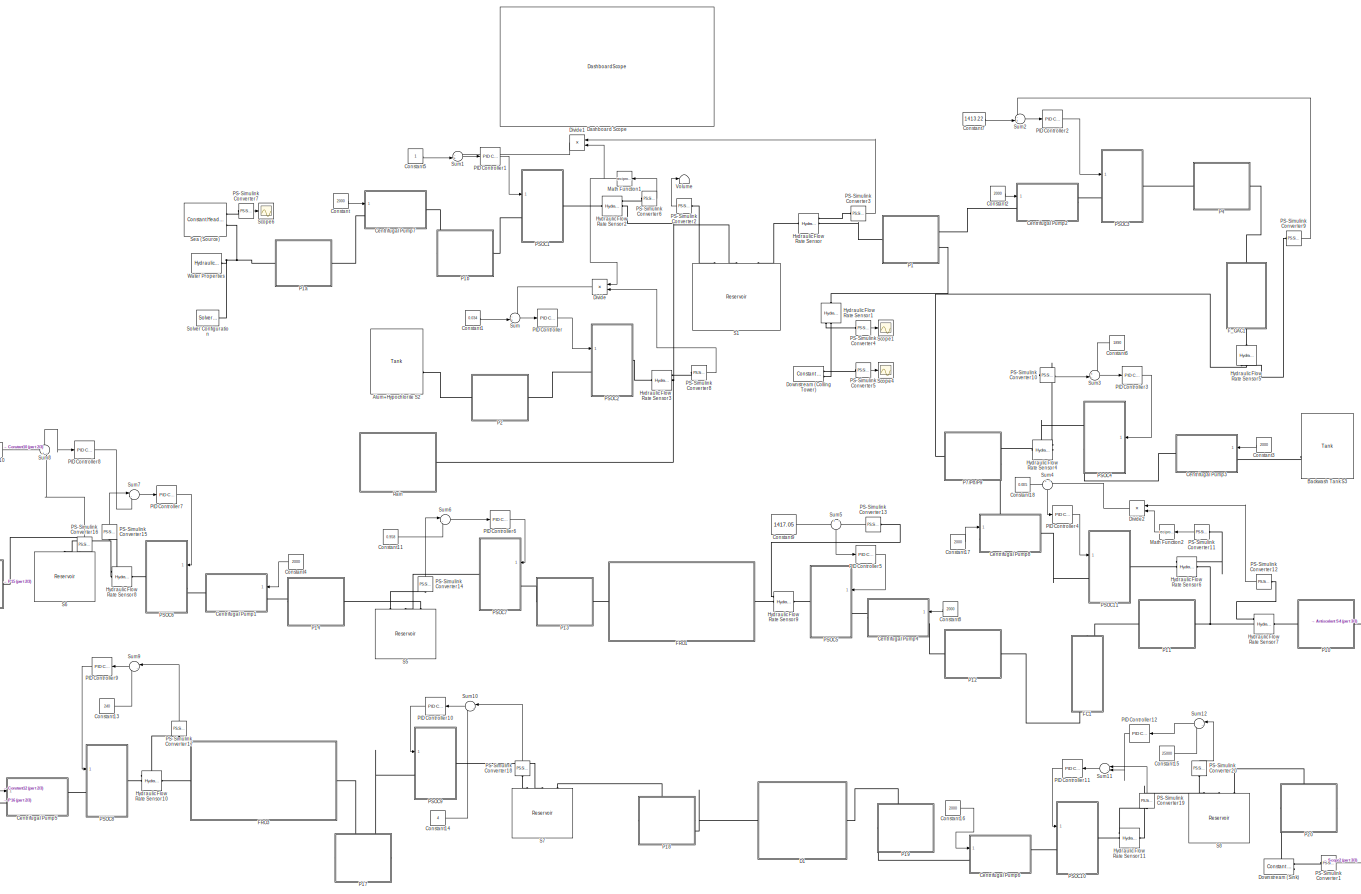
[diagram: root canvas - part 1/3, most of the canvas]
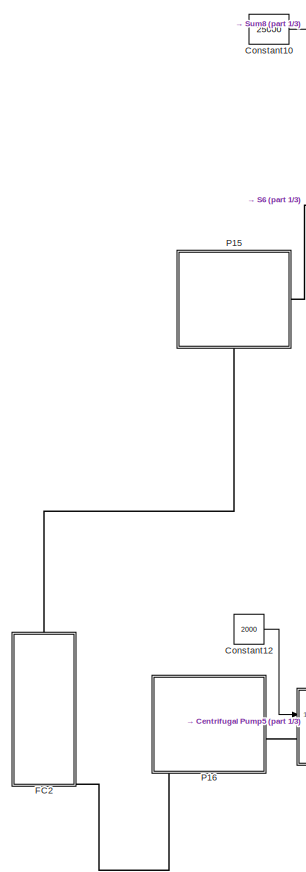
[diagram: root canvas - part 2/3, bottom left region]
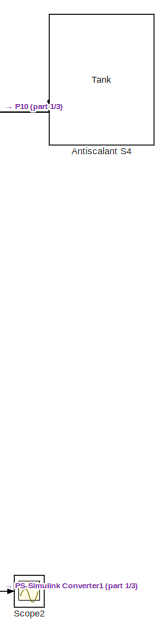
[diagram: root canvas - part 3/3, bottom right region]
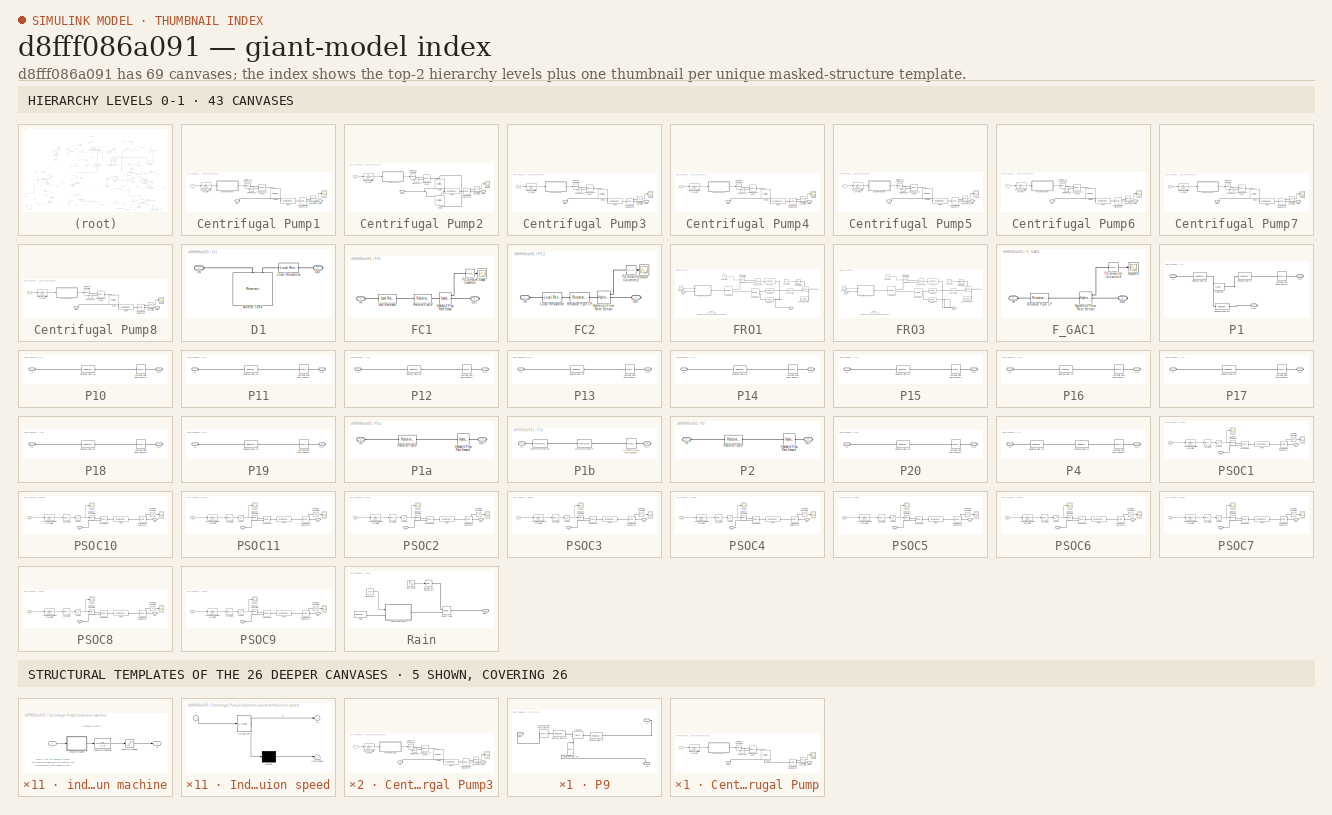
[diagram: thumbnail index - top-2 hierarchy levels (43 canvases) + 5 structural-template representatives of the remaining 26 canvases]
MODEL slx_d8fff086a091
KIND model
CONFIG AbsTol = auto
CONFIG EnableMultiTasking = off
CONFIG FixedStep = auto
CONFIG MaxStep = auto
CONFIG MinStep = auto
CONFIG RelTol = 1e-3
CONFIG SampleTimeConstraint = Unconstrained
CONFIG Solver = VariableStepAuto
CONFIG SolverName = VariableStepAuto
CONFIG StartTime = 0.0
CONFIG StopTime = 100
BLOCK [Reference] Alum+Hypochlorite S2  REF=sh_lib/Low-Pressure Blocks/Tank
  Ports = [0, 0, 0, 0, 0, 0, 2]
  SourceBlock = sh_lib/Low-Pressure Blocks/Tank
  SourceProductBaseCode = SH
  SourceType = Tank
BLOCK [Reference] Antiscalant S4  REF=sh_lib/Low-Pressure Blocks/Tank
  Ports = [0, 0, 0, 0, 0, 0, 2]
  SourceBlock = sh_lib/Low-Pressure Blocks/Tank
  SourceProductBaseCode = SH
  SourceType = Tank
BLOCK [Reference] Backwash Tank S3  REF=sh_lib/Low-Pressure Blocks/Tank
  Ports = [0, 0, 0, 0, 0, 0, 2]
  SourceBlock = sh_lib/Low-Pressure Blocks/Tank
  SourceProductBaseCode = SH
  SourceType = Tank
BLOCK [SubSystem] Centrifugal Pump1
  Ports = [1, 0, 0, 0, 0, 1, 1]
  RequestExecContextInheritance = off
BLOCK [TransferFcn] Centrifugal Pump1/Drive and Amplifier Dynamics
  Denominator = [0.1 1]
BLOCK [Reference] Centrifugal Pump1/Hydraulic Flow Rate Sensor  REF=fl_lib/Hydraulic/Hydraulic Sensors/Hydraulic Flow Rate
Sensor
  Ports = [0, 0, 0, 0, 0, 1, 3]
  SourceBlock = fl_lib/Hydraulic/Hydraulic Sensors/Hydraulic Flow Rate\nSensor
  SourceProductBaseCode = SS
  SourceType = Hydraulic Flow Rate\nSensor
BLOCK [Reference] Centrifugal Pump1/MRRef Pump 1  REF=fl_lib/Mechanical/Rotational Elements/Mechanical
Rotational Reference
  Ports = [0, 0, 0, 0, 0, 1]
  SourceBlock = fl_lib/Mechanical/Rotational Elements/Mechanical\nRotational Reference
  SourceProductBaseCode = SS
  SourceType = Mechanical\nRotational Reference
BLOCK [Reference] Centrifugal Pump1/PS-Simulink Converter2  REF=nesl_utility/PS-Simulink
Converter
  Ports = [0, 1, 0, 0, 0, 1]
  SourceBlock = nesl_utility/PS-Simulink\nConverter
  SourceProductBaseCode = SS
  SourceType = PS-Simulink\nConverter
BLOCK [Reference] Centrifugal Pump1/Pipe P  REF=sh_lib/Low-Pressure Blocks/Resistive Pipe LP
  Ports = [0, 0, 0, 0, 0, 1, 1]
  SourceBlock = sh_lib/Low-Pressure Blocks/Resistive Pipe LP
  SourceProductBaseCode = SH
  SourceType = Resistive Pipe LP
BLOCK [Reference] Centrifugal Pump1/Pump 1  REF=sh_lib/Pumps and Motors/Centrifugal Pump
  NameLocation = right
  Ports = [0, 0, 0, 0, 0, 1, 2]
  SourceBlock = sh_lib/Pumps and Motors/Centrifugal Pump
  SourceProductBaseCode = SH
  SourceType = Centrifugal Pump
BLOCK [Scope] Centrifugal Pump1/Scope
  Floating = off
  NumInputPorts = 1
  Ports = [1]
  ScopeSpecificationString = Simulink.scopes.TimeScopeBlockCfg('CurrentConfiguration', extmgr.ConfigurationSet(extmgr.Configuration('Core','General UI',true),extmgr.Configuration('Core','Source UI',true),extmgr.Configuration('Sources','WiredSimulink',true),extmgr.Configuration('Visuals','Time Domain',true,'SerializedDisplays',{struct('MinYLimReal','-0.00197','MaxYLimReal','0.0177','YLabelReal','','MinYLimMag','0.00000','MaxYL...<+1363ch>  <repeated x7 — deduplicated; at blocks: Scope>
BLOCK [Reference] Centrifugal Pump1/Simulink-PS Converter1  REF=nesl_utility/Simulink-PS
Converter
  Ports = [1, 0, 0, 0, 0, 0, 1]
  SourceBlock = nesl_utility/Simulink-PS\nConverter
  SourceProductBaseCode = SS
  SourceType = Simulink-PS\nConverter
BLOCK [Reference] Centrifugal Pump1/Velocity Source Pump 1  REF=fl_lib/Mechanical/Mechanical Sources/Ideal Angular
Velocity Source
  Ports = [0, 0, 0, 0, 0, 1, 2]
  SourceBlock = fl_lib/Mechanical/Mechanical Sources/Ideal Angular\nVelocity Source
  SourceProductBaseCode = SS
  SourceType = Ideal Angular\nVelocity Source
BLOCK [Inport] Centrifugal Pump1/f
BLOCK [SubSystem] Centrifugal Pump1/induction machine
  Ports = [1, 1]
  RequestExecContextInheritance = off
BLOCK [TransferFcn] Centrifugal Pump1/induction machine/Induction Machine
  Denominator = [1 1]
BLOCK [SubSystem] Centrifugal Pump1/induction machine/Induction speed
  ErrorFcn = Stateflow.Translate.translate
  PermitHierarchicalResolution = ExplicitOnly
  Ports = [1, 1]
  RequestExecContextInheritance = off
  SFBlockType = MATLAB Function
  TreatAsAtomicUnit = on
BLOCK [Demux] Centrifugal Pump1/induction machine/Induction speed/ Demux 
  Outputs = 1
  Ports = [1, 1]
BLOCK [S-Function] Centrifugal Pump1/induction machine/Induction speed/ SFunction 
  EnableBusSupport = on
  FunctionName = sf_sfun
  PortCounts = [1 2]
  Ports = [1, 2]
  SFcnIsStateOwnerBlock = off
  SFunctionDeploymentMode = off
  Tag = Stateflow S-Function 1
BLOCK [Terminator] Centrifugal Pump1/induction machine/Induction speed/ Terminator 
BLOCK [Inport] Centrifugal Pump1/induction machine/Induction speed/f
BLOCK [Outport] Centrifugal Pump1/induction machine/Induction speed/w
BLOCK [Inport] Centrifugal Pump1/induction machine/f
BLOCK [Saturate] Centrifugal Pump1/induction machine/max//min speeds
  LowerLimit = 0
  UpperLimit = 100
BLOCK [Outport] Centrifugal Pump1/induction machine/w
BLOCK [PMIOPort] Centrifugal Pump1/inletT
  Side = Left
BLOCK [PMIOPort] Centrifugal Pump1/outletT
  Port = 2
  Side = Right
BLOCK [SubSystem] Centrifugal Pump2
  Ports = [1, 0, 0, 0, 0, 1, 1]
  RequestExecContextInheritance = off
BLOCK [TransferFcn] Centrifugal Pump2/Drive and Amplifier Dynamics
  Denominator = [0.1 1]
BLOCK [Reference] Centrifugal Pump2/Hydraulic Flow Rate Sensor  REF=fl_lib/Hydraulic/Hydraulic Sensors/Hydraulic Flow Rate
Sensor
  Ports = [0, 0, 0, 0, 0, 1, 3]
  SourceBlock = fl_lib/Hydraulic/Hydraulic Sensors/Hydraulic Flow Rate\nSensor
  SourceProductBaseCode = SS
  SourceType = Hydraulic Flow Rate\nSensor
BLOCK [Reference] Centrifugal Pump2/MRRef Pump 1  REF=fl_lib/Mechanical/Rotational Elements/Mechanical
Rotational Reference
  Ports = [0, 0, 0, 0, 0, 1]
  SourceBlock = fl_lib/Mechanical/Rotational Elements/Mechanical\nRotational Reference
  SourceProductBaseCode = SS
  SourceType = Mechanical\nRotational Reference
BLOCK [Reference] Centrifugal Pump2/PS-Simulink Converter2  REF=nesl_utility/PS-Simulink
Converter
  Ports = [0, 1, 0, 0, 0, 1]
  SourceBlock = nesl_utility/PS-Simulink\nConverter
  SourceProductBaseCode = SS
  SourceType = PS-Simulink\nConverter
BLOCK [Reference] Centrifugal Pump2/Pipe P  REF=sh_lib/Low-Pressure Blocks/Resistive Pipe LP
  Ports = [0, 0, 0, 0, 0, 1, 1]
  SourceBlock = sh_lib/Low-Pressure Blocks/Resistive Pipe LP
  SourceProductBaseCode = SH
  SourceType = Resistive Pipe LP
BLOCK [Reference] Centrifugal Pump2/Pump 1  REF=sh_lib/Pumps and Motors/Centrifugal Pump
  NameLocation = right
  Ports = [0, 0, 0, 0, 0, 1, 2]
  SourceBlock = sh_lib/Pumps and Motors/Centrifugal Pump
  SourceProductBaseCode = SH
  SourceType = Centrifugal Pump
BLOCK [Reference] Centrifugal Pump2/Pump 2  REF=sh_lib/Pumps and Motors/Centrifugal Pump
  NameLocation = left
  Ports = [0, 0, 0, 0, 0, 1, 2]
  SourceBlock = sh_lib/Pumps and Motors/Centrifugal Pump
  SourceProductBaseCode = SH
  SourceType = Centrifugal Pump
BLOCK [Scope] Centrifugal Pump2/Scope
  Floating = off
  NumInputPorts = 1
  Ports = [1]
  ScopeSpecificationString = Simulink.scopes.TimeScopeBlockCfg('CurrentConfiguration', extmgr.ConfigurationSet(extmgr.Configuration('Core','General UI',true),extmgr.Configuration('Core','Source UI',true),extmgr.Configuration('Sources','WiredSimulink',true),extmgr.Configuration('Visuals','Time Domain',true,'SerializedDisplays',{struct('MinYLimReal','-0.0000000007','MaxYLimReal','0.000000006','YLabelReal','','MinYLimMag','0.000...<+1403ch>
BLOCK [Reference] Centrifugal Pump2/Simulink-PS Converter1  REF=nesl_utility/Simulink-PS
Converter
  Ports = [1, 0, 0, 0, 0, 0, 1]
  SourceBlock = nesl_utility/Simulink-PS\nConverter
  SourceProductBaseCode = SS
  SourceType = Simulink-PS\nConverter
BLOCK [Reference] Centrifugal Pump2/Velocity Source Pump 1  REF=fl_lib/Mechanical/Mechanical Sources/Ideal Angular
Velocity Source
  Ports = [0, 0, 0, 0, 0, 1, 2]
  SourceBlock = fl_lib/Mechanical/Mechanical Sources/Ideal Angular\nVelocity Source
  SourceProductBaseCode = SS
  SourceType = Ideal Angular\nVelocity Source
BLOCK [Inport] Centrifugal Pump2/f
BLOCK [SubSystem] Centrifugal Pump2/induction machine
  Ports = [1, 1]
  RequestExecContextInheritance = off
BLOCK [TransferFcn] Centrifugal Pump2/induction machine/Induction Machine
  Denominator = [1 1]
BLOCK [SubSystem] Centrifugal Pump2/induction machine/Induction speed
  ErrorFcn = Stateflow.Translate.translate
  PermitHierarchicalResolution = ExplicitOnly
  Ports = [1, 1]
  RequestExecContextInheritance = off
  SFBlockType = MATLAB Function
  TreatAsAtomicUnit = on
BLOCK [Demux] Centrifugal Pump2/induction machine/Induction speed/ Demux 
  Outputs = 1
  Ports = [1, 1]
BLOCK [S-Function] Centrifugal Pump2/induction machine/Induction speed/ SFunction 
  EnableBusSupport = on
  FunctionName = sf_sfun
  PortCounts = [1 2]
  Ports = [1, 2]
  SFcnIsStateOwnerBlock = off
  SFunctionDeploymentMode = off
  Tag = Stateflow S-Function 5
BLOCK [Terminator] Centrifugal Pump2/induction machine/Induction speed/ Terminator 
BLOCK [Inport] Centrifugal Pump2/induction machine/Induction speed/f
BLOCK [Outport] Centrifugal Pump2/induction machine/Induction speed/w
BLOCK [Inport] Centrifugal Pump2/induction machine/f
BLOCK [Saturate] Centrifugal Pump2/induction machine/max//min speeds
  LowerLimit = 0
  UpperLimit = 10000
BLOCK [Outport] Centrifugal Pump2/induction machine/w
BLOCK [PMIOPort] Centrifugal Pump2/inletT
  Side = Left
BLOCK [PMIOPort] Centrifugal Pump2/outletT
  Port = 2
  Side = Right
BLOCK [SubSystem] Centrifugal Pump3
  Ports = [1, 0, 0, 0, 0, 1, 1]
  RequestExecContextInheritance = off
BLOCK [TransferFcn] Centrifugal Pump3/Drive and Amplifier Dynamics
  Denominator = [0.1 1]
BLOCK [Reference] Centrifugal Pump3/Hydraulic Flow Rate Sensor  REF=fl_lib/Hydraulic/Hydraulic Sensors/Hydraulic Flow Rate
Sensor
  Ports = [0, 0, 0, 0, 0, 1, 3]
  SourceBlock = fl_lib/Hydraulic/Hydraulic Sensors/Hydraulic Flow Rate\nSensor
  SourceProductBaseCode = SS
  SourceType = Hydraulic Flow Rate\nSensor
BLOCK [Reference] Centrifugal Pump3/MRRef Pump 1  REF=fl_lib/Mechanical/Rotational Elements/Mechanical
Rotational Reference
  Ports = [0, 0, 0, 0, 0, 1]
  SourceBlock = fl_lib/Mechanical/Rotational Elements/Mechanical\nRotational Reference
  SourceProductBaseCode = SS
  SourceType = Mechanical\nRotational Reference
BLOCK [Reference] Centrifugal Pump3/PS-Simulink Converter2  REF=nesl_utility/PS-Simulink
Converter
  Ports = [0, 1, 0, 0, 0, 1]
  SourceBlock = nesl_utility/PS-Simulink\nConverter
  SourceProductBaseCode = SS
  SourceType = PS-Simulink\nConverter
BLOCK [Reference] Centrifugal Pump3/Pipe P  REF=sh_lib/Low-Pressure Blocks/Resistive Pipe LP
  Ports = [0, 0, 0, 0, 0, 1, 1]
  SourceBlock = sh_lib/Low-Pressure Blocks/Resistive Pipe LP
  SourceProductBaseCode = SH
  SourceType = Resistive Pipe LP
BLOCK [Reference] Centrifugal Pump3/Pump 1  REF=sh_lib/Pumps and Motors/Centrifugal Pump
  NameLocation = right
  Ports = [0, 0, 0, 0, 0, 1, 2]
  SourceBlock = sh_lib/Pumps and Motors/Centrifugal Pump
  SourceProductBaseCode = SH
  SourceType = Centrifugal Pump
BLOCK [Scope] Centrifugal Pump3/Scope
  Floating = off
  NumInputPorts = 1
  Ports = [1]
BLOCK [Reference] Centrifugal Pump3/Simulink-PS Converter1  REF=nesl_utility/Simulink-PS
Converter
  Ports = [1, 0, 0, 0, 0, 0, 1]
  SourceBlock = nesl_utility/Simulink-PS\nConverter
  SourceProductBaseCode = SS
  SourceType = Simulink-PS\nConverter
BLOCK [Reference] Centrifugal Pump3/Velocity Source Pump 1  REF=fl_lib/Mechanical/Mechanical Sources/Ideal Angular
Velocity Source
  Ports = [0, 0, 0, 0, 0, 1, 2]
  SourceBlock = fl_lib/Mechanical/Mechanical Sources/Ideal Angular\nVelocity Source
  SourceProductBaseCode = SS
  SourceType = Ideal Angular\nVelocity Source
BLOCK [Inport] Centrifugal Pump3/f
BLOCK [SubSystem] Centrifugal Pump3/induction machine
  Ports = [1, 1]
  RequestExecContextInheritance = off
BLOCK [TransferFcn] Centrifugal Pump3/induction machine/Induction Machine
  Denominator = [1 1]
BLOCK [SubSystem] Centrifugal Pump3/induction machine/Induction speed
  ErrorFcn = Stateflow.Translate.translate
  PermitHierarchicalResolution = ExplicitOnly
  Ports = [1, 1]
  RequestExecContextInheritance = off
  SFBlockType = MATLAB Function
  TreatAsAtomicUnit = on
BLOCK [Demux] Centrifugal Pump3/induction machine/Induction speed/ Demux 
  Outputs = 1
  Ports = [1, 1]
BLOCK [S-Function] Centrifugal Pump3/induction machine/Induction speed/ SFunction 
  EnableBusSupport = on
  FunctionName = sf_sfun
  PortCounts = [1 2]
  Ports = [1, 2]
  SFcnIsStateOwnerBlock = off
  SFunctionDeploymentMode = off
  Tag = Stateflow S-Function 6
BLOCK [Terminator] Centrifugal Pump3/induction machine/Induction speed/ Terminator 
BLOCK [Inport] Centrifugal Pump3/induction machine/Induction speed/f
BLOCK [Outport] Centrifugal Pump3/induction machine/Induction speed/w
BLOCK [Inport] Centrifugal Pump3/induction machine/f
BLOCK [Saturate] Centrifugal Pump3/induction machine/max//min speeds
  LowerLimit = 0
  UpperLimit = 10000
BLOCK [Outport] Centrifugal Pump3/induction machine/w
BLOCK [PMIOPort] Centrifugal Pump3/inletT
  Side = Left
BLOCK [PMIOPort] Centrifugal Pump3/outletT
  Port = 2
  Side = Right
BLOCK [SubSystem] Centrifugal Pump4
  Ports = [1, 0, 0, 0, 0, 1, 1]
  RequestExecContextInheritance = off
BLOCK [TransferFcn] Centrifugal Pump4/Drive and Amplifier Dynamics
  Denominator = [0.1 1]
BLOCK [Reference] Centrifugal Pump4/Hydraulic Flow Rate Sensor  REF=fl_lib/Hydraulic/Hydraulic Sensors/Hydraulic Flow Rate
Sensor
  Ports = [0, 0, 0, 0, 0, 1, 3]
  SourceBlock = fl_lib/Hydraulic/Hydraulic Sensors/Hydraulic Flow Rate\nSensor
  SourceProductBaseCode = SS
  SourceType = Hydraulic Flow Rate\nSensor
BLOCK [Reference] Centrifugal Pump4/MRRef Pump 1  REF=fl_lib/Mechanical/Rotational Elements/Mechanical
Rotational Reference
  Ports = [0, 0, 0, 0, 0, 1]
  SourceBlock = fl_lib/Mechanical/Rotational Elements/Mechanical\nRotational Reference
  SourceProductBaseCode = SS
  SourceType = Mechanical\nRotational Reference
BLOCK [Reference] Centrifugal Pump4/PS-Simulink Converter2  REF=nesl_utility/PS-Simulink
Converter
  Ports = [0, 1, 0, 0, 0, 1]
  SourceBlock = nesl_utility/PS-Simulink\nConverter
  SourceProductBaseCode = SS
  SourceType = PS-Simulink\nConverter
BLOCK [Reference] Centrifugal Pump4/Pipe P  REF=sh_lib/Low-Pressure Blocks/Resistive Pipe LP
  Ports = [0, 0, 0, 0, 0, 1, 1]
  SourceBlock = sh_lib/Low-Pressure Blocks/Resistive Pipe LP
  SourceProductBaseCode = SH
  SourceType = Resistive Pipe LP
BLOCK [Reference] Centrifugal Pump4/Pump 1  REF=sh_lib/Pumps and Motors/Centrifugal Pump
  NameLocation = right
  Ports = [0, 0, 0, 0, 0, 1, 2]
  SourceBlock = sh_lib/Pumps and Motors/Centrifugal Pump
  SourceProductBaseCode = SH
  SourceType = Centrifugal Pump
BLOCK [Scope] Centrifugal Pump4/Scope
  Floating = off
  NumInputPorts = 1
  Ports = [1]
BLOCK [Reference] Centrifugal Pump4/Simulink-PS Converter1  REF=nesl_utility/Simulink-PS
Converter
  Ports = [1, 0, 0, 0, 0, 0, 1]
  SourceBlock = nesl_utility/Simulink-PS\nConverter
  SourceProductBaseCode = SS
  SourceType = Simulink-PS\nConverter
BLOCK [Reference] Centrifugal Pump4/Velocity Source Pump 1  REF=fl_lib/Mechanical/Mechanical Sources/Ideal Angular
Velocity Source
  Ports = [0, 0, 0, 0, 0, 1, 2]
  SourceBlock = fl_lib/Mechanical/Mechanical Sources/Ideal Angular\nVelocity Source
  SourceProductBaseCode = SS
  SourceType = Ideal Angular\nVelocity Source
BLOCK [Inport] Centrifugal Pump4/f
BLOCK [SubSystem] Centrifugal Pump4/induction machine
  Ports = [1, 1]
  RequestExecContextInheritance = off
BLOCK [TransferFcn] Centrifugal Pump4/induction machine/Induction Machine
  Denominator = [1 1]
BLOCK [SubSystem] Centrifugal Pump4/induction machine/Induction speed
  ErrorFcn = Stateflow.Translate.translate
  PermitHierarchicalResolution = ExplicitOnly
  Ports = [1, 1]
  RequestExecContextInheritance = off
  SFBlockType = MATLAB Function
  TreatAsAtomicUnit = on
BLOCK [Demux] Centrifugal Pump4/induction machine/Induction speed/ Demux 
  Outputs = 1
  Ports = [1, 1]
BLOCK [S-Function] Centrifugal Pump4/induction machine/Induction speed/ SFunction 
  EnableBusSupport = on
  FunctionName = sf_sfun
  PortCounts = [1 2]
  Ports = [1, 2]
  SFcnIsStateOwnerBlock = off
  SFunctionDeploymentMode = off
  Tag = Stateflow S-Function 7
BLOCK [Terminator] Centrifugal Pump4/induction machine/Induction speed/ Terminator 
BLOCK [Inport] Centrifugal Pump4/induction machine/Induction speed/f
BLOCK [Outport] Centrifugal Pump4/induction machine/Induction speed/w
BLOCK [Inport] Centrifugal Pump4/induction machine/f
BLOCK [Saturate] Centrifugal Pump4/induction machine/max//min speeds
  LowerLimit = 0
  UpperLimit = 10000
BLOCK [Outport] Centrifugal Pump4/induction machine/w
BLOCK [PMIOPort] Centrifugal Pump4/inletT
  Side = Left
BLOCK [PMIOPort] Centrifugal Pump4/outletT
  Port = 2
  Side = Right
BLOCK [SubSystem] Centrifugal Pump5
  Ports = [1, 0, 0, 0, 0, 1, 1]
  RequestExecContextInheritance = off
BLOCK [TransferFcn] Centrifugal Pump5/Drive and Amplifier Dynamics
  Denominator = [0.1 1]
BLOCK [Reference] Centrifugal Pump5/Hydraulic Flow Rate Sensor  REF=fl_lib/Hydraulic/Hydraulic Sensors/Hydraulic Flow Rate
Sensor
  Ports = [0, 0, 0, 0, 0, 1, 3]
  SourceBlock = fl_lib/Hydraulic/Hydraulic Sensors/Hydraulic Flow Rate\nSensor
  SourceProductBaseCode = SS
  SourceType = Hydraulic Flow Rate\nSensor
BLOCK [Reference] Centrifugal Pump5/MRRef Pump 1  REF=fl_lib/Mechanical/Rotational Elements/Mechanical
Rotational Reference
  Ports = [0, 0, 0, 0, 0, 1]
  SourceBlock = fl_lib/Mechanical/Rotational Elements/Mechanical\nRotational Reference
  SourceProductBaseCode = SS
  SourceType = Mechanical\nRotational Reference
BLOCK [Reference] Centrifugal Pump5/PS-Simulink Converter2  REF=nesl_utility/PS-Simulink
Converter
  Ports = [0, 1, 0, 0, 0, 1]
  SourceBlock = nesl_utility/PS-Simulink\nConverter
  SourceProductBaseCode = SS
  SourceType = PS-Simulink\nConverter
BLOCK [Reference] Centrifugal Pump5/Pipe P  REF=sh_lib/Low-Pressure Blocks/Resistive Pipe LP
  Ports = [0, 0, 0, 0, 0, 1, 1]
  SourceBlock = sh_lib/Low-Pressure Blocks/Resistive Pipe LP
  SourceProductBaseCode = SH
  SourceType = Resistive Pipe LP
BLOCK [Reference] Centrifugal Pump5/Pump 1  REF=sh_lib/Pumps and Motors/Centrifugal Pump
  NameLocation = right
  Ports = [0, 0, 0, 0, 0, 1, 2]
  SourceBlock = sh_lib/Pumps and Motors/Centrifugal Pump
  SourceProductBaseCode = SH
  SourceType = Centrifugal Pump
BLOCK [Scope] Centrifugal Pump5/Scope
  Floating = off
  NumInputPorts = 1
  Ports = [1]
BLOCK [Reference] Centrifugal Pump5/Simulink-PS Converter1  REF=nesl_utility/Simulink-PS
Converter
  Ports = [1, 0, 0, 0, 0, 0, 1]
  SourceBlock = nesl_utility/Simulink-PS\nConverter
  SourceProductBaseCode = SS
  SourceType = Simulink-PS\nConverter
BLOCK [Reference] Centrifugal Pump5/Velocity Source Pump 1  REF=fl_lib/Mechanical/Mechanical Sources/Ideal Angular
Velocity Source
  Ports = [0, 0, 0, 0, 0, 1, 2]
  SourceBlock = fl_lib/Mechanical/Mechanical Sources/Ideal Angular\nVelocity Source
  SourceProductBaseCode = SS
  SourceType = Ideal Angular\nVelocity Source
BLOCK [Inport] Centrifugal Pump5/f
BLOCK [SubSystem] Centrifugal Pump5/induction machine
  Ports = [1, 1]
  RequestExecContextInheritance = off
BLOCK [TransferFcn] Centrifugal Pump5/induction machine/Induction Machine
  Denominator = [1 1]
BLOCK [SubSystem] Centrifugal Pump5/induction machine/Induction speed
  ErrorFcn = Stateflow.Translate.translate
  PermitHierarchicalResolution = ExplicitOnly
  Ports = [1, 1]
  RequestExecContextInheritance = off
  SFBlockType = MATLAB Function
  TreatAsAtomicUnit = on
BLOCK [Demux] Centrifugal Pump5/induction machine/Induction speed/ Demux 
  Outputs = 1
  Ports = [1, 1]
BLOCK [S-Function] Centrifugal Pump5/induction machine/Induction speed/ SFunction 
  EnableBusSupport = on
  FunctionName = sf_sfun
  PortCounts = [1 2]
  Ports = [1, 2]
  SFcnIsStateOwnerBlock = off
  SFunctionDeploymentMode = off
  Tag = Stateflow S-Function 8
BLOCK [Terminator] Centrifugal Pump5/induction machine/Induction speed/ Terminator 
BLOCK [Inport] Centrifugal Pump5/induction machine/Induction speed/f
BLOCK [Outport] Centrifugal Pump5/induction machine/Induction speed/w
BLOCK [Inport] Centrifugal Pump5/induction machine/f
BLOCK [Saturate] Centrifugal Pump5/induction machine/max//min speeds
  LowerLimit = 0
  UpperLimit = 100
BLOCK [Outport] Centrifugal Pump5/induction machine/w
BLOCK [PMIOPort] Centrifugal Pump5/inletT
  Side = Left
BLOCK [PMIOPort] Centrifugal Pump5/outletT
  Port = 2
  Side = Right
BLOCK [SubSystem] Centrifugal Pump6
  Ports = [1, 0, 0, 0, 0, 1, 1]
  RequestExecContextInheritance = off
BLOCK [TransferFcn] Centrifugal Pump6/Drive and Amplifier Dynamics
  Denominator = [0.1 1]
BLOCK [Reference] Centrifugal Pump6/Hydraulic Flow Rate Sensor  REF=fl_lib/Hydraulic/Hydraulic Sensors/Hydraulic Flow Rate
Sensor
  Ports = [0, 0, 0, 0, 0, 1, 3]
  SourceBlock = fl_lib/Hydraulic/Hydraulic Sensors/Hydraulic Flow Rate\nSensor
  SourceProductBaseCode = SS
  SourceType = Hydraulic Flow Rate\nSensor
BLOCK [Reference] Centrifugal Pump6/MRRef Pump 1  REF=fl_lib/Mechanical/Rotational Elements/Mechanical
Rotational Reference
  Ports = [0, 0, 0, 0, 0, 1]
  SourceBlock = fl_lib/Mechanical/Rotational Elements/Mechanical\nRotational Reference
  SourceProductBaseCode = SS
  SourceType = Mechanical\nRotational Reference
BLOCK [Reference] Centrifugal Pump6/PS-Simulink Converter2  REF=nesl_utility/PS-Simulink
Converter
  Ports = [0, 1, 0, 0, 0, 1]
  SourceBlock = nesl_utility/PS-Simulink\nConverter
  SourceProductBaseCode = SS
  SourceType = PS-Simulink\nConverter
BLOCK [Reference] Centrifugal Pump6/Pipe P  REF=sh_lib/Low-Pressure Blocks/Resistive Pipe LP
  Ports = [0, 0, 0, 0, 0, 1, 1]
  SourceBlock = sh_lib/Low-Pressure Blocks/Resistive Pipe LP
  SourceProductBaseCode = SH
  SourceType = Resistive Pipe LP
BLOCK [Reference] Centrifugal Pump6/Pump 1  REF=sh_lib/Pumps and Motors/Centrifugal Pump
  NameLocation = right
  Ports = [0, 0, 0, 0, 0, 1, 2]
  SourceBlock = sh_lib/Pumps and Motors/Centrifugal Pump
  SourceProductBaseCode = SH
  SourceType = Centrifugal Pump
BLOCK [Scope] Centrifugal Pump6/Scope
  Floating = off
  NumInputPorts = 1
  Ports = [1]
BLOCK [Reference] Centrifugal Pump6/Simulink-PS Converter1  REF=nesl_utility/Simulink-PS
Converter
  Ports = [1, 0, 0, 0, 0, 0, 1]
  SourceBlock = nesl_utility/Simulink-PS\nConverter
  SourceProductBaseCode = SS
  SourceType = Simulink-PS\nConverter
BLOCK [Reference] Centrifugal Pump6/Velocity Source Pump 1  REF=fl_lib/Mechanical/Mechanical Sources/Ideal Angular
Velocity Source
  Ports = [0, 0, 0, 0, 0, 1, 2]
  SourceBlock = fl_lib/Mechanical/Mechanical Sources/Ideal Angular\nVelocity Source
  SourceProductBaseCode = SS
  SourceType = Ideal Angular\nVelocity Source
BLOCK [Inport] Centrifugal Pump6/f
BLOCK [SubSystem] Centrifugal Pump6/induction machine
  Ports = [1, 1]
  RequestExecContextInheritance = off
BLOCK [TransferFcn] Centrifugal Pump6/induction machine/Induction Machine
  Denominator = [1 1]
BLOCK [SubSystem] Centrifugal Pump6/induction machine/Induction speed
  ErrorFcn = Stateflow.Translate.translate
  PermitHierarchicalResolution = ExplicitOnly
  Ports = [1, 1]
  RequestExecContextInheritance = off
  SFBlockType = MATLAB Function
  TreatAsAtomicUnit = on
BLOCK [Demux] Centrifugal Pump6/induction machine/Induction speed/ Demux 
  Outputs = 1
  Ports = [1, 1]
BLOCK [S-Function] Centrifugal Pump6/induction machine/Induction speed/ SFunction 
  EnableBusSupport = on
  FunctionName = sf_sfun
  PortCounts = [1 2]
  Ports = [1, 2]
  SFcnIsStateOwnerBlock = off
  SFunctionDeploymentMode = off
  Tag = Stateflow S-Function 9
BLOCK [Terminator] Centrifugal Pump6/induction machine/Induction speed/ Terminator 
BLOCK [Inport] Centrifugal Pump6/induction machine/Induction speed/f
BLOCK [Outport] Centrifugal Pump6/induction machine/Induction speed/w
BLOCK [Inport] Centrifugal Pump6/induction machine/f
BLOCK [Saturate] Centrifugal Pump6/induction machine/max//min speeds
  LowerLimit = 0
  UpperLimit = 100
BLOCK [Outport] Centrifugal Pump6/induction machine/w
BLOCK [PMIOPort] Centrifugal Pump6/inletT
  Side = Left
BLOCK [PMIOPort] Centrifugal Pump6/outletT
  Port = 2
  Side = Right
BLOCK [SubSystem] Centrifugal Pump7
  Ports = [1, 0, 0, 0, 0, 1, 1]
  RequestExecContextInheritance = off
BLOCK [TransferFcn] Centrifugal Pump7/Drive and Amplifier Dynamics
  Denominator = [0.1 1]
BLOCK [Reference] Centrifugal Pump7/Hydraulic Flow Rate Sensor  REF=fl_lib/Hydraulic/Hydraulic Sensors/Hydraulic Flow Rate
Sensor
  Ports = [0, 0, 0, 0, 0, 1, 3]
  SourceBlock = fl_lib/Hydraulic/Hydraulic Sensors/Hydraulic Flow Rate\nSensor
  SourceProductBaseCode = SS
  SourceType = Hydraulic Flow Rate\nSensor
BLOCK [Reference] Centrifugal Pump7/MRRef Pump 1  REF=fl_lib/Mechanical/Rotational Elements/Mechanical
Rotational Reference
  Ports = [0, 0, 0, 0, 0, 1]
  SourceBlock = fl_lib/Mechanical/Rotational Elements/Mechanical\nRotational Reference
  SourceProductBaseCode = SS
  SourceType = Mechanical\nRotational Reference
BLOCK [Reference] Centrifugal Pump7/PS-Simulink Converter2  REF=nesl_utility/PS-Simulink
Converter
  Ports = [0, 1, 0, 0, 0, 1]
  SourceBlock = nesl_utility/PS-Simulink\nConverter
  SourceProductBaseCode = SS
  SourceType = PS-Simulink\nConverter
BLOCK [Reference] Centrifugal Pump7/Pipe P  REF=sh_lib/Low-Pressure Blocks/Resistive Pipe LP
  Ports = [0, 0, 0, 0, 0, 1, 1]
  SourceBlock = sh_lib/Low-Pressure Blocks/Resistive Pipe LP
  SourceProductBaseCode = SH
  SourceType = Resistive Pipe LP
BLOCK [Reference] Centrifugal Pump7/Pump 1  REF=sh_lib/Pumps and Motors/Centrifugal Pump
  NameLocation = right
  Ports = [0, 0, 0, 0, 0, 1, 2]
  SourceBlock = sh_lib/Pumps and Motors/Centrifugal Pump
  SourceProductBaseCode = SH
  SourceType = Centrifugal Pump
BLOCK [Scope] Centrifugal Pump7/Scope
  Floating = off
  NumInputPorts = 1
  Ports = [1]
  ScopeSpecificationString = Simulink.scopes.TimeScopeBlockCfg('CurrentConfiguration', extmgr.ConfigurationSet(extmgr.Configuration('Core','General UI',true),extmgr.Configuration('Core','Source UI',true),extmgr.Configuration('Sources','WiredSimulink',true),extmgr.Configuration('Visuals','Time Domain',true,'SerializedDisplays',{struct('MinYLimReal','-0.02102','MaxYLimReal','0.1892','YLabelReal','','MinYLimMag','0.00000','MaxYL...<+1363ch>
BLOCK [Reference] Centrifugal Pump7/Simulink-PS Converter1  REF=nesl_utility/Simulink-PS
Converter
  Ports = [1, 0, 0, 0, 0, 0, 1]
  SourceBlock = nesl_utility/Simulink-PS\nConverter
  SourceProductBaseCode = SS
  SourceType = Simulink-PS\nConverter
BLOCK [Reference] Centrifugal Pump7/Velocity Source Pump 1  REF=fl_lib/Mechanical/Mechanical Sources/Ideal Angular
Velocity Source
  Ports = [0, 0, 0, 0, 0, 1, 2]
  SourceBlock = fl_lib/Mechanical/Mechanical Sources/Ideal Angular\nVelocity Source
  SourceProductBaseCode = SS
  SourceType = Ideal Angular\nVelocity Source
BLOCK [Inport] Centrifugal Pump7/f
BLOCK [SubSystem] Centrifugal Pump7/induction machine
  Ports = [1, 1]
  RequestExecContextInheritance = off
BLOCK [TransferFcn] Centrifugal Pump7/induction machine/Induction Machine
  Denominator = [1 1]
BLOCK [SubSystem] Centrifugal Pump7/induction machine/Induction speed
  ErrorFcn = Stateflow.Translate.translate
  PermitHierarchicalResolution = ExplicitOnly
  Ports = [1, 1]
  RequestExecContextInheritance = off
  SFBlockType = MATLAB Function
  TreatAsAtomicUnit = on
BLOCK [Demux] Centrifugal Pump7/induction machine/Induction speed/ Demux 
  Outputs = 1
  Ports = [1, 1]
BLOCK [S-Function] Centrifugal Pump7/induction machine/Induction speed/ SFunction 
  EnableBusSupport = on
  FunctionName = sf_sfun
  PortCounts = [1 2]
  Ports = [1, 2]
  SFcnIsStateOwnerBlock = off
  SFunctionDeploymentMode = off
  Tag = Stateflow S-Function 10
BLOCK [Terminator] Centrifugal Pump7/induction machine/Induction speed/ Terminator 
BLOCK [Inport] Centrifugal Pump7/induction machine/Induction speed/f
BLOCK [Outport] Centrifugal Pump7/induction machine/Induction speed/w
BLOCK [Inport] Centrifugal Pump7/induction machine/f
BLOCK [Saturate] Centrifugal Pump7/induction machine/max//min speeds
  LowerLimit = 0
  UpperLimit = 10000
BLOCK [Outport] Centrifugal Pump7/induction machine/w
BLOCK [PMIOPort] Centrifugal Pump7/inletT
  Side = Left
BLOCK [PMIOPort] Centrifugal Pump7/outletT
  Port = 2
  Side = Right
BLOCK [SubSystem] Centrifugal Pump8
  PortSchema = {"entries":[{"content":{"sides":[{"content":{"connectorIds":["LConn1","In1"]},"type":"ConnectorPlacement.EquallySpacedRectSide","uuid":"eab26e76-19e5-4131-be01-7f1e86a3578c"},{"content":{"connectorIds":["RConn1"],"side":"RIGHT"},"type":"ConnectorPlacement.EquallySpacedRectSide","uuid":"eb3e9ef5-afdc-4988-b145-41f6f9d64aea"},{"content":{"connectorIds":[],"side":"TOP"},"type":"ConnectorPlacement.Equ...<+253ch>
  Ports = [1, 0, 0, 0, 0, 1, 1]
  RequestExecContextInheritance = off
BLOCK [TransferFcn] Centrifugal Pump8/Drive and Amplifier Dynamics
  Denominator = [0.1 1]
BLOCK [Reference] Centrifugal Pump8/Hydraulic Flow Rate Sensor  REF=fl_lib/Hydraulic/Hydraulic Sensors/Hydraulic Flow Rate
Sensor
  Ports = [0, 0, 0, 0, 0, 1, 3]
  SourceBlock = fl_lib/Hydraulic/Hydraulic Sensors/Hydraulic Flow Rate\nSensor
  SourceProductBaseCode = SS
  SourceType = Hydraulic Flow Rate\nSensor
BLOCK [Reference] Centrifugal Pump8/MRRef Pump 1  REF=fl_lib/Mechanical/Rotational Elements/Mechanical
Rotational Reference
  Ports = [0, 0, 0, 0, 0, 1]
  SourceBlock = fl_lib/Mechanical/Rotational Elements/Mechanical\nRotational Reference
  SourceProductBaseCode = SS
  SourceType = Mechanical\nRotational Reference
BLOCK [Reference] Centrifugal Pump8/PS-Simulink Converter2  REF=nesl_utility/PS-Simulink
Converter
  Ports = [0, 1, 0, 0, 0, 1]
  SourceBlock = nesl_utility/PS-Simulink\nConverter
  SourceProductBaseCode = SS
  SourceType = PS-Simulink\nConverter
BLOCK [Reference] Centrifugal Pump8/Pipe P  REF=sh_lib/Low-Pressure Blocks/Resistive Pipe LP
  Ports = [0, 0, 0, 0, 0, 1, 1]
  SourceBlock = sh_lib/Low-Pressure Blocks/Resistive Pipe LP
  SourceProductBaseCode = SH
  SourceType = Resistive Pipe LP
BLOCK [Reference] Centrifugal Pump8/Pump 1  REF=sh_lib/Pumps and Motors/Centrifugal Pump
  NameLocation = right
  Ports = [0, 0, 0, 0, 0, 1, 2]
  SourceBlock = sh_lib/Pumps and Motors/Centrifugal Pump
  SourceProductBaseCode = SH
  SourceType = Centrifugal Pump
BLOCK [Scope] Centrifugal Pump8/Scope
  Floating = off
  NumInputPorts = 1
  Ports = [1]
BLOCK [Reference] Centrifugal Pump8/Simulink-PS Converter1  REF=nesl_utility/Simulink-PS
Converter
  Ports = [1, 0, 0, 0, 0, 0, 1]
  SourceBlock = nesl_utility/Simulink-PS\nConverter
  SourceProductBaseCode = SS
  SourceType = Simulink-PS\nConverter
BLOCK [Reference] Centrifugal Pump8/Velocity Source Pump 1  REF=fl_lib/Mechanical/Mechanical Sources/Ideal Angular
Velocity Source
  Ports = [0, 0, 0, 0, 0, 1, 2]
  SourceBlock = fl_lib/Mechanical/Mechanical Sources/Ideal Angular\nVelocity Source
  SourceProductBaseCode = SS
  SourceType = Ideal Angular\nVelocity Source
BLOCK [Inport] Centrifugal Pump8/f
BLOCK [SubSystem] Centrifugal Pump8/induction machine
  Ports = [1, 1]
  RequestExecContextInheritance = off
BLOCK [TransferFcn] Centrifugal Pump8/induction machine/Induction Machine
  Denominator = [1 1]
BLOCK [SubSystem] Centrifugal Pump8/induction machine/Induction speed
  ErrorFcn = Stateflow.Translate.translate
  PermitHierarchicalResolution = ExplicitOnly
  Ports = [1, 1]
  RequestExecContextInheritance = off
  SFBlockType = MATLAB Function
  TreatAsAtomicUnit = on
BLOCK [Demux] Centrifugal Pump8/induction machine/Induction speed/ Demux 
  Outputs = 1
  Ports = [1, 1]
BLOCK [S-Function] Centrifugal Pump8/induction machine/Induction speed/ SFunction 
  EnableBusSupport = on
  FunctionName = sf_sfun
  PortCounts = [1 2]
  Ports = [1, 2]
  SFcnIsStateOwnerBlock = off
  SFunctionDeploymentMode = off
  Tag = Stateflow S-Function 11
BLOCK [Terminator] Centrifugal Pump8/induction machine/Induction speed/ Terminator 
BLOCK [Inport] Centrifugal Pump8/induction machine/Induction speed/f
BLOCK [Outport] Centrifugal Pump8/induction machine/Induction speed/w
BLOCK [Inport] Centrifugal Pump8/induction machine/f
BLOCK [Saturate] Centrifugal Pump8/induction machine/max//min speeds
  LowerLimit = 0
  UpperLimit = 10000
BLOCK [Outport] Centrifugal Pump8/induction machine/w
BLOCK [PMIOPort] Centrifugal Pump8/inletT
  Side = Left
BLOCK [PMIOPort] Centrifugal Pump8/outletT
  Port = 2
  Side = Right
BLOCK [Constant] Constant
  Value = 2000
BLOCK [Constant] Constant1
  Value = 0.034
BLOCK [Constant] Constant10
  NameLocation = top
  Value = 25000
BLOCK [Constant] Constant11
  NameLocation = top
  Value = 0.958
BLOCK [Constant] Constant12
  Value = 2000
BLOCK [Constant] Constant13
  Value = 240
BLOCK [Constant] Constant14
  Value = 4
BLOCK [Constant] Constant15
  Value = 25000
BLOCK [Constant] Constant16
  Value = 2000
BLOCK [Constant] Constant17
  NameLocation = top
  Value = 2000
BLOCK [Constant] Constant18
  NameLocation = top
  Value = 0.005
BLOCK [Constant] Constant2
  Value = 2000
BLOCK [Constant] Constant3
  Value = 2000
BLOCK [Constant] Constant4
  Value = 2000
BLOCK [Constant] Constant5
BLOCK [Constant] Constant6
  Value = 1890
BLOCK [Constant] Constant7
  Value = 1413.22
BLOCK [Constant] Constant8
  Value = 2000
BLOCK [Constant] Constant9
  NameLocation = top
  Value = 1417.05
BLOCK [SubSystem] D1
  NameLocation = top
  Ports = [0, 0, 0, 0, 0, 1, 1]
  RequestExecContextInheritance = off
BLOCK [PMIOPort] D1/IN
  Side = Left
BLOCK [Reference] D1/Local Resistance  REF=sh_lib/Local Hydraulic
Resistances/Local Resistance
  Ports = [0, 0, 0, 0, 0, 1, 1]
  SourceBlock = sh_lib/Local Hydraulic\nResistances/Local Resistance
  SourceProductBaseCode = SH
  SourceType = Local Resistance
BLOCK [Reference] D1/Mineral Tank  REF=sh_lib/Hydraulic Utilities/Reservoir
  Ports = [0, 0, 0, 0, 0, 3]
  SourceBlock = sh_lib/Hydraulic Utilities/Reservoir
  SourceProductBaseCode = SH
  SourceType = Reservoir
BLOCK [PMIOPort] D1/OUT
  Port = 2
  Side = Right
BLOCK [DashboardScope] Dashboard Scope
BLOCK [Product] Divide
  Inputs = **
  Ports = [2, 1]
BLOCK [Product] Divide1
  Inputs = **
  Ports = [2, 1]
BLOCK [Product] Divide2
  Inputs = **
  NameLocation = top
  Ports = [2, 1]
BLOCK [Reference] Downstream (Colling Tower)  REF=sh_lib/Low-Pressure Blocks/Constant Head Tank
  Ports = [0, 0, 0, 0, 0, 0, 2]
  SourceBlock = sh_lib/Low-Pressure Blocks/Constant Head Tank
  SourceProductBaseCode = SH
  SourceType = Constant Head Tank
BLOCK [Reference] Downstream (Sink)  REF=sh_lib/Low-Pressure Blocks/Constant Head Tank
  Ports = [0, 0, 0, 0, 0, 0, 2]
  SourceBlock = sh_lib/Low-Pressure Blocks/Constant Head Tank
  SourceProductBaseCode = SH
  SourceType = Constant Head Tank
BLOCK [SubSystem] FC1
  NameLocation = left
  Ports = [0, 0, 0, 0, 0, 1, 1]
  RequestExecContextInheritance = off
BLOCK [Reference] FC1/Hydraulic Flow Rate Sensor  REF=fl_lib/Hydraulic/Hydraulic Sensors/Hydraulic Flow Rate
Sensor
  Ports = [0, 0, 0, 0, 0, 1, 3]
  SourceBlock = fl_lib/Hydraulic/Hydraulic Sensors/Hydraulic Flow Rate\nSensor
  SourceProductBaseCode = SS
  SourceType = Hydraulic Flow Rate\nSensor
BLOCK [PMIOPort] FC1/IN
  Side = Left
BLOCK [Reference] FC1/Local Resistance  REF=sh_lib/Local Hydraulic
Resistances/Local Resistance
  Ports = [0, 0, 0, 0, 0, 1, 1]
  SourceBlock = sh_lib/Local Hydraulic\nResistances/Local Resistance
  SourceProductBaseCode = SH
  SourceType = Local Resistance
BLOCK [PMIOPort] FC1/OUT
  Port = 2
  Side = Right
BLOCK [Reference] FC1/PS-Simulink Converter2  REF=nesl_utility/PS-Simulink
Converter
  Ports = [0, 1, 0, 0, 0, 1]
  SourceBlock = nesl_utility/PS-Simulink\nConverter
  SourceProductBaseCode = SS
  SourceType = PS-Simulink\nConverter
BLOCK [Reference] FC1/Resistive Pipe LP  REF=sh_lib/Low-Pressure Blocks/Resistive Pipe LP
  Ports = [0, 0, 0, 0, 0, 1, 1]
  SourceBlock = sh_lib/Low-Pressure Blocks/Resistive Pipe LP
  SourceProductBaseCode = SH
  SourceType = Resistive Pipe LP
BLOCK [Scope] FC1/Scope
  Floating = off
  NumInputPorts = 1
  Ports = [1]
  ScopeSpecificationString = Simulink.scopes.TimeScopeBlockCfg('CurrentConfiguration', extmgr.ConfigurationSet(extmgr.Configuration('Core','General UI',true),extmgr.Configuration('Core','Source UI',true),extmgr.Configuration('Sources','WiredSimulink',true,'DataLoggingVariableName','ScopeData2'),extmgr.Configuration('Visuals','Time Domain',true,'SerializedDisplays',{struct('MinYLimReal','-0.00001','MaxYLimReal','0.00012','YLab...<+1433ch>
BLOCK [SubSystem] FC2
  NameLocation = left
  Ports = [0, 0, 0, 0, 0, 1, 1]
  RequestExecContextInheritance = off
BLOCK [Reference] FC2/Hydraulic Flow Rate Sensor  REF=fl_lib/Hydraulic/Hydraulic Sensors/Hydraulic Flow Rate
Sensor
  Ports = [0, 0, 0, 0, 0, 1, 3]
  SourceBlock = fl_lib/Hydraulic/Hydraulic Sensors/Hydraulic Flow Rate\nSensor
  SourceProductBaseCode = SS
  SourceType = Hydraulic Flow Rate\nSensor
BLOCK [PMIOPort] FC2/IN
  Side = Left
BLOCK [Reference] FC2/Local Resistance  REF=sh_lib/Local Hydraulic
Resistances/Local Resistance
  Ports = [0, 0, 0, 0, 0, 1, 1]
  SourceBlock = sh_lib/Local Hydraulic\nResistances/Local Resistance
  SourceProductBaseCode = SH
  SourceType = Local Resistance
BLOCK [PMIOPort] FC2/OUT
  Port = 2
  Side = Right
BLOCK [Reference] FC2/PS-Simulink Converter2  REF=nesl_utility/PS-Simulink
Converter
  Ports = [0, 1, 0, 0, 0, 1]
  SourceBlock = nesl_utility/PS-Simulink\nConverter
  SourceProductBaseCode = SS
  SourceType = PS-Simulink\nConverter
BLOCK [Reference] FC2/Resistive Pipe LP  REF=sh_lib/Low-Pressure Blocks/Resistive Pipe LP
  Ports = [0, 0, 0, 0, 0, 1, 1]
  SourceBlock = sh_lib/Low-Pressure Blocks/Resistive Pipe LP
  SourceProductBaseCode = SH
  SourceType = Resistive Pipe LP
BLOCK [Scope] FC2/Scope
  Floating = off
  NumInputPorts = 1
  Ports = [1]
  ScopeSpecificationString = Simulink.scopes.TimeScopeBlockCfg('CurrentConfiguration', extmgr.ConfigurationSet(extmgr.Configuration('Core','General UI',true),extmgr.Configuration('Core','Source UI',true),extmgr.Configuration('Sources','WiredSimulink',true,'DataLoggingVariableName','ScopeData2'),extmgr.Configuration('Visuals','Time Domain',true,'SerializedDisplays',{struct('MinYLimReal','-0.000003','MaxYLimReal','0.00003','YLa...<+1437ch>
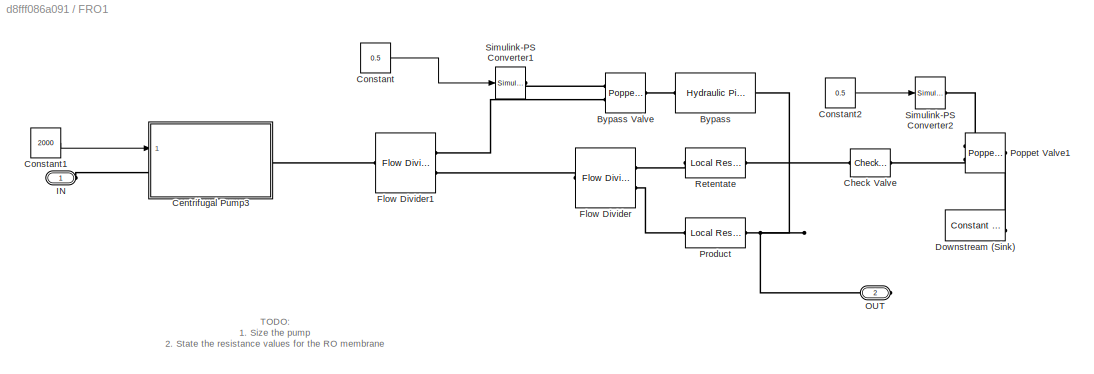
BLOCK [SubSystem] FRO1
  NameLocation = top
  Ports = [0, 0, 0, 0, 0, 1, 1]
  RequestExecContextInheritance = off
BLOCK [Reference] FRO1/Bypass  REF=sh_lib/Pipelines/Hydraulic Pipeline
  Ports = [0, 0, 0, 0, 0, 1, 1]
  SourceBlock = sh_lib/Pipelines/Hydraulic Pipeline
  SourceProductBaseCode = SH
  SourceType = Hydraulic Pipeline
BLOCK [Reference] FRO1/Bypass Valve  REF=sh_lib/Valves/Flow Control Valves/Poppet Valve
  Ports = [0, 0, 0, 0, 0, 2, 1]
  SourceBlock = sh_lib/Valves/Flow Control Valves/Poppet Valve
  SourceProductBaseCode = SH
  SourceType = Poppet Valve
BLOCK [SubSystem] FRO1/Centrifugal Pump3
  Ports = [1, 0, 0, 0, 0, 1, 1]
  RequestExecContextInheritance = off
BLOCK [TransferFcn] FRO1/Centrifugal Pump3/Drive and Amplifier Dynamics
  Denominator = [0.1 1]
BLOCK [Reference] FRO1/Centrifugal Pump3/Hydraulic Flow Rate Sensor  REF=fl_lib/Hydraulic/Hydraulic Sensors/Hydraulic Flow Rate
Sensor
  Ports = [0, 0, 0, 0, 0, 1, 3]
  SourceBlock = fl_lib/Hydraulic/Hydraulic Sensors/Hydraulic Flow Rate\nSensor
  SourceProductBaseCode = SS
  SourceType = Hydraulic Flow Rate\nSensor
BLOCK [Reference] FRO1/Centrifugal Pump3/MRRef Pump 1  REF=fl_lib/Mechanical/Rotational Elements/Mechanical
Rotational Reference
  Ports = [0, 0, 0, 0, 0, 1]
  SourceBlock = fl_lib/Mechanical/Rotational Elements/Mechanical\nRotational Reference
  SourceProductBaseCode = SS
  SourceType = Mechanical\nRotational Reference
BLOCK [Reference] FRO1/Centrifugal Pump3/PS-Simulink Converter2  REF=nesl_utility/PS-Simulink
Converter
  Ports = [0, 1, 0, 0, 0, 1]
  SourceBlock = nesl_utility/PS-Simulink\nConverter
  SourceProductBaseCode = SS
  SourceType = PS-Simulink\nConverter
BLOCK [Reference] FRO1/Centrifugal Pump3/Pipe P  REF=sh_lib/Low-Pressure Blocks/Resistive Pipe LP
  Ports = [0, 0, 0, 0, 0, 1, 1]
  SourceBlock = sh_lib/Low-Pressure Blocks/Resistive Pipe LP
  SourceProductBaseCode = SH
  SourceType = Resistive Pipe LP
BLOCK [Reference] FRO1/Centrifugal Pump3/Pump 1  REF=sh_lib/Pumps and Motors/Centrifugal Pump
  NameLocation = right
  Ports = [0, 0, 0, 0, 0, 1, 2]
  SourceBlock = sh_lib/Pumps and Motors/Centrifugal Pump
  SourceProductBaseCode = SH
  SourceType = Centrifugal Pump
BLOCK [Scope] FRO1/Centrifugal Pump3/Scope
  Floating = off
  NumInputPorts = 1
  Ports = [1]
  ScopeSpecificationString = Simulink.scopes.TimeScopeBlockCfg('CurrentConfiguration', extmgr.ConfigurationSet(extmgr.Configuration('Core','General UI',true),extmgr.Configuration('Core','Source UI',true),extmgr.Configuration('Sources','WiredSimulink',true),extmgr.Configuration('Visuals','Time Domain',true,'SerializedDisplays',{struct('MinYLimReal','-0.00001','MaxYLimReal','0.00012','YLabelReal','','MinYLimMag','0.00000','MaxY...<+1367ch>
BLOCK [Reference] FRO1/Centrifugal Pump3/Simulink-PS Converter1  REF=nesl_utility/Simulink-PS
Converter
  Ports = [1, 0, 0, 0, 0, 0, 1]
  SourceBlock = nesl_utility/Simulink-PS\nConverter
  SourceProductBaseCode = SS
  SourceType = Simulink-PS\nConverter
BLOCK [Reference] FRO1/Centrifugal Pump3/Velocity Source Pump 1  REF=fl_lib/Mechanical/Mechanical Sources/Ideal Angular
Velocity Source
  Ports = [0, 0, 0, 0, 0, 1, 2]
  SourceBlock = fl_lib/Mechanical/Mechanical Sources/Ideal Angular\nVelocity Source
  SourceProductBaseCode = SS
  SourceType = Ideal Angular\nVelocity Source
BLOCK [Inport] FRO1/Centrifugal Pump3/f
BLOCK [SubSystem] FRO1/Centrifugal Pump3/induction machine
  Ports = [1, 1]
  RequestExecContextInheritance = off
BLOCK [TransferFcn] FRO1/Centrifugal Pump3/induction machine/Induction Machine
  Denominator = [1 1]
BLOCK [SubSystem] FRO1/Centrifugal Pump3/induction machine/Induction speed
  ErrorFcn = Stateflow.Translate.translate
  PermitHierarchicalResolution = ExplicitOnly
  Ports = [1, 1]
  RequestExecContextInheritance = off
  SFBlockType = MATLAB Function
  TreatAsAtomicUnit = on
BLOCK [Demux] FRO1/Centrifugal Pump3/induction machine/Induction speed/ Demux 
  Outputs = 1
  Ports = [1, 1]
BLOCK [S-Function] FRO1/Centrifugal Pump3/induction machine/Induction speed/ SFunction 
  EnableBusSupport = on
  FunctionName = sf_sfun
  PortCounts = [1 2]
  Ports = [1, 2]
  SFcnIsStateOwnerBlock = off
  SFunctionDeploymentMode = off
  Tag = Stateflow S-Function 3
BLOCK [Terminator] FRO1/Centrifugal Pump3/induction machine/Induction speed/ Terminator 
BLOCK [Inport] FRO1/Centrifugal Pump3/induction machine/Induction speed/f
BLOCK [Outport] FRO1/Centrifugal Pump3/induction machine/Induction speed/w
BLOCK [Inport] FRO1/Centrifugal Pump3/induction machine/f
BLOCK [Saturate] FRO1/Centrifugal Pump3/induction machine/max//min speeds
  LowerLimit = 0
  UpperLimit = 100
BLOCK [Outport] FRO1/Centrifugal Pump3/induction machine/w
BLOCK [PMIOPort] FRO1/Centrifugal Pump3/inletT
  Side = Left
BLOCK [PMIOPort] FRO1/Centrifugal Pump3/outletT
  Port = 2
  Side = Right
BLOCK [Reference] FRO1/Check Valve  REF=sh_lib/Valves/Directional Valves/Check Valve
  Ports = [0, 0, 0, 0, 0, 1, 1]
  SourceBlock = sh_lib/Valves/Directional Valves/Check Valve
  SourceProductBaseCode = SH
  SourceType = Check Valve
BLOCK [Constant] FRO1/Constant
  Value = 0.5
BLOCK [Constant] FRO1/Constant1
  Value = 2000
BLOCK [Constant] FRO1/Constant2
  Value = 0.5
BLOCK [Reference] FRO1/Downstream (Sink)  REF=sh_lib/Low-Pressure Blocks/Constant Head Tank
  Ports = [0, 0, 0, 0, 0, 0, 2]
  SourceBlock = sh_lib/Low-Pressure Blocks/Constant Head Tank
  SourceProductBaseCode = SH
  SourceType = Constant Head Tank
BLOCK [Reference] FRO1/Flow Divider  REF=sh_lib/Valves/Flow Control Valves/Flow Divider
  Ports = [0, 0, 0, 0, 0, 1, 2]
  SourceBlock = sh_lib/Valves/Flow Control Valves/Flow Divider
  SourceProductBaseCode = SH
  SourceType = Flow Divider
BLOCK [Reference] FRO1/Flow Divider1  REF=sh_lib/Valves/Flow Control Valves/Flow Divider
  Ports = [0, 0, 0, 0, 0, 1, 2]
  SourceBlock = sh_lib/Valves/Flow Control Valves/Flow Divider
  SourceProductBaseCode = SH
  SourceType = Flow Divider
BLOCK [PMIOPort] FRO1/IN
  Side = Left
BLOCK [PMIOPort] FRO1/OUT
  Port = 2
  Side = Right
BLOCK [Reference] FRO1/Poppet Valve1  REF=sh_lib/Valves/Flow Control Valves/Poppet Valve
  Ports = [0, 0, 0, 0, 0, 2, 1]
  SourceBlock = sh_lib/Valves/Flow Control Valves/Poppet Valve
  SourceProductBaseCode = SH
  SourceType = Poppet Valve
BLOCK [Reference] FRO1/Product  REF=sh_lib/Local Hydraulic
Resistances/Local Resistance
  Ports = [0, 0, 0, 0, 0, 1, 1]
  SourceBlock = sh_lib/Local Hydraulic\nResistances/Local Resistance
  SourceProductBaseCode = SH
  SourceType = Local Resistance
BLOCK [Reference] FRO1/Retentate  REF=sh_lib/Local Hydraulic
Resistances/Local Resistance
  Ports = [0, 0, 0, 0, 0, 1, 1]
  SourceBlock = sh_lib/Local Hydraulic\nResistances/Local Resistance
  SourceProductBaseCode = SH
  SourceType = Local Resistance
BLOCK [Reference] FRO1/Simulink-PS Converter1  REF=nesl_utility/Simulink-PS
Converter
  Ports = [1, 0, 0, 0, 0, 0, 1]
  SourceBlock = nesl_utility/Simulink-PS\nConverter
  SourceProductBaseCode = SS
  SourceType = Simulink-PS\nConverter
BLOCK [Reference] FRO1/Simulink-PS Converter2  REF=nesl_utility/Simulink-PS
Converter
  Ports = [1, 0, 0, 0, 0, 0, 1]
  SourceBlock = nesl_utility/Simulink-PS\nConverter
  SourceProductBaseCode = SS
  SourceType = Simulink-PS\nConverter
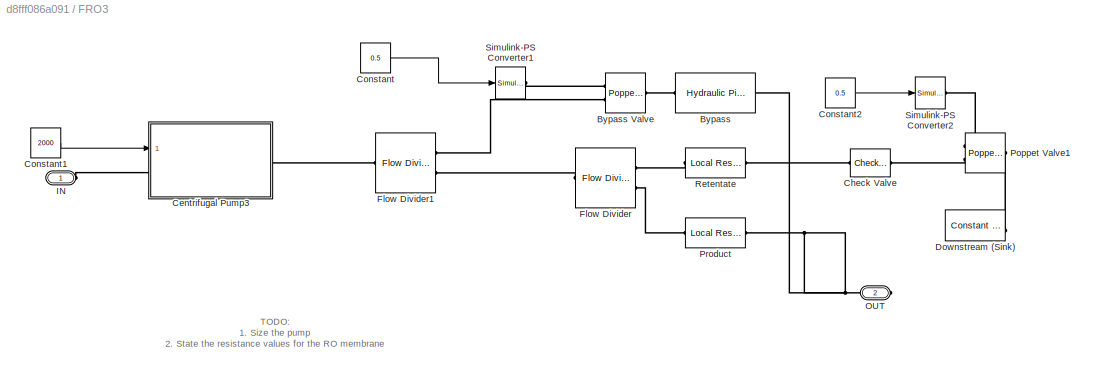
BLOCK [SubSystem] FRO3
  NameLocation = top
  Ports = [0, 0, 0, 0, 0, 1, 1]
  RequestExecContextInheritance = off
BLOCK [Reference] FRO3/Bypass  REF=sh_lib/Pipelines/Hydraulic Pipeline
  Ports = [0, 0, 0, 0, 0, 1, 1]
  SourceBlock = sh_lib/Pipelines/Hydraulic Pipeline
  SourceProductBaseCode = SH
  SourceType = Hydraulic Pipeline
BLOCK [Reference] FRO3/Bypass Valve  REF=sh_lib/Valves/Flow Control Valves/Poppet Valve
  Ports = [0, 0, 0, 0, 0, 2, 1]
  SourceBlock = sh_lib/Valves/Flow Control Valves/Poppet Valve
  SourceProductBaseCode = SH
  SourceType = Poppet Valve
BLOCK [SubSystem] FRO3/Centrifugal Pump3
  Ports = [1, 0, 0, 0, 0, 1, 1]
  RequestExecContextInheritance = off
BLOCK [TransferFcn] FRO3/Centrifugal Pump3/Drive and Amplifier Dynamics
  Denominator = [0.1 1]
BLOCK [Reference] FRO3/Centrifugal Pump3/Hydraulic Flow Rate Sensor  REF=fl_lib/Hydraulic/Hydraulic Sensors/Hydraulic Flow Rate
Sensor
  Ports = [0, 0, 0, 0, 0, 1, 3]
  SourceBlock = fl_lib/Hydraulic/Hydraulic Sensors/Hydraulic Flow Rate\nSensor
  SourceProductBaseCode = SS
  SourceType = Hydraulic Flow Rate\nSensor
BLOCK [Reference] FRO3/Centrifugal Pump3/MRRef Pump 1  REF=fl_lib/Mechanical/Rotational Elements/Mechanical
Rotational Reference
  Ports = [0, 0, 0, 0, 0, 1]
  SourceBlock = fl_lib/Mechanical/Rotational Elements/Mechanical\nRotational Reference
  SourceProductBaseCode = SS
  SourceType = Mechanical\nRotational Reference
BLOCK [Reference] FRO3/Centrifugal Pump3/PS-Simulink Converter2  REF=nesl_utility/PS-Simulink
Converter
  Ports = [0, 1, 0, 0, 0, 1]
  SourceBlock = nesl_utility/PS-Simulink\nConverter
  SourceProductBaseCode = SS
  SourceType = PS-Simulink\nConverter
BLOCK [Reference] FRO3/Centrifugal Pump3/Pipe P  REF=sh_lib/Low-Pressure Blocks/Resistive Pipe LP
  Ports = [0, 0, 0, 0, 0, 1, 1]
  SourceBlock = sh_lib/Low-Pressure Blocks/Resistive Pipe LP
  SourceProductBaseCode = SH
  SourceType = Resistive Pipe LP
BLOCK [Reference] FRO3/Centrifugal Pump3/Pump 1  REF=sh_lib/Pumps and Motors/Centrifugal Pump
  NameLocation = right
  Ports = [0, 0, 0, 0, 0, 1, 2]
  SourceBlock = sh_lib/Pumps and Motors/Centrifugal Pump
  SourceProductBaseCode = SH
  SourceType = Centrifugal Pump
BLOCK [Scope] FRO3/Centrifugal Pump3/Scope
  Floating = off
  NumInputPorts = 1
  Ports = [1]
BLOCK [Reference] FRO3/Centrifugal Pump3/Simulink-PS Converter1  REF=nesl_utility/Simulink-PS
Converter
  Ports = [1, 0, 0, 0, 0, 0, 1]
  SourceBlock = nesl_utility/Simulink-PS\nConverter
  SourceProductBaseCode = SS
  SourceType = Simulink-PS\nConverter
BLOCK [Reference] FRO3/Centrifugal Pump3/Velocity Source Pump 1  REF=fl_lib/Mechanical/Mechanical Sources/Ideal Angular
Velocity Source
  Ports = [0, 0, 0, 0, 0, 1, 2]
  SourceBlock = fl_lib/Mechanical/Mechanical Sources/Ideal Angular\nVelocity Source
  SourceProductBaseCode = SS
  SourceType = Ideal Angular\nVelocity Source
BLOCK [Inport] FRO3/Centrifugal Pump3/f
BLOCK [SubSystem] FRO3/Centrifugal Pump3/induction machine
  Ports = [1, 1]
  RequestExecContextInheritance = off
BLOCK [TransferFcn] FRO3/Centrifugal Pump3/induction machine/Induction Machine
  Denominator = [1 1]
BLOCK [SubSystem] FRO3/Centrifugal Pump3/induction machine/Induction speed
  ErrorFcn = Stateflow.Translate.translate
  PermitHierarchicalResolution = ExplicitOnly
  Ports = [1, 1]
  RequestExecContextInheritance = off
  SFBlockType = MATLAB Function
  TreatAsAtomicUnit = on
BLOCK [Demux] FRO3/Centrifugal Pump3/induction machine/Induction speed/ Demux 
  Outputs = 1
  Ports = [1, 1]
BLOCK [S-Function] FRO3/Centrifugal Pump3/induction machine/Induction speed/ SFunction 
  EnableBusSupport = on
  FunctionName = sf_sfun
  PortCounts = [1 2]
  Ports = [1, 2]
  SFcnIsStateOwnerBlock = off
  SFunctionDeploymentMode = off
  Tag = Stateflow S-Function 4
BLOCK [Terminator] FRO3/Centrifugal Pump3/induction machine/Induction speed/ Terminator 
BLOCK [Inport] FRO3/Centrifugal Pump3/induction machine/Induction speed/f
BLOCK [Outport] FRO3/Centrifugal Pump3/induction machine/Induction speed/w
BLOCK [Inport] FRO3/Centrifugal Pump3/induction machine/f
BLOCK [Saturate] FRO3/Centrifugal Pump3/induction machine/max//min speeds
  LowerLimit = 0
  UpperLimit = 100
BLOCK [Outport] FRO3/Centrifugal Pump3/induction machine/w
BLOCK [PMIOPort] FRO3/Centrifugal Pump3/inletT
  Side = Left
BLOCK [PMIOPort] FRO3/Centrifugal Pump3/outletT
  Port = 2
  Side = Right
BLOCK [Reference] FRO3/Check Valve  REF=sh_lib/Valves/Directional Valves/Check Valve
  Ports = [0, 0, 0, 0, 0, 1, 1]
  SourceBlock = sh_lib/Valves/Directional Valves/Check Valve
  SourceProductBaseCode = SH
  SourceType = Check Valve
BLOCK [Constant] FRO3/Constant
  Value = 0.5
BLOCK [Constant] FRO3/Constant1
  Value = 2000
BLOCK [Constant] FRO3/Constant2
  Value = 0.5
BLOCK [Reference] FRO3/Downstream (Sink)  REF=sh_lib/Low-Pressure Blocks/Constant Head Tank
  Ports = [0, 0, 0, 0, 0, 0, 2]
  SourceBlock = sh_lib/Low-Pressure Blocks/Constant Head Tank
  SourceProductBaseCode = SH
  SourceType = Constant Head Tank
BLOCK [Reference] FRO3/Flow Divider  REF=sh_lib/Valves/Flow Control Valves/Flow Divider
  Ports = [0, 0, 0, 0, 0, 1, 2]
  SourceBlock = sh_lib/Valves/Flow Control Valves/Flow Divider
  SourceProductBaseCode = SH
  SourceType = Flow Divider
BLOCK [Reference] FRO3/Flow Divider1  REF=sh_lib/Valves/Flow Control Valves/Flow Divider
  Ports = [0, 0, 0, 0, 0, 1, 2]
  SourceBlock = sh_lib/Valves/Flow Control Valves/Flow Divider
  SourceProductBaseCode = SH
  SourceType = Flow Divider
BLOCK [PMIOPort] FRO3/IN
  Side = Left
BLOCK [PMIOPort] FRO3/OUT
  Port = 2
  Side = Right
BLOCK [Reference] FRO3/Poppet Valve1  REF=sh_lib/Valves/Flow Control Valves/Poppet Valve
  Ports = [0, 0, 0, 0, 0, 2, 1]
  SourceBlock = sh_lib/Valves/Flow Control Valves/Poppet Valve
  SourceProductBaseCode = SH
  SourceType = Poppet Valve
BLOCK [Reference] FRO3/Product  REF=sh_lib/Local Hydraulic
Resistances/Local Resistance
  Ports = [0, 0, 0, 0, 0, 1, 1]
  SourceBlock = sh_lib/Local Hydraulic\nResistances/Local Resistance
  SourceProductBaseCode = SH
  SourceType = Local Resistance
BLOCK [Reference] FRO3/Retentate  REF=sh_lib/Local Hydraulic
Resistances/Local Resistance
  Ports = [0, 0, 0, 0, 0, 1, 1]
  SourceBlock = sh_lib/Local Hydraulic\nResistances/Local Resistance
  SourceProductBaseCode = SH
  SourceType = Local Resistance
BLOCK [Reference] FRO3/Simulink-PS Converter1  REF=nesl_utility/Simulink-PS
Converter
  Ports = [1, 0, 0, 0, 0, 0, 1]
  SourceBlock = nesl_utility/Simulink-PS\nConverter
  SourceProductBaseCode = SS
  SourceType = Simulink-PS\nConverter
BLOCK [Reference] FRO3/Simulink-PS Converter2  REF=nesl_utility/Simulink-PS
Converter
  Ports = [1, 0, 0, 0, 0, 0, 1]
  SourceBlock = nesl_utility/Simulink-PS\nConverter
  SourceProductBaseCode = SS
  SourceType = Simulink-PS\nConverter
BLOCK [SubSystem] F_GAC1
  NameLocation = left
  Ports = [0, 0, 0, 0, 0, 1, 1]
  RequestExecContextInheritance = off
BLOCK [Reference] F_GAC1/Hydraulic Flow Rate Sensor  REF=fl_lib/Hydraulic/Hydraulic Sensors/Hydraulic Flow Rate
Sensor
  Ports = [0, 0, 0, 0, 0, 1, 3]
  SourceBlock = fl_lib/Hydraulic/Hydraulic Sensors/Hydraulic Flow Rate\nSensor
  SourceProductBaseCode = SS
  SourceType = Hydraulic Flow Rate\nSensor
BLOCK [PMIOPort] F_GAC1/IN
  Side = Left
BLOCK [PMIOPort] F_GAC1/OUT
  Port = 2
  Side = Right
BLOCK [Reference] F_GAC1/PS-Simulink Converter3  REF=nesl_utility/PS-Simulink
Converter
  Ports = [0, 1, 0, 0, 0, 1]
  SourceBlock = nesl_utility/PS-Simulink\nConverter
  SourceProductBaseCode = SS
  SourceType = PS-Simulink\nConverter
BLOCK [Reference] F_GAC1/Resistive Pipe LP  REF=sh_lib/Low-Pressure Blocks/Resistive Pipe LP
  Ports = [0, 0, 0, 0, 0, 1, 1]
  SourceBlock = sh_lib/Low-Pressure Blocks/Resistive Pipe LP
  SourceProductBaseCode = SH
  SourceType = Resistive Pipe LP
BLOCK [Scope] F_GAC1/Scope3
  Floating = off
  NumInputPorts = 1
  Ports = [1]
  ScopeSpecificationString = Simulink.scopes.TimeScopeBlockCfg('CurrentConfiguration', extmgr.ConfigurationSet(extmgr.Configuration('Core','General UI',true),extmgr.Configuration('Core','Source UI',true),extmgr.Configuration('Sources','WiredSimulink',true,'DataLoggingVariableName','ScopeData1'),extmgr.Configuration('Visuals','Time Domain',true,'SerializedDisplays',{struct('MinYLimReal','-0.0000000007','MaxYLimReal','0.0000000...<+1469ch>
BLOCK [Reference] Hydraulic Flow Rate Sensor  REF=fl_lib/Hydraulic/Hydraulic Sensors/Hydraulic Flow Rate
Sensor
  Ports = [0, 0, 0, 0, 0, 1, 3]
  SourceBlock = fl_lib/Hydraulic/Hydraulic Sensors/Hydraulic Flow Rate\nSensor
  SourceProductBaseCode = SS
  SourceType = Hydraulic Flow Rate\nSensor
BLOCK [Reference] Hydraulic Flow Rate Sensor1  REF=fl_lib/Hydraulic/Hydraulic Sensors/Hydraulic Flow Rate
Sensor
  NameLocation = left
  Ports = [0, 0, 0, 0, 0, 1, 3]
  SourceBlock = fl_lib/Hydraulic/Hydraulic Sensors/Hydraulic Flow Rate\nSensor
  SourceProductBaseCode = SS
  SourceType = Hydraulic Flow Rate\nSensor
BLOCK [Reference] Hydraulic Flow Rate Sensor10  REF=fl_lib/Hydraulic/Hydraulic Sensors/Hydraulic Flow Rate
Sensor
  NameLocation = top
  Ports = [0, 0, 0, 0, 0, 1, 3]
  SourceBlock = fl_lib/Hydraulic/Hydraulic Sensors/Hydraulic Flow Rate\nSensor
  SourceProductBaseCode = SS
  SourceType = Hydraulic Flow Rate\nSensor
BLOCK [Reference] Hydraulic Flow Rate Sensor11  REF=fl_lib/Hydraulic/Hydraulic Sensors/Hydraulic Flow Rate
Sensor
  NameLocation = top
  Ports = [0, 0, 0, 0, 0, 1, 3]
  SourceBlock = fl_lib/Hydraulic/Hydraulic Sensors/Hydraulic Flow Rate\nSensor
  SourceProductBaseCode = SS
  SourceType = Hydraulic Flow Rate\nSensor
BLOCK [Reference] Hydraulic Flow Rate Sensor2  REF=fl_lib/Hydraulic/Hydraulic Sensors/Hydraulic Flow Rate
Sensor
  Ports = [0, 0, 0, 0, 0, 1, 3]
  SourceBlock = fl_lib/Hydraulic/Hydraulic Sensors/Hydraulic Flow Rate\nSensor
  SourceProductBaseCode = SS
  SourceType = Hydraulic Flow Rate\nSensor
BLOCK [Reference] Hydraulic Flow Rate Sensor3  REF=fl_lib/Hydraulic/Hydraulic Sensors/Hydraulic Flow Rate
Sensor
  Ports = [0, 0, 0, 0, 0, 1, 3]
  SourceBlock = fl_lib/Hydraulic/Hydraulic Sensors/Hydraulic Flow Rate\nSensor
  SourceProductBaseCode = SS
  SourceType = Hydraulic Flow Rate\nSensor
BLOCK [Reference] Hydraulic Flow Rate Sensor4  REF=fl_lib/Hydraulic/Hydraulic Sensors/Hydraulic Flow Rate
Sensor
  NameLocation = top
  Ports = [0, 0, 0, 0, 0, 1, 3]
  SourceBlock = fl_lib/Hydraulic/Hydraulic Sensors/Hydraulic Flow Rate\nSensor
  SourceProductBaseCode = SS
  SourceType = Hydraulic Flow Rate\nSensor
BLOCK [Reference] Hydraulic Flow Rate Sensor5  REF=fl_lib/Hydraulic/Hydraulic Sensors/Hydraulic Flow Rate
Sensor
  NameLocation = left
  Ports = [0, 0, 0, 0, 0, 1, 3]
  SourceBlock = fl_lib/Hydraulic/Hydraulic Sensors/Hydraulic Flow Rate\nSensor
  SourceProductBaseCode = SS
  SourceType = Hydraulic Flow Rate\nSensor
BLOCK [Reference] Hydraulic Flow Rate Sensor6  REF=fl_lib/Hydraulic/Hydraulic Sensors/Hydraulic Flow Rate
Sensor
  NameLocation = top
  Ports = [0, 0, 0, 0, 0, 1, 3]
  SourceBlock = fl_lib/Hydraulic/Hydraulic Sensors/Hydraulic Flow Rate\nSensor
  SourceProductBaseCode = SS
  SourceType = Hydraulic Flow Rate\nSensor
BLOCK [Reference] Hydraulic Flow Rate Sensor7  REF=fl_lib/Hydraulic/Hydraulic Sensors/Hydraulic Flow Rate
Sensor
  Ports = [0, 0, 0, 0, 0, 1, 3]
  SourceBlock = fl_lib/Hydraulic/Hydraulic Sensors/Hydraulic Flow Rate\nSensor
  SourceProductBaseCode = SS
  SourceType = Hydraulic Flow Rate\nSensor
BLOCK [Reference] Hydraulic Flow Rate Sensor8  REF=fl_lib/Hydraulic/Hydraulic Sensors/Hydraulic Flow Rate
Sensor
  Ports = [0, 0, 0, 0, 0, 1, 3]
  SourceBlock = fl_lib/Hydraulic/Hydraulic Sensors/Hydraulic Flow Rate\nSensor
  SourceProductBaseCode = SS
  SourceType = Hydraulic Flow Rate\nSensor
BLOCK [Reference] Hydraulic Flow Rate Sensor9  REF=fl_lib/Hydraulic/Hydraulic Sensors/Hydraulic Flow Rate
Sensor
  Ports = [0, 0, 0, 0, 0, 1, 3]
  SourceBlock = fl_lib/Hydraulic/Hydraulic Sensors/Hydraulic Flow Rate\nSensor
  SourceProductBaseCode = SS
  SourceType = Hydraulic Flow Rate\nSensor
BLOCK [Math] Math Function1
  Operator = reciprocal
  Ports = [1, 1]
BLOCK [Math] Math Function2
  Operator = reciprocal
  Ports = [1, 1]
BLOCK [SubSystem] P1
  Ports = [0, 0, 0, 0, 0, 1, 2]
  RequestExecContextInheritance = off
BLOCK [Reference] P1/Hydraulic Flow Rate Sensor1  REF=fl_lib/Hydraulic/Hydraulic Sensors/Hydraulic Flow Rate
Sensor
  Ports = [0, 0, 0, 0, 0, 1, 3]
  SourceBlock = fl_lib/Hydraulic/Hydraulic Sensors/Hydraulic Flow Rate\nSensor
  SourceProductBaseCode = SS
  SourceType = Hydraulic Flow Rate\nSensor
BLOCK [PMIOPort] P1/IN
  Side = Left
BLOCK [PMIOPort] P1/OUT
  Port = 2
  Side = Right
BLOCK [PMIOPort] P1/OUT1
  Port = 3
  Side = Right
BLOCK [Reference] P1/Resistive Pipe LP  REF=sh_lib/Low-Pressure Blocks/Resistive Pipe LP
  Ports = [0, 0, 0, 0, 0, 1, 1]
  SourceBlock = sh_lib/Low-Pressure Blocks/Resistive Pipe LP
  SourceProductBaseCode = SH
  SourceType = Resistive Pipe LP
BLOCK [Reference] P1/Resistive Pipe LP1  REF=sh_lib/Low-Pressure Blocks/Resistive Pipe LP
  Ports = [0, 0, 0, 0, 0, 1, 1]
  SourceBlock = sh_lib/Low-Pressure Blocks/Resistive Pipe LP
  SourceProductBaseCode = SH
  SourceType = Resistive Pipe LP
BLOCK [Reference] P1/Resistive Pipe LP2  REF=sh_lib/Low-Pressure Blocks/Resistive Pipe LP
  Ports = [0, 0, 0, 0, 0, 1, 1]
  SourceBlock = sh_lib/Low-Pressure Blocks/Resistive Pipe LP
  SourceProductBaseCode = SH
  SourceType = Resistive Pipe LP
BLOCK [Reference] P1/T-junction  REF=sh_lib/Local Hydraulic
Resistances/T-junction
  Ports = [0, 0, 0, 0, 0, 2, 1]
  SourceBlock = sh_lib/Local Hydraulic\nResistances/T-junction
  SourceProductBaseCode = SH
  SourceType = T-junction
BLOCK [SubSystem] P10
  Ports = [0, 0, 0, 0, 0, 1, 1]
  RequestExecContextInheritance = off
BLOCK [Reference] P10/Hydraulic Flow Rate Sensor1  REF=fl_lib/Hydraulic/Hydraulic Sensors/Hydraulic Flow Rate
Sensor
  Ports = [0, 0, 0, 0, 0, 1, 3]
  SourceBlock = fl_lib/Hydraulic/Hydraulic Sensors/Hydraulic Flow Rate\nSensor
  SourceProductBaseCode = SS
  SourceType = Hydraulic Flow Rate\nSensor
BLOCK [PMIOPort] P10/IN
  Side = Left
BLOCK [PMIOPort] P10/OUT
  Port = 2
  Side = Right
BLOCK [Reference] P10/Resistive Pipe LP1  REF=sh_lib/Low-Pressure Blocks/Resistive Pipe LP
  Ports = [0, 0, 0, 0, 0, 1, 1]
  SourceBlock = sh_lib/Low-Pressure Blocks/Resistive Pipe LP
  SourceProductBaseCode = SH
  SourceType = Resistive Pipe LP
BLOCK [SubSystem] P11
  Ports = [0, 0, 0, 0, 0, 1, 1]
  RequestExecContextInheritance = off
BLOCK [Reference] P11/Hydraulic Flow Rate Sensor1  REF=fl_lib/Hydraulic/Hydraulic Sensors/Hydraulic Flow Rate
Sensor
  Ports = [0, 0, 0, 0, 0, 1, 3]
  SourceBlock = fl_lib/Hydraulic/Hydraulic Sensors/Hydraulic Flow Rate\nSensor
  SourceProductBaseCode = SS
  SourceType = Hydraulic Flow Rate\nSensor
BLOCK [PMIOPort] P11/IN
  Side = Left
BLOCK [PMIOPort] P11/OUT
  Port = 2
  Side = Right
BLOCK [Reference] P11/Resistive Pipe LP1  REF=sh_lib/Low-Pressure Blocks/Resistive Pipe LP
  Ports = [0, 0, 0, 0, 0, 1, 1]
  SourceBlock = sh_lib/Low-Pressure Blocks/Resistive Pipe LP
  SourceProductBaseCode = SH
  SourceType = Resistive Pipe LP
BLOCK [SubSystem] P12
  Ports = [0, 0, 0, 0, 0, 1, 1]
  RequestExecContextInheritance = off
BLOCK [Reference] P12/Hydraulic Flow Rate Sensor1  REF=fl_lib/Hydraulic/Hydraulic Sensors/Hydraulic Flow Rate
Sensor
  Ports = [0, 0, 0, 0, 0, 1, 3]
  SourceBlock = fl_lib/Hydraulic/Hydraulic Sensors/Hydraulic Flow Rate\nSensor
  SourceProductBaseCode = SS
  SourceType = Hydraulic Flow Rate\nSensor
BLOCK [PMIOPort] P12/IN
  Side = Left
BLOCK [PMIOPort] P12/OUT
  Port = 2
  Side = Right
BLOCK [Reference] P12/Resistive Pipe LP1  REF=sh_lib/Low-Pressure Blocks/Resistive Pipe LP
  Ports = [0, 0, 0, 0, 0, 1, 1]
  SourceBlock = sh_lib/Low-Pressure Blocks/Resistive Pipe LP
  SourceProductBaseCode = SH
  SourceType = Resistive Pipe LP
BLOCK [SubSystem] P13
  Ports = [0, 0, 0, 0, 0, 1, 1]
  RequestExecContextInheritance = off
BLOCK [Reference] P13/Hydraulic Flow Rate Sensor1  REF=fl_lib/Hydraulic/Hydraulic Sensors/Hydraulic Flow Rate
Sensor
  Ports = [0, 0, 0, 0, 0, 1, 3]
  SourceBlock = fl_lib/Hydraulic/Hydraulic Sensors/Hydraulic Flow Rate\nSensor
  SourceProductBaseCode = SS
  SourceType = Hydraulic Flow Rate\nSensor
BLOCK [PMIOPort] P13/IN
  Side = Left
BLOCK [PMIOPort] P13/OUT
  Port = 2
  Side = Right
BLOCK [Reference] P13/Resistive Pipe LP1  REF=sh_lib/Low-Pressure Blocks/Resistive Pipe LP
  Ports = [0, 0, 0, 0, 0, 1, 1]
  SourceBlock = sh_lib/Low-Pressure Blocks/Resistive Pipe LP
  SourceProductBaseCode = SH
  SourceType = Resistive Pipe LP
BLOCK [SubSystem] P14
  Ports = [0, 0, 0, 0, 0, 1, 1]
  RequestExecContextInheritance = off
BLOCK [Reference] P14/Hydraulic Flow Rate Sensor1  REF=fl_lib/Hydraulic/Hydraulic Sensors/Hydraulic Flow Rate
Sensor
  Ports = [0, 0, 0, 0, 0, 1, 3]
  SourceBlock = fl_lib/Hydraulic/Hydraulic Sensors/Hydraulic Flow Rate\nSensor
  SourceProductBaseCode = SS
  SourceType = Hydraulic Flow Rate\nSensor
BLOCK [PMIOPort] P14/IN
  Side = Left
BLOCK [PMIOPort] P14/OUT
  Port = 2
  Side = Right
BLOCK [Reference] P14/Resistive Pipe LP1  REF=sh_lib/Low-Pressure Blocks/Resistive Pipe LP
  Ports = [0, 0, 0, 0, 0, 1, 1]
  SourceBlock = sh_lib/Low-Pressure Blocks/Resistive Pipe LP
  SourceProductBaseCode = SH
  SourceType = Resistive Pipe LP
BLOCK [SubSystem] P15
  PortSchema = {"entries":[{"content":{"sides":[{"content":{"connectorIds":[]},"type":"ConnectorPlacement.EquallySpacedRectSide","uuid":"46c43a71-b7fa-42e4-8d4f-3c01e3706290"},{"content":{"connectorIds":[],"side":"RIGHT"},"type":"ConnectorPlacement.EquallySpacedRectSide","uuid":"b401084b-7303-4528-8d6f-c80864bdaeba"},{"content":{"connectorIds":["LConn1"],"side":"TOP"},"type":"ConnectorPlacement.EquallySpacedRect...<+391ch>  <repeated x6 — deduplicated; at blocks: P15, P16, P17, P18, P19, P20>
  Ports = [0, 0, 0, 0, 0, 1, 1]
  RequestExecContextInheritance = off
BLOCK [Reference] P15/Hydraulic Flow Rate Sensor1  REF=fl_lib/Hydraulic/Hydraulic Sensors/Hydraulic Flow Rate
Sensor
  Ports = [0, 0, 0, 0, 0, 1, 3]
  SourceBlock = fl_lib/Hydraulic/Hydraulic Sensors/Hydraulic Flow Rate\nSensor
  SourceProductBaseCode = SS
  SourceType = Hydraulic Flow Rate\nSensor
BLOCK [PMIOPort] P15/IN
  Side = Left
BLOCK [PMIOPort] P15/OUT
  Port = 2
  Side = Right
BLOCK [Reference] P15/Resistive Pipe LP1  REF=sh_lib/Low-Pressure Blocks/Resistive Pipe LP
  Ports = [0, 0, 0, 0, 0, 1, 1]
  SourceBlock = sh_lib/Low-Pressure Blocks/Resistive Pipe LP
  SourceProductBaseCode = SH
  SourceType = Resistive Pipe LP
BLOCK [SubSystem] P16
  Ports = [0, 0, 0, 0, 0, 1, 1]
  RequestExecContextInheritance = off
BLOCK [Reference] P16/Hydraulic Flow Rate Sensor1  REF=fl_lib/Hydraulic/Hydraulic Sensors/Hydraulic Flow Rate
Sensor
  Ports = [0, 0, 0, 0, 0, 1, 3]
  SourceBlock = fl_lib/Hydraulic/Hydraulic Sensors/Hydraulic Flow Rate\nSensor
  SourceProductBaseCode = SS
  SourceType = Hydraulic Flow Rate\nSensor
BLOCK [PMIOPort] P16/IN
  Side = Left
BLOCK [PMIOPort] P16/OUT
  Port = 2
  Side = Right
BLOCK [Reference] P16/Resistive Pipe LP1  REF=sh_lib/Low-Pressure Blocks/Resistive Pipe LP
  Ports = [0, 0, 0, 0, 0, 1, 1]
  SourceBlock = sh_lib/Low-Pressure Blocks/Resistive Pipe LP
  SourceProductBaseCode = SH
  SourceType = Resistive Pipe LP
BLOCK [SubSystem] P17
  Ports = [0, 0, 0, 0, 0, 1, 1]
  RequestExecContextInheritance = off
BLOCK [Reference] P17/Hydraulic Flow Rate Sensor1  REF=fl_lib/Hydraulic/Hydraulic Sensors/Hydraulic Flow Rate
Sensor
  Ports = [0, 0, 0, 0, 0, 1, 3]
  SourceBlock = fl_lib/Hydraulic/Hydraulic Sensors/Hydraulic Flow Rate\nSensor
  SourceProductBaseCode = SS
  SourceType = Hydraulic Flow Rate\nSensor
BLOCK [PMIOPort] P17/IN
  Side = Left
BLOCK [PMIOPort] P17/OUT
  Port = 2
  Side = Right
BLOCK [Reference] P17/Resistive Pipe LP1  REF=sh_lib/Low-Pressure Blocks/Resistive Pipe LP
  Ports = [0, 0, 0, 0, 0, 1, 1]
  SourceBlock = sh_lib/Low-Pressure Blocks/Resistive Pipe LP
  SourceProductBaseCode = SH
  SourceType = Resistive Pipe LP
BLOCK [SubSystem] P18
  Ports = [0, 0, 0, 0, 0, 1, 1]
  RequestExecContextInheritance = off
BLOCK [Reference] P18/Hydraulic Flow Rate Sensor1  REF=fl_lib/Hydraulic/Hydraulic Sensors/Hydraulic Flow Rate
Sensor
  Ports = [0, 0, 0, 0, 0, 1, 3]
  SourceBlock = fl_lib/Hydraulic/Hydraulic Sensors/Hydraulic Flow Rate\nSensor
  SourceProductBaseCode = SS
  SourceType = Hydraulic Flow Rate\nSensor
BLOCK [PMIOPort] P18/IN
  Side = Left
BLOCK [PMIOPort] P18/OUT
  Port = 2
  Side = Right
BLOCK [Reference] P18/Resistive Pipe LP1  REF=sh_lib/Low-Pressure Blocks/Resistive Pipe LP
  Ports = [0, 0, 0, 0, 0, 1, 1]
  SourceBlock = sh_lib/Low-Pressure Blocks/Resistive Pipe LP
  SourceProductBaseCode = SH
  SourceType = Resistive Pipe LP
BLOCK [SubSystem] P19
  Ports = [0, 0, 0, 0, 0, 1, 1]
  RequestExecContextInheritance = off
BLOCK [Reference] P19/Hydraulic Flow Rate Sensor1  REF=fl_lib/Hydraulic/Hydraulic Sensors/Hydraulic Flow Rate
Sensor
  Ports = [0, 0, 0, 0, 0, 1, 3]
  SourceBlock = fl_lib/Hydraulic/Hydraulic Sensors/Hydraulic Flow Rate\nSensor
  SourceProductBaseCode = SS
  SourceType = Hydraulic Flow Rate\nSensor
BLOCK [PMIOPort] P19/IN
  Side = Left
BLOCK [PMIOPort] P19/OUT
  Port = 2
  Side = Right
BLOCK [Reference] P19/Resistive Pipe LP1  REF=sh_lib/Low-Pressure Blocks/Resistive Pipe LP
  Ports = [0, 0, 0, 0, 0, 1, 1]
  SourceBlock = sh_lib/Low-Pressure Blocks/Resistive Pipe LP
  SourceProductBaseCode = SH
  SourceType = Resistive Pipe LP
BLOCK [SubSystem] P1a
  Ports = [0, 0, 0, 0, 0, 1, 1]
  RequestExecContextInheritance = off
BLOCK [Reference] P1a/Hydraulic Flow Rate Sensor1  REF=fl_lib/Hydraulic/Hydraulic Sensors/Hydraulic Flow Rate
Sensor
  Ports = [0, 0, 0, 0, 0, 1, 3]
  SourceBlock = fl_lib/Hydraulic/Hydraulic Sensors/Hydraulic Flow Rate\nSensor
  SourceProductBaseCode = SS
  SourceType = Hydraulic Flow Rate\nSensor
BLOCK [PMIOPort] P1a/IN
  Side = Left
BLOCK [PMIOPort] P1a/OUT
  Port = 2
  Side = Right
BLOCK [Reference] P1a/Resistive Pipe LP  REF=sh_lib/Low-Pressure Blocks/Resistive Pipe LP
  Ports = [0, 0, 0, 0, 0, 1, 1]
  SourceBlock = sh_lib/Low-Pressure Blocks/Resistive Pipe LP
  SourceProductBaseCode = SH
  SourceType = Resistive Pipe LP
BLOCK [SubSystem] P1b
  Ports = [0, 0, 0, 0, 0, 1, 1]
  RequestExecContextInheritance = off
BLOCK [Reference] P1b/Hydraulic Flow Rate Sensor1  REF=fl_lib/Hydraulic/Hydraulic Sensors/Hydraulic Flow Rate
Sensor
  Ports = [0, 0, 0, 0, 0, 1, 3]
  SourceBlock = fl_lib/Hydraulic/Hydraulic Sensors/Hydraulic Flow Rate\nSensor
  SourceProductBaseCode = SS
  SourceType = Hydraulic Flow Rate\nSensor
BLOCK [PMIOPort] P1b/IN
  Side = Left
BLOCK [PMIOPort] P1b/OUT
  Port = 2
  Side = Right
BLOCK [Reference] P1b/Resistive Pipe LP  REF=sh_lib/Low-Pressure Blocks/Resistive Pipe LP
  Ports = [0, 0, 0, 0, 0, 1, 1]
  SourceBlock = sh_lib/Low-Pressure Blocks/Resistive Pipe LP
  SourceProductBaseCode = SH
  SourceType = Resistive Pipe LP
BLOCK [Reference] P1b/Resistive Pipe LP1  REF=sh_lib/Low-Pressure Blocks/Resistive Pipe LP
  Ports = [0, 0, 0, 0, 0, 1, 1]
  SourceBlock = sh_lib/Low-Pressure Blocks/Resistive Pipe LP
  SourceProductBaseCode = SH
  SourceType = Resistive Pipe LP
BLOCK [SubSystem] P2
  Ports = [0, 0, 0, 0, 0, 1, 1]
  RequestExecContextInheritance = off
BLOCK [Reference] P2/Hydraulic Flow Rate Sensor1  REF=fl_lib/Hydraulic/Hydraulic Sensors/Hydraulic Flow Rate
Sensor
  Ports = [0, 0, 0, 0, 0, 1, 3]
  SourceBlock = fl_lib/Hydraulic/Hydraulic Sensors/Hydraulic Flow Rate\nSensor
  SourceProductBaseCode = SS
  SourceType = Hydraulic Flow Rate\nSensor
BLOCK [PMIOPort] P2/IN
  Side = Left
BLOCK [PMIOPort] P2/OUT
  Port = 2
  Side = Right
BLOCK [Reference] P2/Resistive Pipe LP  REF=sh_lib/Low-Pressure Blocks/Resistive Pipe LP
  Ports = [0, 0, 0, 0, 0, 1, 1]
  SourceBlock = sh_lib/Low-Pressure Blocks/Resistive Pipe LP
  SourceProductBaseCode = SH
  SourceType = Resistive Pipe LP
BLOCK [SubSystem] P20
  Ports = [0, 0, 0, 0, 0, 1, 1]
  RequestExecContextInheritance = off
BLOCK [Reference] P20/Hydraulic Flow Rate Sensor1  REF=fl_lib/Hydraulic/Hydraulic Sensors/Hydraulic Flow Rate
Sensor
  Ports = [0, 0, 0, 0, 0, 1, 3]
  SourceBlock = fl_lib/Hydraulic/Hydraulic Sensors/Hydraulic Flow Rate\nSensor
  SourceProductBaseCode = SS
  SourceType = Hydraulic Flow Rate\nSensor
BLOCK [PMIOPort] P20/IN
  Side = Left
BLOCK [PMIOPort] P20/OUT
  Port = 2
  Side = Right
BLOCK [Reference] P20/Resistive Pipe LP1  REF=sh_lib/Low-Pressure Blocks/Resistive Pipe LP
  Ports = [0, 0, 0, 0, 0, 1, 1]
  SourceBlock = sh_lib/Low-Pressure Blocks/Resistive Pipe LP
  SourceProductBaseCode = SH
  SourceType = Resistive Pipe LP
BLOCK [SubSystem] P4
  Ports = [0, 0, 0, 0, 0, 1, 1]
  RequestExecContextInheritance = off
BLOCK [Reference] P4/Hydraulic Flow Rate Sensor1  REF=fl_lib/Hydraulic/Hydraulic Sensors/Hydraulic Flow Rate
Sensor
  Ports = [0, 0, 0, 0, 0, 1, 3]
  SourceBlock = fl_lib/Hydraulic/Hydraulic Sensors/Hydraulic Flow Rate\nSensor
  SourceProductBaseCode = SS
  SourceType = Hydraulic Flow Rate\nSensor
BLOCK [PMIOPort] P4/IN
  Side = Left
BLOCK [PMIOPort] P4/OUT
  Port = 2
  Side = Right
BLOCK [Reference] P4/Resistive Pipe LP  REF=sh_lib/Low-Pressure Blocks/Resistive Pipe LP
  Ports = [0, 0, 0, 0, 0, 1, 1]
  SourceBlock = sh_lib/Low-Pressure Blocks/Resistive Pipe LP
  SourceProductBaseCode = SH
  SourceType = Resistive Pipe LP
BLOCK [Reference] P4/Resistive Pipe LP1  REF=sh_lib/Low-Pressure Blocks/Resistive Pipe LP
  Ports = [0, 0, 0, 0, 0, 1, 1]
  SourceBlock = sh_lib/Low-Pressure Blocks/Resistive Pipe LP
  SourceProductBaseCode = SH
  SourceType = Resistive Pipe LP
BLOCK [SubSystem] P7//P8//P9
  PortSchema = {"entries":[{"content":{"sides":[{"content":{"connectorIds":["LConn1"]},"type":"ConnectorPlacement.EquallySpacedRectSide","uuid":"c4d3b345-1774-4faf-92d9-0d4f63b9ee50"},{"content":{"connectorIds":["RConn1"],"side":"RIGHT"},"type":"ConnectorPlacement.EquallySpacedRectSide","uuid":"19590d96-e8de-4e96-ac4d-d2cb11dc0057"},{"content":{"connectorIds":[],"side":"TOP"},"type":"ConnectorPlacement.EquallySp...<+399ch>
  Ports = [0, 0, 0, 0, 0, 1, 2]
  RequestExecContextInheritance = off
BLOCK [Reference] P7//P8//P9/Hydraulic Flow Rate Sensor1  REF=fl_lib/Hydraulic/Hydraulic Sensors/Hydraulic Flow Rate
Sensor
  Ports = [0, 0, 0, 0, 0, 1, 3]
  SourceBlock = fl_lib/Hydraulic/Hydraulic Sensors/Hydraulic Flow Rate\nSensor
  SourceProductBaseCode = SS
  SourceType = Hydraulic Flow Rate\nSensor
BLOCK [PMIOPort] P7//P8//P9/IN
  Side = Left
BLOCK [PMIOPort] P7//P8//P9/IN1
  Port = 3
  Side = Right
BLOCK [PMIOPort] P7//P8//P9/OUT
  Port = 2
  Side = Right
BLOCK [Reference] P7//P8//P9/Resistive Pipe LP  REF=sh_lib/Low-Pressure Blocks/Resistive Pipe LP
  Ports = [0, 0, 0, 0, 0, 1, 1]
  SourceBlock = sh_lib/Low-Pressure Blocks/Resistive Pipe LP
  SourceProductBaseCode = SH
  SourceType = Resistive Pipe LP
BLOCK [Reference] P7//P8//P9/Resistive Pipe LP1  REF=sh_lib/Low-Pressure Blocks/Resistive Pipe LP
  Ports = [0, 0, 0, 0, 0, 1, 1]
  SourceBlock = sh_lib/Low-Pressure Blocks/Resistive Pipe LP
  SourceProductBaseCode = SH
  SourceType = Resistive Pipe LP
BLOCK [Reference] P7//P8//P9/Resistive Pipe LP2  REF=sh_lib/Low-Pressure Blocks/Resistive Pipe LP
  NameLocation = left
  Ports = [0, 0, 0, 0, 0, 1, 1]
  SourceBlock = sh_lib/Low-Pressure Blocks/Resistive Pipe LP
  SourceProductBaseCode = SH
  SourceType = Resistive Pipe LP
BLOCK [Reference] P7//P8//P9/T-junction  REF=sh_lib/Local Hydraulic
Resistances/T-junction
  Ports = [0, 0, 0, 0, 0, 2, 1]
  SourceBlock = sh_lib/Local Hydraulic\nResistances/T-junction
  SourceProductBaseCode = SH
  SourceType = T-junction
BLOCK [Reference] PID Controller  REF=simulink/Continuous/PID Controller
  Ports = [1, 1]
  SourceBlock = simulink/Continuous/PID Controller
  SourceProductBaseCode = SL
  SourceType = PID 1dof
BLOCK [Reference] PID Controller1  REF=simulink/Continuous/PID Controller
  Ports = [1, 1]
  SourceBlock = simulink/Continuous/PID Controller
  SourceProductBaseCode = SL
  SourceType = PID 1dof
BLOCK [Reference] PID Controller10  REF=simulink/Continuous/PID Controller
  NameLocation = top
  Ports = [1, 1]
  SourceBlock = simulink/Continuous/PID Controller
  SourceProductBaseCode = SL
  SourceType = PID 1dof
BLOCK [Reference] PID Controller11  REF=simulink/Continuous/PID Controller
  NameLocation = top
  Ports = [1, 1]
  SourceBlock = simulink/Continuous/PID Controller
  SourceProductBaseCode = SL
  SourceType = PID 1dof
BLOCK [Reference] PID Controller12  REF=simulink/Continuous/PID Controller
  NameLocation = top
  Ports = [1, 1]
  SourceBlock = simulink/Continuous/PID Controller
  SourceProductBaseCode = SL
  SourceType = PID 1dof
BLOCK [Reference] PID Controller2  REF=simulink/Continuous/PID Controller
  Ports = [1, 1]
  SourceBlock = simulink/Continuous/PID Controller
  SourceProductBaseCode = SL
  SourceType = PID 1dof
BLOCK [Reference] PID Controller3  REF=simulink/Continuous/PID Controller
  Ports = [1, 1]
  SourceBlock = simulink/Continuous/PID Controller
  SourceProductBaseCode = SL
  SourceType = PID 1dof
BLOCK [Reference] PID Controller4  REF=simulink/Continuous/PID Controller
  Ports = [1, 1]
  SourceBlock = simulink/Continuous/PID Controller
  SourceProductBaseCode = SL
  SourceType = PID 1dof
BLOCK [Reference] PID Controller5  REF=simulink/Continuous/PID Controller
  Ports = [1, 1]
  SourceBlock = simulink/Continuous/PID Controller
  SourceProductBaseCode = SL
  SourceType = PID 1dof
BLOCK [Reference] PID Controller6  REF=simulink/Continuous/PID Controller
  Ports = [1, 1]
  SourceBlock = simulink/Continuous/PID Controller
  SourceProductBaseCode = SL
  SourceType = PID 1dof
BLOCK [Reference] PID Controller7  REF=simulink/Continuous/PID Controller
  Ports = [1, 1]
  SourceBlock = simulink/Continuous/PID Controller
  SourceProductBaseCode = SL
  SourceType = PID 1dof
BLOCK [Reference] PID Controller8  REF=simulink/Continuous/PID Controller
  Ports = [1, 1]
  SourceBlock = simulink/Continuous/PID Controller
  SourceProductBaseCode = SL
  SourceType = PID 1dof
BLOCK [Reference] PID Controller9  REF=simulink/Continuous/PID Controller
  NameLocation = top
  Ports = [1, 1]
  SourceBlock = simulink/Continuous/PID Controller
  SourceProductBaseCode = SL
  SourceType = PID 1dof
BLOCK [Reference] PS-Simulink Converter1  REF=nesl_utility/PS-Simulink
Converter
  Ports = [0, 1, 0, 0, 0, 1]
  SourceBlock = nesl_utility/PS-Simulink\nConverter
  SourceProductBaseCode = SS
  SourceType = PS-Simulink\nConverter
BLOCK [Reference] PS-Simulink Converter10  REF=nesl_utility/PS-Simulink
Converter
  Ports = [0, 1, 0, 0, 0, 1]
  SourceBlock = nesl_utility/PS-Simulink\nConverter
  SourceProductBaseCode = SS
  SourceType = PS-Simulink\nConverter
BLOCK [Reference] PS-Simulink Converter11  REF=nesl_utility/PS-Simulink
Converter
  NameLocation = top
  Ports = [0, 1, 0, 0, 0, 1]
  SourceBlock = nesl_utility/PS-Simulink\nConverter
  SourceProductBaseCode = SS
  SourceType = PS-Simulink\nConverter
BLOCK [Reference] PS-Simulink Converter12  REF=nesl_utility/PS-Simulink
Converter
  NameLocation = top
  Ports = [0, 1, 0, 0, 0, 1]
  SourceBlock = nesl_utility/PS-Simulink\nConverter
  SourceProductBaseCode = SS
  SourceType = PS-Simulink\nConverter
BLOCK [Reference] PS-Simulink Converter13  REF=nesl_utility/PS-Simulink
Converter
  NameLocation = top
  Ports = [0, 1, 0, 0, 0, 1]
  SourceBlock = nesl_utility/PS-Simulink\nConverter
  SourceProductBaseCode = SS
  SourceType = PS-Simulink\nConverter
BLOCK [Reference] PS-Simulink Converter14  REF=nesl_utility/PS-Simulink
Converter
  NameLocation = right
  Ports = [0, 1, 0, 0, 0, 1]
  SourceBlock = nesl_utility/PS-Simulink\nConverter
  SourceProductBaseCode = SS
  SourceType = PS-Simulink\nConverter
BLOCK [Reference] PS-Simulink Converter15  REF=nesl_utility/PS-Simulink
Converter
  NameLocation = right
  Ports = [0, 1, 0, 0, 0, 1]
  SourceBlock = nesl_utility/PS-Simulink\nConverter
  SourceProductBaseCode = SS
  SourceType = PS-Simulink\nConverter
BLOCK [Reference] PS-Simulink Converter16  REF=nesl_utility/PS-Simulink
Converter
  NameLocation = right
  Ports = [0, 1, 0, 0, 0, 1]
  SourceBlock = nesl_utility/PS-Simulink\nConverter
  SourceProductBaseCode = SS
  SourceType = PS-Simulink\nConverter
BLOCK [Reference] PS-Simulink Converter17  REF=nesl_utility/PS-Simulink
Converter
  NameLocation = right
  Ports = [0, 1, 0, 0, 0, 1]
  SourceBlock = nesl_utility/PS-Simulink\nConverter
  SourceProductBaseCode = SS
  SourceType = PS-Simulink\nConverter
BLOCK [Reference] PS-Simulink Converter18  REF=nesl_utility/PS-Simulink
Converter
  NameLocation = right
  Ports = [0, 1, 0, 0, 0, 1]
  SourceBlock = nesl_utility/PS-Simulink\nConverter
  SourceProductBaseCode = SS
  SourceType = PS-Simulink\nConverter
BLOCK [Reference] PS-Simulink Converter19  REF=nesl_utility/PS-Simulink
Converter
  NameLocation = right
  Ports = [0, 1, 0, 0, 0, 1]
  SourceBlock = nesl_utility/PS-Simulink\nConverter
  SourceProductBaseCode = SS
  SourceType = PS-Simulink\nConverter
BLOCK [Reference] PS-Simulink Converter2  REF=nesl_utility/PS-Simulink
Converter
  Ports = [0, 1, 0, 0, 0, 1]
  SourceBlock = nesl_utility/PS-Simulink\nConverter
  SourceProductBaseCode = SS
  SourceType = PS-Simulink\nConverter
BLOCK [Reference] PS-Simulink Converter20  REF=nesl_utility/PS-Simulink
Converter
  NameLocation = right
  Ports = [0, 1, 0, 0, 0, 1]
  SourceBlock = nesl_utility/PS-Simulink\nConverter
  SourceProductBaseCode = SS
  SourceType = PS-Simulink\nConverter
BLOCK [Reference] PS-Simulink Converter3  REF=nesl_utility/PS-Simulink
Converter
  Ports = [0, 1, 0, 0, 0, 1]
  SourceBlock = nesl_utility/PS-Simulink\nConverter
  SourceProductBaseCode = SS
  SourceType = PS-Simulink\nConverter
BLOCK [Reference] PS-Simulink Converter4  REF=nesl_utility/PS-Simulink
Converter
  Ports = [0, 1, 0, 0, 0, 1]
  SourceBlock = nesl_utility/PS-Simulink\nConverter
  SourceProductBaseCode = SS
  SourceType = PS-Simulink\nConverter
BLOCK [Reference] PS-Simulink Converter5  REF=nesl_utility/PS-Simulink
Converter
  Ports = [0, 1, 0, 0, 0, 1]
  SourceBlock = nesl_utility/PS-Simulink\nConverter
  SourceProductBaseCode = SS
  SourceType = PS-Simulink\nConverter
BLOCK [Reference] PS-Simulink Converter6  REF=nesl_utility/PS-Simulink
Converter
  NameLocation = top
  Ports = [0, 1, 0, 0, 0, 1]
  SourceBlock = nesl_utility/PS-Simulink\nConverter
  SourceProductBaseCode = SS
  SourceType = PS-Simulink\nConverter
BLOCK [Reference] PS-Simulink Converter7  REF=nesl_utility/PS-Simulink
Converter
  Ports = [0, 1, 0, 0, 0, 1]
  SourceBlock = nesl_utility/PS-Simulink\nConverter
  SourceProductBaseCode = SS
  SourceType = PS-Simulink\nConverter
BLOCK [Reference] PS-Simulink Converter8  REF=nesl_utility/PS-Simulink
Converter
  NameLocation = top
  Ports = [0, 1, 0, 0, 0, 1]
  SourceBlock = nesl_utility/PS-Simulink\nConverter
  SourceProductBaseCode = SS
  SourceType = PS-Simulink\nConverter
BLOCK [Reference] PS-Simulink Converter9  REF=nesl_utility/PS-Simulink
Converter
  Ports = [0, 1, 0, 0, 0, 1]
  SourceBlock = nesl_utility/PS-Simulink\nConverter
  SourceProductBaseCode = SS
  SourceType = PS-Simulink\nConverter
BLOCK [SubSystem] PSOC1
  Ports = [1, 0, 0, 0, 0, 1, 1]
  RequestExecContextInheritance = off
  ShowPortLabels = FromPortBlockName
BLOCK [Inport] PSOC1/E
BLOCK [Reference] PSOC1/Hydraulic Flow Rate Sensor  REF=fl_lib/Hydraulic/Hydraulic Sensors/Hydraulic Flow Rate
Sensor
  Ports = [0, 0, 0, 0, 0, 1, 3]
  SourceBlock = fl_lib/Hydraulic/Hydraulic Sensors/Hydraulic Flow Rate\nSensor
  SourceProductBaseCode = SS
  SourceType = Hydraulic Flow Rate\nSensor
BLOCK [PMIOPort] PSOC1/In
  NameLocation = left
  Port = 2
  Side = Left
BLOCK [PMIOPort] PSOC1/Out
  Side = Right
BLOCK [Reference] PSOC1/PS-Simulink Converter2  REF=nesl_utility/PS-Simulink
Converter
  Ports = [0, 1, 0, 0, 0, 1]
  SourceBlock = nesl_utility/PS-Simulink\nConverter
  SourceProductBaseCode = SS
  SourceType = PS-Simulink\nConverter
BLOCK [Reference] PSOC1/Pipe P  REF=sh_lib/Low-Pressure Blocks/Resistive Pipe LP
  Ports = [0, 0, 0, 0, 0, 1, 1]
  SourceBlock = sh_lib/Low-Pressure Blocks/Resistive Pipe LP
  SourceProductBaseCode = SH
  SourceType = Resistive Pipe LP
BLOCK [TransferFcn] PSOC1/Pneumatic Pump, Drive and Amplifier
  Denominator = [0.1 1]
BLOCK [Reference] PSOC1/Poppet Valve  REF=sh_lib/Valves/Flow Control Valves/Poppet Valve
  Ports = [0, 0, 0, 0, 0, 2, 1]
  SourceBlock = sh_lib/Valves/Flow Control Valves/Poppet Valve
  SourceProductBaseCode = SH
  SourceType = Poppet Valve
BLOCK [Saturate] PSOC1/Saturation
  LowerLimit = 0
  UpperLimit = 100
BLOCK [Scope] PSOC1/Scope
  Floating = off
  NumInputPorts = 1
  Ports = [1]
  ScopeSpecificationString = Simulink.scopes.TimeScopeBlockCfg('CurrentConfiguration', extmgr.ConfigurationSet(extmgr.Configuration('Core','General UI',true),extmgr.Configuration('Core','Source UI',true),extmgr.Configuration('Sources','WiredSimulink',true,'DataLoggingVariableName','ScopeData3'),extmgr.Configuration('Visuals','Time Domain',true,'SerializedDisplays',{struct('MinYLimReal','-0.12406','MaxYLimReal','1.11655','YLab...<+1421ch>  <repeated x11 — deduplicated; at blocks: Scope>
BLOCK [Scope] PSOC1/Scope1
  Floating = off
  NumInputPorts = 1
  Ports = [1]
  ScopeSpecificationString = Simulink.scopes.TimeScopeBlockCfg('CurrentConfiguration', extmgr.ConfigurationSet(extmgr.Configuration('Core','General UI',true),extmgr.Configuration('Core','Source UI',true),extmgr.Configuration('Sources','WiredSimulink',true,'DataLoggingVariableName','ScopeData4'),extmgr.Configuration('Visuals','Time Domain',true,'SerializedDisplays',{struct('MinYLimReal','-0.00197','MaxYLimReal','0.0177','YLabe...<+1402ch>  <repeated x11 — deduplicated; at blocks: Scope1>
BLOCK [Reference] PSOC1/Simulink-PS Converter1  REF=nesl_utility/Simulink-PS
Converter
  Ports = [1, 0, 0, 0, 0, 0, 1]
  SourceBlock = nesl_utility/Simulink-PS\nConverter
  SourceProductBaseCode = SS
  SourceType = Simulink-PS\nConverter
BLOCK [TransportDelay] PSOC1/Valve Stiction
  DelayTime = 0.5
  Ports = [1, 1]
BLOCK [SubSystem] PSOC10
  NameLocation = top
  Ports = [1, 0, 0, 0, 0, 1, 1]
  RequestExecContextInheritance = off
  ShowPortLabels = FromPortBlockName
BLOCK [Inport] PSOC10/E
BLOCK [Reference] PSOC10/Hydraulic Flow Rate Sensor  REF=fl_lib/Hydraulic/Hydraulic Sensors/Hydraulic Flow Rate
Sensor
  Ports = [0, 0, 0, 0, 0, 1, 3]
  SourceBlock = fl_lib/Hydraulic/Hydraulic Sensors/Hydraulic Flow Rate\nSensor
  SourceProductBaseCode = SS
  SourceType = Hydraulic Flow Rate\nSensor
BLOCK [PMIOPort] PSOC10/In
  NameLocation = left
  Port = 2
  Side = Left
BLOCK [PMIOPort] PSOC10/Out
  Side = Right
BLOCK [Reference] PSOC10/PS-Simulink Converter2  REF=nesl_utility/PS-Simulink
Converter
  Ports = [0, 1, 0, 0, 0, 1]
  SourceBlock = nesl_utility/PS-Simulink\nConverter
  SourceProductBaseCode = SS
  SourceType = PS-Simulink\nConverter
BLOCK [Reference] PSOC10/Pipe P  REF=sh_lib/Low-Pressure Blocks/Resistive Pipe LP
  Ports = [0, 0, 0, 0, 0, 1, 1]
  SourceBlock = sh_lib/Low-Pressure Blocks/Resistive Pipe LP
  SourceProductBaseCode = SH
  SourceType = Resistive Pipe LP
BLOCK [TransferFcn] PSOC10/Pneumatic Pump, Drive and Amplifier
  Denominator = [0.1 1]
BLOCK [Reference] PSOC10/Poppet Valve  REF=sh_lib/Valves/Flow Control Valves/Poppet Valve
  Ports = [0, 0, 0, 0, 0, 2, 1]
  SourceBlock = sh_lib/Valves/Flow Control Valves/Poppet Valve
  SourceProductBaseCode = SH
  SourceType = Poppet Valve
BLOCK [Saturate] PSOC10/Saturation
  LowerLimit = 0
  UpperLimit = 100
BLOCK [Scope] PSOC10/Scope
  Floating = off
  NumInputPorts = 1
  Ports = [1]
BLOCK [Scope] PSOC10/Scope1
  Floating = off
  NumInputPorts = 1
  Ports = [1]
BLOCK [Reference] PSOC10/Simulink-PS Converter1  REF=nesl_utility/Simulink-PS
Converter
  Ports = [1, 0, 0, 0, 0, 0, 1]
  SourceBlock = nesl_utility/Simulink-PS\nConverter
  SourceProductBaseCode = SS
  SourceType = Simulink-PS\nConverter
BLOCK [TransportDelay] PSOC10/Valve Stiction
  DelayTime = 0.5
  Ports = [1, 1]
BLOCK [SubSystem] PSOC11
  Ports = [1, 0, 0, 0, 0, 1, 1]
  RequestExecContextInheritance = off
  ShowPortLabels = FromPortBlockName
BLOCK [Inport] PSOC11/E
BLOCK [Reference] PSOC11/Hydraulic Flow Rate Sensor  REF=fl_lib/Hydraulic/Hydraulic Sensors/Hydraulic Flow Rate
Sensor
  Ports = [0, 0, 0, 0, 0, 1, 3]
  SourceBlock = fl_lib/Hydraulic/Hydraulic Sensors/Hydraulic Flow Rate\nSensor
  SourceProductBaseCode = SS
  SourceType = Hydraulic Flow Rate\nSensor
BLOCK [PMIOPort] PSOC11/In
  NameLocation = left
  Port = 2
  Side = Left
BLOCK [PMIOPort] PSOC11/Out
  Side = Right
BLOCK [Reference] PSOC11/PS-Simulink Converter2  REF=nesl_utility/PS-Simulink
Converter
  Ports = [0, 1, 0, 0, 0, 1]
  SourceBlock = nesl_utility/PS-Simulink\nConverter
  SourceProductBaseCode = SS
  SourceType = PS-Simulink\nConverter
BLOCK [Reference] PSOC11/Pipe P  REF=sh_lib/Low-Pressure Blocks/Resistive Pipe LP
  Ports = [0, 0, 0, 0, 0, 1, 1]
  SourceBlock = sh_lib/Low-Pressure Blocks/Resistive Pipe LP
  SourceProductBaseCode = SH
  SourceType = Resistive Pipe LP
BLOCK [TransferFcn] PSOC11/Pneumatic Pump, Drive and Amplifier
  Denominator = [0.1 1]
BLOCK [Reference] PSOC11/Poppet Valve  REF=sh_lib/Valves/Flow Control Valves/Poppet Valve
  Ports = [0, 0, 0, 0, 0, 2, 1]
  SourceBlock = sh_lib/Valves/Flow Control Valves/Poppet Valve
  SourceProductBaseCode = SH
  SourceType = Poppet Valve
BLOCK [Saturate] PSOC11/Saturation
  LowerLimit = 0
  UpperLimit = 100
BLOCK [Scope] PSOC11/Scope
  Floating = off
  NumInputPorts = 1
  Ports = [1]
BLOCK [Scope] PSOC11/Scope1
  Floating = off
  NumInputPorts = 1
  Ports = [1]
BLOCK [Reference] PSOC11/Simulink-PS Converter1  REF=nesl_utility/Simulink-PS
Converter
  Ports = [1, 0, 0, 0, 0, 0, 1]
  SourceBlock = nesl_utility/Simulink-PS\nConverter
  SourceProductBaseCode = SS
  SourceType = Simulink-PS\nConverter
BLOCK [TransportDelay] PSOC11/Valve Stiction
  DelayTime = 0.5
  Ports = [1, 1]
BLOCK [SubSystem] PSOC2
  Ports = [1, 0, 0, 0, 0, 1, 1]
  RequestExecContextInheritance = off
  ShowPortLabels = FromPortBlockName
BLOCK [Inport] PSOC2/E
BLOCK [Reference] PSOC2/Hydraulic Flow Rate Sensor  REF=fl_lib/Hydraulic/Hydraulic Sensors/Hydraulic Flow Rate
Sensor
  Ports = [0, 0, 0, 0, 0, 1, 3]
  SourceBlock = fl_lib/Hydraulic/Hydraulic Sensors/Hydraulic Flow Rate\nSensor
  SourceProductBaseCode = SS
  SourceType = Hydraulic Flow Rate\nSensor
BLOCK [PMIOPort] PSOC2/In
  NameLocation = left
  Port = 2
  Side = Left
BLOCK [PMIOPort] PSOC2/Out
  Side = Right
BLOCK [Reference] PSOC2/PS-Simulink Converter2  REF=nesl_utility/PS-Simulink
Converter
  Ports = [0, 1, 0, 0, 0, 1]
  SourceBlock = nesl_utility/PS-Simulink\nConverter
  SourceProductBaseCode = SS
  SourceType = PS-Simulink\nConverter
BLOCK [Reference] PSOC2/Pipe P  REF=sh_lib/Low-Pressure Blocks/Resistive Pipe LP
  Ports = [0, 0, 0, 0, 0, 1, 1]
  SourceBlock = sh_lib/Low-Pressure Blocks/Resistive Pipe LP
  SourceProductBaseCode = SH
  SourceType = Resistive Pipe LP
BLOCK [TransferFcn] PSOC2/Pneumatic Pump, Drive and Amplifier
  Denominator = [0.1 1]
BLOCK [Reference] PSOC2/Poppet Valve  REF=sh_lib/Valves/Flow Control Valves/Poppet Valve
  Ports = [0, 0, 0, 0, 0, 2, 1]
  SourceBlock = sh_lib/Valves/Flow Control Valves/Poppet Valve
  SourceProductBaseCode = SH
  SourceType = Poppet Valve
BLOCK [Saturate] PSOC2/Saturation
  LowerLimit = 0
  UpperLimit = 100
BLOCK [Scope] PSOC2/Scope
  Floating = off
  NumInputPorts = 1
  Ports = [1]
BLOCK [Scope] PSOC2/Scope1
  Floating = off
  NumInputPorts = 1
  Ports = [1]
BLOCK [Reference] PSOC2/Simulink-PS Converter1  REF=nesl_utility/Simulink-PS
Converter
  Ports = [1, 0, 0, 0, 0, 0, 1]
  SourceBlock = nesl_utility/Simulink-PS\nConverter
  SourceProductBaseCode = SS
  SourceType = Simulink-PS\nConverter
BLOCK [TransportDelay] PSOC2/Valve Stiction
  DelayTime = 0.5
  Ports = [1, 1]
BLOCK [SubSystem] PSOC3
  Ports = [1, 0, 0, 0, 0, 1, 1]
  RequestExecContextInheritance = off
  ShowPortLabels = FromPortBlockName
BLOCK [Inport] PSOC3/E
BLOCK [Reference] PSOC3/Hydraulic Flow Rate Sensor  REF=fl_lib/Hydraulic/Hydraulic Sensors/Hydraulic Flow Rate
Sensor
  Ports = [0, 0, 0, 0, 0, 1, 3]
  SourceBlock = fl_lib/Hydraulic/Hydraulic Sensors/Hydraulic Flow Rate\nSensor
  SourceProductBaseCode = SS
  SourceType = Hydraulic Flow Rate\nSensor
BLOCK [PMIOPort] PSOC3/In
  NameLocation = left
  Port = 2
  Side = Left
BLOCK [PMIOPort] PSOC3/Out
  Side = Right
BLOCK [Reference] PSOC3/PS-Simulink Converter2  REF=nesl_utility/PS-Simulink
Converter
  Ports = [0, 1, 0, 0, 0, 1]
  SourceBlock = nesl_utility/PS-Simulink\nConverter
  SourceProductBaseCode = SS
  SourceType = PS-Simulink\nConverter
BLOCK [Reference] PSOC3/Pipe P  REF=sh_lib/Low-Pressure Blocks/Resistive Pipe LP
  Ports = [0, 0, 0, 0, 0, 1, 1]
  SourceBlock = sh_lib/Low-Pressure Blocks/Resistive Pipe LP
  SourceProductBaseCode = SH
  SourceType = Resistive Pipe LP
BLOCK [TransferFcn] PSOC3/Pneumatic Pump, Drive and Amplifier
  Denominator = [0.1 1]
BLOCK [Reference] PSOC3/Poppet Valve  REF=sh_lib/Valves/Flow Control Valves/Poppet Valve
  Ports = [0, 0, 0, 0, 0, 2, 1]
  SourceBlock = sh_lib/Valves/Flow Control Valves/Poppet Valve
  SourceProductBaseCode = SH
  SourceType = Poppet Valve
BLOCK [Saturate] PSOC3/Saturation
  LowerLimit = 0
  UpperLimit = 100
BLOCK [Scope] PSOC3/Scope
  Floating = off
  NumInputPorts = 1
  Ports = [1]
BLOCK [Scope] PSOC3/Scope1
  Floating = off
  NumInputPorts = 1
  Ports = [1]
BLOCK [Reference] PSOC3/Simulink-PS Converter1  REF=nesl_utility/Simulink-PS
Converter
  Ports = [1, 0, 0, 0, 0, 0, 1]
  SourceBlock = nesl_utility/Simulink-PS\nConverter
  SourceProductBaseCode = SS
  SourceType = Simulink-PS\nConverter
BLOCK [TransportDelay] PSOC3/Valve Stiction
  DelayTime = 0.5
  Ports = [1, 1]
BLOCK [SubSystem] PSOC4
  Ports = [1, 0, 0, 0, 0, 0, 2]
  RequestExecContextInheritance = off
  ShowPortLabels = FromPortBlockName
BLOCK [Inport] PSOC4/E
BLOCK [Reference] PSOC4/Hydraulic Flow Rate Sensor  REF=fl_lib/Hydraulic/Hydraulic Sensors/Hydraulic Flow Rate
Sensor
  Ports = [0, 0, 0, 0, 0, 1, 3]
  SourceBlock = fl_lib/Hydraulic/Hydraulic Sensors/Hydraulic Flow Rate\nSensor
  SourceProductBaseCode = SS
  SourceType = Hydraulic Flow Rate\nSensor
BLOCK [PMIOPort] PSOC4/In
  NameLocation = left
  Port = 2
  Side = Right
BLOCK [PMIOPort] PSOC4/Out
  Side = Right
BLOCK [Reference] PSOC4/PS-Simulink Converter2  REF=nesl_utility/PS-Simulink
Converter
  Ports = [0, 1, 0, 0, 0, 1]
  SourceBlock = nesl_utility/PS-Simulink\nConverter
  SourceProductBaseCode = SS
  SourceType = PS-Simulink\nConverter
BLOCK [Reference] PSOC4/Pipe P  REF=sh_lib/Low-Pressure Blocks/Resistive Pipe LP
  Ports = [0, 0, 0, 0, 0, 1, 1]
  SourceBlock = sh_lib/Low-Pressure Blocks/Resistive Pipe LP
  SourceProductBaseCode = SH
  SourceType = Resistive Pipe LP
BLOCK [TransferFcn] PSOC4/Pneumatic Pump, Drive and Amplifier
  Denominator = [0.1 1]
BLOCK [Reference] PSOC4/Poppet Valve  REF=sh_lib/Valves/Flow Control Valves/Poppet Valve
  Ports = [0, 0, 0, 0, 0, 2, 1]
  SourceBlock = sh_lib/Valves/Flow Control Valves/Poppet Valve
  SourceProductBaseCode = SH
  SourceType = Poppet Valve
BLOCK [Saturate] PSOC4/Saturation
  LowerLimit = 0
  UpperLimit = 100
BLOCK [Scope] PSOC4/Scope
  Floating = off
  NumInputPorts = 1
  Ports = [1]
BLOCK [Scope] PSOC4/Scope1
  Floating = off
  NumInputPorts = 1
  Ports = [1]
BLOCK [Reference] PSOC4/Simulink-PS Converter1  REF=nesl_utility/Simulink-PS
Converter
  Ports = [1, 0, 0, 0, 0, 0, 1]
  SourceBlock = nesl_utility/Simulink-PS\nConverter
  SourceProductBaseCode = SS
  SourceType = Simulink-PS\nConverter
BLOCK [TransportDelay] PSOC4/Valve Stiction
  DelayTime = 0.5
  Ports = [1, 1]
BLOCK [SubSystem] PSOC5
  Ports = [1, 0, 0, 0, 0, 1, 1]
  RequestExecContextInheritance = off
  ShowPortLabels = FromPortBlockName
BLOCK [Inport] PSOC5/E
BLOCK [Reference] PSOC5/Hydraulic Flow Rate Sensor  REF=fl_lib/Hydraulic/Hydraulic Sensors/Hydraulic Flow Rate
Sensor
  Ports = [0, 0, 0, 0, 0, 1, 3]
  SourceBlock = fl_lib/Hydraulic/Hydraulic Sensors/Hydraulic Flow Rate\nSensor
  SourceProductBaseCode = SS
  SourceType = Hydraulic Flow Rate\nSensor
BLOCK [PMIOPort] PSOC5/In
  NameLocation = left
  Port = 2
  Side = Left
BLOCK [PMIOPort] PSOC5/Out
  Side = Right
BLOCK [Reference] PSOC5/PS-Simulink Converter2  REF=nesl_utility/PS-Simulink
Converter
  Ports = [0, 1, 0, 0, 0, 1]
  SourceBlock = nesl_utility/PS-Simulink\nConverter
  SourceProductBaseCode = SS
  SourceType = PS-Simulink\nConverter
BLOCK [Reference] PSOC5/Pipe P  REF=sh_lib/Low-Pressure Blocks/Resistive Pipe LP
  Ports = [0, 0, 0, 0, 0, 1, 1]
  SourceBlock = sh_lib/Low-Pressure Blocks/Resistive Pipe LP
  SourceProductBaseCode = SH
  SourceType = Resistive Pipe LP
BLOCK [TransferFcn] PSOC5/Pneumatic Pump, Drive and Amplifier
  Denominator = [0.1 1]
BLOCK [Reference] PSOC5/Poppet Valve  REF=sh_lib/Valves/Flow Control Valves/Poppet Valve
  Ports = [0, 0, 0, 0, 0, 2, 1]
  SourceBlock = sh_lib/Valves/Flow Control Valves/Poppet Valve
  SourceProductBaseCode = SH
  SourceType = Poppet Valve
BLOCK [Saturate] PSOC5/Saturation
  LowerLimit = 0
  UpperLimit = 100
BLOCK [Scope] PSOC5/Scope
  Floating = off
  NumInputPorts = 1
  Ports = [1]
BLOCK [Scope] PSOC5/Scope1
  Floating = off
  NumInputPorts = 1
  Ports = [1]
BLOCK [Reference] PSOC5/Simulink-PS Converter1  REF=nesl_utility/Simulink-PS
Converter
  Ports = [1, 0, 0, 0, 0, 0, 1]
  SourceBlock = nesl_utility/Simulink-PS\nConverter
  SourceProductBaseCode = SS
  SourceType = Simulink-PS\nConverter
BLOCK [TransportDelay] PSOC5/Valve Stiction
  DelayTime = 0.5
  Ports = [1, 1]
BLOCK [SubSystem] PSOC6
  Ports = [1, 0, 0, 0, 0, 1, 1]
  RequestExecContextInheritance = off
  ShowPortLabels = FromPortBlockName
BLOCK [Inport] PSOC6/E
BLOCK [Reference] PSOC6/Hydraulic Flow Rate Sensor  REF=fl_lib/Hydraulic/Hydraulic Sensors/Hydraulic Flow Rate
Sensor
  Ports = [0, 0, 0, 0, 0, 1, 3]
  SourceBlock = fl_lib/Hydraulic/Hydraulic Sensors/Hydraulic Flow Rate\nSensor
  SourceProductBaseCode = SS
  SourceType = Hydraulic Flow Rate\nSensor
BLOCK [PMIOPort] PSOC6/In
  NameLocation = left
  Port = 2
  Side = Left
BLOCK [PMIOPort] PSOC6/Out
  Side = Right
BLOCK [Reference] PSOC6/PS-Simulink Converter2  REF=nesl_utility/PS-Simulink
Converter
  Ports = [0, 1, 0, 0, 0, 1]
  SourceBlock = nesl_utility/PS-Simulink\nConverter
  SourceProductBaseCode = SS
  SourceType = PS-Simulink\nConverter
BLOCK [Reference] PSOC6/Pipe P  REF=sh_lib/Low-Pressure Blocks/Resistive Pipe LP
  Ports = [0, 0, 0, 0, 0, 1, 1]
  SourceBlock = sh_lib/Low-Pressure Blocks/Resistive Pipe LP
  SourceProductBaseCode = SH
  SourceType = Resistive Pipe LP
BLOCK [TransferFcn] PSOC6/Pneumatic Pump, Drive and Amplifier
  Denominator = [0.1 1]
BLOCK [Reference] PSOC6/Poppet Valve  REF=sh_lib/Valves/Flow Control Valves/Poppet Valve
  Ports = [0, 0, 0, 0, 0, 2, 1]
  SourceBlock = sh_lib/Valves/Flow Control Valves/Poppet Valve
  SourceProductBaseCode = SH
  SourceType = Poppet Valve
BLOCK [Saturate] PSOC6/Saturation
  LowerLimit = 0
  UpperLimit = 100
BLOCK [Scope] PSOC6/Scope
  Floating = off
  NumInputPorts = 1
  Ports = [1]
BLOCK [Scope] PSOC6/Scope1
  Floating = off
  NumInputPorts = 1
  Ports = [1]
BLOCK [Reference] PSOC6/Simulink-PS Converter1  REF=nesl_utility/Simulink-PS
Converter
  Ports = [1, 0, 0, 0, 0, 0, 1]
  SourceBlock = nesl_utility/Simulink-PS\nConverter
  SourceProductBaseCode = SS
  SourceType = Simulink-PS\nConverter
BLOCK [TransportDelay] PSOC6/Valve Stiction
  DelayTime = 0.5
  Ports = [1, 1]
BLOCK [SubSystem] PSOC7
  Ports = [1, 0, 0, 0, 0, 1, 1]
  RequestExecContextInheritance = off
  ShowPortLabels = FromPortBlockName
BLOCK [Inport] PSOC7/E
BLOCK [Reference] PSOC7/Hydraulic Flow Rate Sensor  REF=fl_lib/Hydraulic/Hydraulic Sensors/Hydraulic Flow Rate
Sensor
  Ports = [0, 0, 0, 0, 0, 1, 3]
  SourceBlock = fl_lib/Hydraulic/Hydraulic Sensors/Hydraulic Flow Rate\nSensor
  SourceProductBaseCode = SS
  SourceType = Hydraulic Flow Rate\nSensor
BLOCK [PMIOPort] PSOC7/In
  NameLocation = left
  Port = 2
  Side = Left
BLOCK [PMIOPort] PSOC7/Out
  Side = Right
BLOCK [Reference] PSOC7/PS-Simulink Converter2  REF=nesl_utility/PS-Simulink
Converter
  Ports = [0, 1, 0, 0, 0, 1]
  SourceBlock = nesl_utility/PS-Simulink\nConverter
  SourceProductBaseCode = SS
  SourceType = PS-Simulink\nConverter
BLOCK [Reference] PSOC7/Pipe P  REF=sh_lib/Low-Pressure Blocks/Resistive Pipe LP
  Ports = [0, 0, 0, 0, 0, 1, 1]
  SourceBlock = sh_lib/Low-Pressure Blocks/Resistive Pipe LP
  SourceProductBaseCode = SH
  SourceType = Resistive Pipe LP
BLOCK [TransferFcn] PSOC7/Pneumatic Pump, Drive and Amplifier
  Denominator = [0.1 1]
BLOCK [Reference] PSOC7/Poppet Valve  REF=sh_lib/Valves/Flow Control Valves/Poppet Valve
  Ports = [0, 0, 0, 0, 0, 2, 1]
  SourceBlock = sh_lib/Valves/Flow Control Valves/Poppet Valve
  SourceProductBaseCode = SH
  SourceType = Poppet Valve
BLOCK [Saturate] PSOC7/Saturation
  LowerLimit = 0
  UpperLimit = 100
BLOCK [Scope] PSOC7/Scope
  Floating = off
  NumInputPorts = 1
  Ports = [1]
BLOCK [Scope] PSOC7/Scope1
  Floating = off
  NumInputPorts = 1
  Ports = [1]
BLOCK [Reference] PSOC7/Simulink-PS Converter1  REF=nesl_utility/Simulink-PS
Converter
  Ports = [1, 0, 0, 0, 0, 0, 1]
  SourceBlock = nesl_utility/Simulink-PS\nConverter
  SourceProductBaseCode = SS
  SourceType = Simulink-PS\nConverter
BLOCK [TransportDelay] PSOC7/Valve Stiction
  DelayTime = 0.5
  Ports = [1, 1]
BLOCK [SubSystem] PSOC8
  NameLocation = top
  Ports = [1, 0, 0, 0, 0, 1, 1]
  RequestExecContextInheritance = off
  ShowPortLabels = FromPortBlockName
BLOCK [Inport] PSOC8/E
BLOCK [Reference] PSOC8/Hydraulic Flow Rate Sensor  REF=fl_lib/Hydraulic/Hydraulic Sensors/Hydraulic Flow Rate
Sensor
  Ports = [0, 0, 0, 0, 0, 1, 3]
  SourceBlock = fl_lib/Hydraulic/Hydraulic Sensors/Hydraulic Flow Rate\nSensor
  SourceProductBaseCode = SS
  SourceType = Hydraulic Flow Rate\nSensor
BLOCK [PMIOPort] PSOC8/In
  NameLocation = left
  Port = 2
  Side = Left
BLOCK [PMIOPort] PSOC8/Out
  Side = Right
BLOCK [Reference] PSOC8/PS-Simulink Converter2  REF=nesl_utility/PS-Simulink
Converter
  Ports = [0, 1, 0, 0, 0, 1]
  SourceBlock = nesl_utility/PS-Simulink\nConverter
  SourceProductBaseCode = SS
  SourceType = PS-Simulink\nConverter
BLOCK [Reference] PSOC8/Pipe P  REF=sh_lib/Low-Pressure Blocks/Resistive Pipe LP
  Ports = [0, 0, 0, 0, 0, 1, 1]
  SourceBlock = sh_lib/Low-Pressure Blocks/Resistive Pipe LP
  SourceProductBaseCode = SH
  SourceType = Resistive Pipe LP
BLOCK [TransferFcn] PSOC8/Pneumatic Pump, Drive and Amplifier
  Denominator = [0.1 1]
BLOCK [Reference] PSOC8/Poppet Valve  REF=sh_lib/Valves/Flow Control Valves/Poppet Valve
  Ports = [0, 0, 0, 0, 0, 2, 1]
  SourceBlock = sh_lib/Valves/Flow Control Valves/Poppet Valve
  SourceProductBaseCode = SH
  SourceType = Poppet Valve
BLOCK [Saturate] PSOC8/Saturation
  LowerLimit = 0
  UpperLimit = 100
BLOCK [Scope] PSOC8/Scope
  Floating = off
  NumInputPorts = 1
  Ports = [1]
BLOCK [Scope] PSOC8/Scope1
  Floating = off
  NumInputPorts = 1
  Ports = [1]
BLOCK [Reference] PSOC8/Simulink-PS Converter1  REF=nesl_utility/Simulink-PS
Converter
  Ports = [1, 0, 0, 0, 0, 0, 1]
  SourceBlock = nesl_utility/Simulink-PS\nConverter
  SourceProductBaseCode = SS
  SourceType = Simulink-PS\nConverter
BLOCK [TransportDelay] PSOC8/Valve Stiction
  DelayTime = 0.5
  Ports = [1, 1]
BLOCK [SubSystem] PSOC9
  NameLocation = top
  Ports = [1, 0, 0, 0, 0, 1, 1]
  RequestExecContextInheritance = off
  ShowPortLabels = FromPortBlockName
BLOCK [Inport] PSOC9/E
BLOCK [Reference] PSOC9/Hydraulic Flow Rate Sensor  REF=fl_lib/Hydraulic/Hydraulic Sensors/Hydraulic Flow Rate
Sensor
  Ports = [0, 0, 0, 0, 0, 1, 3]
  SourceBlock = fl_lib/Hydraulic/Hydraulic Sensors/Hydraulic Flow Rate\nSensor
  SourceProductBaseCode = SS
  SourceType = Hydraulic Flow Rate\nSensor
BLOCK [PMIOPort] PSOC9/In
  NameLocation = left
  Port = 2
  Side = Left
BLOCK [PMIOPort] PSOC9/Out
  Side = Right
BLOCK [Reference] PSOC9/PS-Simulink Converter2  REF=nesl_utility/PS-Simulink
Converter
  Ports = [0, 1, 0, 0, 0, 1]
  SourceBlock = nesl_utility/PS-Simulink\nConverter
  SourceProductBaseCode = SS
  SourceType = PS-Simulink\nConverter
BLOCK [Reference] PSOC9/Pipe P  REF=sh_lib/Low-Pressure Blocks/Resistive Pipe LP
  Ports = [0, 0, 0, 0, 0, 1, 1]
  SourceBlock = sh_lib/Low-Pressure Blocks/Resistive Pipe LP
  SourceProductBaseCode = SH
  SourceType = Resistive Pipe LP
BLOCK [TransferFcn] PSOC9/Pneumatic Pump, Drive and Amplifier
  Denominator = [0.1 1]
BLOCK [Reference] PSOC9/Poppet Valve  REF=sh_lib/Valves/Flow Control Valves/Poppet Valve
  Ports = [0, 0, 0, 0, 0, 2, 1]
  SourceBlock = sh_lib/Valves/Flow Control Valves/Poppet Valve
  SourceProductBaseCode = SH
  SourceType = Poppet Valve
BLOCK [Saturate] PSOC9/Saturation
  LowerLimit = 0
  UpperLimit = 100
BLOCK [Scope] PSOC9/Scope
  Floating = off
  NumInputPorts = 1
  Ports = [1]
BLOCK [Scope] PSOC9/Scope1
  Floating = off
  NumInputPorts = 1
  Ports = [1]
BLOCK [Reference] PSOC9/Simulink-PS Converter1  REF=nesl_utility/Simulink-PS
Converter
  Ports = [1, 0, 0, 0, 0, 0, 1]
  SourceBlock = nesl_utility/Simulink-PS\nConverter
  SourceProductBaseCode = SS
  SourceType = Simulink-PS\nConverter
BLOCK [TransportDelay] PSOC9/Valve Stiction
  DelayTime = 0.5
  Ports = [1, 1]
BLOCK [SubSystem] Rain
  Ports = [0, 0, 0, 0, 0, 0, 1]
  RequestExecContextInheritance = off
BLOCK [SubSystem] Rain/Centrifugal Pump
  Ports = [1, 0, 0, 0, 0, 1, 1]
  RequestExecContextInheritance = off
BLOCK [TransferFcn] Rain/Centrifugal Pump/Drive and Amplifier Dynamics
  Denominator = [0.1 1]
BLOCK [Reference] Rain/Centrifugal Pump/Hydraulic Flow Rate Sensor  REF=fl_lib/Hydraulic/Hydraulic Sensors/Hydraulic Flow Rate
Sensor
  Ports = [0, 0, 0, 0, 0, 1, 3]
  SourceBlock = fl_lib/Hydraulic/Hydraulic Sensors/Hydraulic Flow Rate\nSensor
  SourceProductBaseCode = SS
  SourceType = Hydraulic Flow Rate\nSensor
BLOCK [Reference] Rain/Centrifugal Pump/MRRef Pump 1  REF=fl_lib/Mechanical/Rotational Elements/Mechanical
Rotational Reference
  Ports = [0, 0, 0, 0, 0, 1]
  SourceBlock = fl_lib/Mechanical/Rotational Elements/Mechanical\nRotational Reference
  SourceProductBaseCode = SS
  SourceType = Mechanical\nRotational Reference
BLOCK [Reference] Rain/Centrifugal Pump/PS-Simulink Converter2  REF=nesl_utility/PS-Simulink
Converter
  Ports = [0, 1, 0, 0, 0, 1]
  SourceBlock = nesl_utility/PS-Simulink\nConverter
  SourceProductBaseCode = SS
  SourceType = PS-Simulink\nConverter
BLOCK [Reference] Rain/Centrifugal Pump/Pump 1  REF=sh_lib/Pumps and Motors/Centrifugal Pump
  NameLocation = right
  Ports = [0, 0, 0, 0, 0, 1, 2]
  SourceBlock = sh_lib/Pumps and Motors/Centrifugal Pump
  SourceProductBaseCode = SH
  SourceType = Centrifugal Pump
BLOCK [Scope] Rain/Centrifugal Pump/Scope
  Floating = off
  NumInputPorts = 1
  Ports = [1]
  ScopeSpecificationString = Simulink.scopes.TimeScopeBlockCfg('CurrentConfiguration', extmgr.ConfigurationSet(extmgr.Configuration('Core','General UI',true),extmgr.Configuration('Core','Source UI',true),extmgr.Configuration('Sources','WiredSimulink',true),extmgr.Configuration('Visuals','Time Domain',true,'SerializedDisplays',{struct('MinYLimReal','-0.01505','MaxYLimReal','0.13549','YLabelReal','','MinYLimMag','0.00000','MaxY...<+1394ch>
BLOCK [Reference] Rain/Centrifugal Pump/Simulink-PS Converter1  REF=nesl_utility/Simulink-PS
Converter
  Ports = [1, 0, 0, 0, 0, 0, 1]
  SourceBlock = nesl_utility/Simulink-PS\nConverter
  SourceProductBaseCode = SS
  SourceType = Simulink-PS\nConverter
BLOCK [Reference] Rain/Centrifugal Pump/Velocity Source Pump 1  REF=fl_lib/Mechanical/Mechanical Sources/Ideal Angular
Velocity Source
  Ports = [0, 0, 0, 0, 0, 1, 2]
  SourceBlock = fl_lib/Mechanical/Mechanical Sources/Ideal Angular\nVelocity Source
  SourceProductBaseCode = SS
  SourceType = Ideal Angular\nVelocity Source
BLOCK [Inport] Rain/Centrifugal Pump/f
BLOCK [SubSystem] Rain/Centrifugal Pump/induction machine
  Ports = [1, 1]
  RequestExecContextInheritance = off
BLOCK [TransferFcn] Rain/Centrifugal Pump/induction machine/Induction Machine
  Denominator = [1 1]
BLOCK [SubSystem] Rain/Centrifugal Pump/induction machine/Induction speed
  ErrorFcn = Stateflow.Translate.translate
  PermitHierarchicalResolution = ExplicitOnly
  Ports = [1, 1]
  RequestExecContextInheritance = off
  SFBlockType = MATLAB Function
  TreatAsAtomicUnit = on
BLOCK [Demux] Rain/Centrifugal Pump/induction machine/Induction speed/ Demux 
  Outputs = 1
  Ports = [1, 1]
BLOCK [S-Function] Rain/Centrifugal Pump/induction machine/Induction speed/ SFunction 
  EnableBusSupport = on
  FunctionName = sf_sfun
  PortCounts = [1 2]
  Ports = [1, 2]
  SFcnIsStateOwnerBlock = off
  SFunctionDeploymentMode = off
  Tag = Stateflow S-Function 2
BLOCK [Terminator] Rain/Centrifugal Pump/induction machine/Induction speed/ Terminator 
BLOCK [Inport] Rain/Centrifugal Pump/induction machine/Induction speed/f
BLOCK [Outport] Rain/Centrifugal Pump/induction machine/Induction speed/w
BLOCK [Inport] Rain/Centrifugal Pump/induction machine/f
BLOCK [Saturate] Rain/Centrifugal Pump/induction machine/max//min speeds
  LowerLimit = 0
  UpperLimit = 10000
BLOCK [Outport] Rain/Centrifugal Pump/induction machine/w
BLOCK [PMIOPort] Rain/Centrifugal Pump/inletT
  Side = Left
BLOCK [PMIOPort] Rain/Centrifugal Pump/outletT
  Port = 2
  Side = Right
BLOCK [Constant] Rain/Constant4
  Value = 3000
BLOCK [Reference] Rain/Poppet Valve  REF=sh_lib/Valves/Flow Control Valves/Poppet Valve
  Ports = [0, 0, 0, 0, 0, 2, 1]
  SourceBlock = sh_lib/Valves/Flow Control Valves/Poppet Valve
  SourceProductBaseCode = SH
  SourceType = Poppet Valve
BLOCK [Reference] Rain/Rain  REF=sh_lib/Low-Pressure Blocks/Constant Head Tank
  Ports = [0, 0, 0, 0, 0, 0, 2]
  SourceBlock = sh_lib/Low-Pressure Blocks/Constant Head Tank
  SourceProductBaseCode = SH
  SourceType = Constant Head Tank
BLOCK [PMIOPort] Rain/Rain_
  Side = Right
BLOCK [Reference] Rain/Simulink-PS Converter1  REF=nesl_utility/Simulink-PS
Converter
  Ports = [1, 0, 0, 0, 0, 0, 1]
  SourceBlock = nesl_utility/Simulink-PS\nConverter
  SourceProductBaseCode = SS
  SourceType = Simulink-PS\nConverter
BLOCK [Sin] Rain/Sine Wave
  Amplitude = 10
  Frequency = 0.5
  Ports = [0, 1]
  SampleTime = 0
BLOCK [Reference] S1  REF=sh_lib/Hydraulic Utilities/Reservoir
  Ports = [0, 0, 0, 0, 0, 3]
  SourceBlock = sh_lib/Hydraulic Utilities/Reservoir
  SourceProductBaseCode = SH
  SourceType = Reservoir
BLOCK [Reference] S5  REF=sh_lib/Hydraulic Utilities/Reservoir
  Ports = [0, 0, 0, 0, 0, 3]
  SourceBlock = sh_lib/Hydraulic Utilities/Reservoir
  SourceProductBaseCode = SH
  SourceType = Reservoir
BLOCK [Reference] S6  REF=sh_lib/Hydraulic Utilities/Reservoir
  Ports = [0, 0, 0, 0, 0, 3]
  SourceBlock = sh_lib/Hydraulic Utilities/Reservoir
  SourceProductBaseCode = SH
  SourceType = Reservoir
BLOCK [Reference] S7  REF=sh_lib/Hydraulic Utilities/Reservoir
  Ports = [0, 0, 0, 0, 0, 3]
  SourceBlock = sh_lib/Hydraulic Utilities/Reservoir
  SourceProductBaseCode = SH
  SourceType = Reservoir
BLOCK [Reference] S8  REF=sh_lib/Hydraulic Utilities/Reservoir
  Ports = [0, 0, 0, 0, 0, 3]
  SourceBlock = sh_lib/Hydraulic Utilities/Reservoir
  SourceProductBaseCode = SH
  SourceType = Reservoir
BLOCK [Scope] Scope1
  Floating = off
  NumInputPorts = 1
  Ports = [1]
  ScopeSpecificationString = Simulink.scopes.TimeScopeBlockCfg('CurrentConfiguration', extmgr.ConfigurationSet(extmgr.Configuration('Core','General UI',true),extmgr.Configuration('Core','Source UI',true),extmgr.Configuration('Sources','WiredSimulink',true,'DataLoggingVariableName','ScopeData1'),extmgr.Configuration('Visuals','Time Domain',true,'SerializedDisplays',{struct('MinYLimReal','0.0002871118','MaxYLimReal','0.00028711...<+1471ch>
BLOCK [Scope] Scope2
  Floating = off
  NumInputPorts = 1
  Ports = [1]
  ScopeSpecificationString = Simulink.scopes.TimeScopeBlockCfg('CurrentConfiguration', extmgr.ConfigurationSet(extmgr.Configuration('Core','General UI',true),extmgr.Configuration('Core','Source UI',true),extmgr.Configuration('Sources','WiredSimulink',true,'DataLoggingVariableName','ScopeData5'),extmgr.Configuration('Visuals','Time Domain',true,'SerializedDisplays',{struct('MinYLimReal','-0.00887','MaxYLimReal','0.0798','YLabe...<+1429ch>
BLOCK [Scope] Scope4
  Floating = off
  NumInputPorts = 1
  Ports = [1]
  ScopeSpecificationString = Simulink.scopes.TimeScopeBlockCfg('CurrentConfiguration', extmgr.ConfigurationSet(extmgr.Configuration('Core','General UI',true),extmgr.Configuration('Core','Source UI',true),extmgr.Configuration('Sources','WiredSimulink',true,'DataLoggingVariableName','ScopeData2'),extmgr.Configuration('Visuals','Time Domain',true,'SerializedDisplays',{struct('MinYLimReal','-0.00000009','MaxYLimReal','0.00000082'...<+1457ch>
BLOCK [Scope] Scope6
  Floating = off
  NumInputPorts = 1
  Ports = [1]
  ScopeSpecificationString = Simulink.scopes.TimeScopeBlockCfg('CurrentConfiguration', extmgr.ConfigurationSet(extmgr.Configuration('Core','General UI',true),extmgr.Configuration('Core','Source UI',true),extmgr.Configuration('Sources','WiredSimulink',true,'DataLoggingVariableName','ScopeData4'),extmgr.Configuration('Visuals','Time Domain',true,'SerializedDisplays',{struct('MinYLimReal','9999.99984','MaxYLimReal','10000.00002'...<+1459ch>
BLOCK [Reference] Sea (Source)  REF=sh_lib/Low-Pressure Blocks/Constant Head Tank
  Ports = [0, 0, 0, 0, 0, 0, 2]
  SourceBlock = sh_lib/Low-Pressure Blocks/Constant Head Tank
  SourceProductBaseCode = SH
  SourceType = Constant Head Tank
BLOCK [Reference] Solver Configuration  REF=nesl_utility/Solver
Configuration
  Ports = [0, 0, 0, 0, 0, 0, 1]
  SourceBlock = nesl_utility/Solver\nConfiguration
  SourceProductBaseCode = SS
  SourceType = Solver\nConfiguration
BLOCK [Sum] Sum
  Inputs = -+|
  Ports = [2, 1]
BLOCK [Sum] Sum1
  Inputs = -+|
  Ports = [2, 1]
BLOCK [Sum] Sum10
  Inputs = |-+
  NameLocation = top
  Ports = [2, 1]
BLOCK [Sum] Sum11
  Inputs = |-+
  NameLocation = top
  Ports = [2, 1]
BLOCK [Sum] Sum12
  Inputs = |-+
  NameLocation = top
  Ports = [2, 1]
BLOCK [Sum] Sum2
  Inputs = -+|
  Ports = [2, 1]
BLOCK [Sum] Sum3
  Inputs = +-|
  Ports = [2, 1]
BLOCK [Sum] Sum4
  Inputs = +|-
  NameLocation = left
  Ports = [2, 1]
BLOCK [Sum] Sum5
  Inputs = +|-
  NameLocation = left
  Ports = [2, 1]
BLOCK [Sum] Sum6
  Inputs = |-+
  Ports = [2, 1]
BLOCK [Sum] Sum7
  Inputs = |-+
  Ports = [2, 1]
BLOCK [Sum] Sum8
  Inputs = +-|
  NameLocation = right
  Ports = [2, 1]
BLOCK [Sum] Sum9
  Inputs = |-+
  NameLocation = top
  Ports = [2, 1]
BLOCK [Terminator] Volume
BLOCK [Reference] Water Properties  REF=sh_lib/Hydraulic Utilities/Hydraulic Fluid
  Ports = [0, 0, 0, 0, 0, 0, 1]
  SourceBlock = sh_lib/Hydraulic Utilities/Hydraulic Fluid
  SourceProductBaseCode = SH
  SourceType = Hydraulic Fluid
ANNOTATION Centrifugal Pump1/induction machine: TODO: Set the number of poles, the induction machine's time constant and the maximum rotor speed in rad/s
ANNOTATION Centrifugal Pump1/induction machine: Voltage/Hz control
ANNOTATION Centrifugal Pump2/induction machine: TODO: Set the number of poles, the induction machine's time constant and the maximum rotor speed in rad/s
ANNOTATION Centrifugal Pump2/induction machine: Voltage/Hz control
ANNOTATION Centrifugal Pump3/induction machine: TODO: Set the number of poles, the induction machine's time constant and the maximum rotor speed in rad/s
ANNOTATION Centrifugal Pump3/induction machine: Voltage/Hz control
ANNOTATION Centrifugal Pump4/induction machine: TODO: Set the number of poles, the induction machine's time constant and the maximum rotor speed in rad/s
ANNOTATION Centrifugal Pump4/induction machine: Voltage/Hz control
ANNOTATION Centrifugal Pump5/induction machine: TODO: Set the number of poles, the induction machine's time constant and the maximum rotor speed in rad/s
ANNOTATION Centrifugal Pump5/induction machine: Voltage/Hz control
ANNOTATION Centrifugal Pump6/induction machine: TODO: Set the number of poles, the induction machine's time constant and the maximum rotor speed in rad/s
ANNOTATION Centrifugal Pump6/induction machine: Voltage/Hz control
ANNOTATION Centrifugal Pump7/induction machine: TODO: Set the number of poles, the induction machine's time constant and the maximum rotor speed in rad/s
ANNOTATION Centrifugal Pump7/induction machine: Voltage/Hz control
ANNOTATION Centrifugal Pump8/induction machine: TODO: Set the number of poles, the induction machine's time constant and the maximum rotor speed in rad/s
ANNOTATION Centrifugal Pump8/induction machine: Voltage/Hz control
ANNOTATION FRO1: TODO: 1. Size the pump 2. State the resistance values for the RO membrane
ANNOTATION FRO1/Centrifugal Pump3/induction machine: TODO: Set the number of poles, the induction machine's time constant and the maximum rotor speed in rad/s
ANNOTATION FRO1/Centrifugal Pump3/induction machine: Voltage/Hz control
ANNOTATION FRO3: TODO: 1. Size the pump 2. State the resistance values for the RO membrane
ANNOTATION FRO3/Centrifugal Pump3/induction machine: TODO: Set the number of poles, the induction machine's time constant and the maximum rotor speed in rad/s
ANNOTATION FRO3/Centrifugal Pump3/induction machine: Voltage/Hz control
ANNOTATION Rain/Centrifugal Pump/induction machine: TODO: Set the number of poles, the induction machine's time constant and the maximum rotor speed in rad/s
ANNOTATION Rain/Centrifugal Pump/induction machine: Voltage/Hz control
LINE Centrifugal Pump1/Drive and Amplifier Dynamics:1 -> Centrifugal Pump1/induction machine:1
LINE Centrifugal Pump1/PS-Simulink Converter2:1 -> Centrifugal Pump1/Scope:1
LINE Centrifugal Pump1/f:1 -> Centrifugal Pump1/Drive and Amplifier Dynamics:1
LINE Centrifugal Pump1/induction machine/Induction Machine:1 -> Centrifugal Pump1/induction machine/max//min speeds:1
LINE Centrifugal Pump1/induction machine/Induction speed:1 -> Centrifugal Pump1/induction machine/Induction Machine:1
LINE Centrifugal Pump1/induction machine/f:1 -> Centrifugal Pump1/induction machine/Induction speed:1
LINE Centrifugal Pump1/induction machine/max//min speeds:1 -> Centrifugal Pump1/induction machine/w:1
LINE Centrifugal Pump1/induction machine:1 -> Centrifugal Pump1/Simulink-PS Converter1:1
LINE Centrifugal Pump2/Drive and Amplifier Dynamics:1 -> Centrifugal Pump2/induction machine:1
LINE Centrifugal Pump2/PS-Simulink Converter2:1 -> Centrifugal Pump2/Scope:1
LINE Centrifugal Pump2/f:1 -> Centrifugal Pump2/Drive and Amplifier Dynamics:1
LINE Centrifugal Pump2/induction machine/Induction Machine:1 -> Centrifugal Pump2/induction machine/max//min speeds:1
LINE Centrifugal Pump2/induction machine/Induction speed:1 -> Centrifugal Pump2/induction machine/Induction Machine:1
LINE Centrifugal Pump2/induction machine/f:1 -> Centrifugal Pump2/induction machine/Induction speed:1
LINE Centrifugal Pump2/induction machine/max//min speeds:1 -> Centrifugal Pump2/induction machine/w:1
LINE Centrifugal Pump2/induction machine:1 -> Centrifugal Pump2/Simulink-PS Converter1:1
LINE Centrifugal Pump3/Drive and Amplifier Dynamics:1 -> Centrifugal Pump3/induction machine:1
LINE Centrifugal Pump3/PS-Simulink Converter2:1 -> Centrifugal Pump3/Scope:1
LINE Centrifugal Pump3/f:1 -> Centrifugal Pump3/Drive and Amplifier Dynamics:1
LINE Centrifugal Pump3/induction machine/Induction Machine:1 -> Centrifugal Pump3/induction machine/max//min speeds:1
LINE Centrifugal Pump3/induction machine/Induction speed:1 -> Centrifugal Pump3/induction machine/Induction Machine:1
LINE Centrifugal Pump3/induction machine/f:1 -> Centrifugal Pump3/induction machine/Induction speed:1
LINE Centrifugal Pump3/induction machine/max//min speeds:1 -> Centrifugal Pump3/induction machine/w:1
LINE Centrifugal Pump3/induction machine:1 -> Centrifugal Pump3/Simulink-PS Converter1:1
LINE Centrifugal Pump4/Drive and Amplifier Dynamics:1 -> Centrifugal Pump4/induction machine:1
LINE Centrifugal Pump4/PS-Simulink Converter2:1 -> Centrifugal Pump4/Scope:1
LINE Centrifugal Pump4/f:1 -> Centrifugal Pump4/Drive and Amplifier Dynamics:1
LINE Centrifugal Pump4/induction machine/Induction Machine:1 -> Centrifugal Pump4/induction machine/max//min speeds:1
LINE Centrifugal Pump4/induction machine/Induction speed:1 -> Centrifugal Pump4/induction machine/Induction Machine:1
LINE Centrifugal Pump4/induction machine/f:1 -> Centrifugal Pump4/induction machine/Induction speed:1
LINE Centrifugal Pump4/induction machine/max//min speeds:1 -> Centrifugal Pump4/induction machine/w:1
LINE Centrifugal Pump4/induction machine:1 -> Centrifugal Pump4/Simulink-PS Converter1:1
LINE Centrifugal Pump5/Drive and Amplifier Dynamics:1 -> Centrifugal Pump5/induction machine:1
LINE Centrifugal Pump5/PS-Simulink Converter2:1 -> Centrifugal Pump5/Scope:1
LINE Centrifugal Pump5/f:1 -> Centrifugal Pump5/Drive and Amplifier Dynamics:1
LINE Centrifugal Pump5/induction machine/Induction Machine:1 -> Centrifugal Pump5/induction machine/max//min speeds:1
LINE Centrifugal Pump5/induction machine/Induction speed:1 -> Centrifugal Pump5/induction machine/Induction Machine:1
LINE Centrifugal Pump5/induction machine/f:1 -> Centrifugal Pump5/induction machine/Induction speed:1
LINE Centrifugal Pump5/induction machine/max//min speeds:1 -> Centrifugal Pump5/induction machine/w:1
LINE Centrifugal Pump5/induction machine:1 -> Centrifugal Pump5/Simulink-PS Converter1:1
LINE Centrifugal Pump6/Drive and Amplifier Dynamics:1 -> Centrifugal Pump6/induction machine:1
LINE Centrifugal Pump6/PS-Simulink Converter2:1 -> Centrifugal Pump6/Scope:1
LINE Centrifugal Pump6/f:1 -> Centrifugal Pump6/Drive and Amplifier Dynamics:1
LINE Centrifugal Pump6/induction machine/Induction Machine:1 -> Centrifugal Pump6/induction machine/max//min speeds:1
LINE Centrifugal Pump6/induction machine/Induction speed:1 -> Centrifugal Pump6/induction machine/Induction Machine:1
LINE Centrifugal Pump6/induction machine/f:1 -> Centrifugal Pump6/induction machine/Induction speed:1
LINE Centrifugal Pump6/induction machine/max//min speeds:1 -> Centrifugal Pump6/induction machine/w:1
LINE Centrifugal Pump6/induction machine:1 -> Centrifugal Pump6/Simulink-PS Converter1:1
LINE Centrifugal Pump7/Drive and Amplifier Dynamics:1 -> Centrifugal Pump7/induction machine:1
LINE Centrifugal Pump7/PS-Simulink Converter2:1 -> Centrifugal Pump7/Scope:1
LINE Centrifugal Pump7/f:1 -> Centrifugal Pump7/Drive and Amplifier Dynamics:1
LINE Centrifugal Pump7/induction machine/Induction Machine:1 -> Centrifugal Pump7/induction machine/max//min speeds:1
LINE Centrifugal Pump7/induction machine/Induction speed:1 -> Centrifugal Pump7/induction machine/Induction Machine:1
LINE Centrifugal Pump7/induction machine/f:1 -> Centrifugal Pump7/induction machine/Induction speed:1
LINE Centrifugal Pump7/induction machine/max//min speeds:1 -> Centrifugal Pump7/induction machine/w:1
LINE Centrifugal Pump7/induction machine:1 -> Centrifugal Pump7/Simulink-PS Converter1:1
LINE Centrifugal Pump8/Drive and Amplifier Dynamics:1 -> Centrifugal Pump8/induction machine:1
LINE Centrifugal Pump8/PS-Simulink Converter2:1 -> Centrifugal Pump8/Scope:1
LINE Centrifugal Pump8/f:1 -> Centrifugal Pump8/Drive and Amplifier Dynamics:1
LINE Centrifugal Pump8/induction machine/Induction Machine:1 -> Centrifugal Pump8/induction machine/max//min speeds:1
LINE Centrifugal Pump8/induction machine/Induction speed:1 -> Centrifugal Pump8/induction machine/Induction Machine:1
LINE Centrifugal Pump8/induction machine/f:1 -> Centrifugal Pump8/induction machine/Induction speed:1
LINE Centrifugal Pump8/induction machine/max//min speeds:1 -> Centrifugal Pump8/induction machine/w:1
LINE Centrifugal Pump8/induction machine:1 -> Centrifugal Pump8/Simulink-PS Converter1:1
LINE Constant10:1 -> Sum8:1
LINE Constant11:1 -> Sum6:2
LINE Constant12:1 -> Centrifugal Pump5:1
LINE Constant13:1 -> Sum9:2
LINE Constant14:1 -> Sum10:2
LINE Constant15:1 -> Sum12:2
LINE Constant16:1 -> Centrifugal Pump6:1
LINE Constant17:1 -> Centrifugal Pump8:1
LINE Constant18:1 -> Sum4:1
LINE Constant1:1 -> Sum:2
LINE Constant2:1 -> Centrifugal Pump2:1
LINE Constant3:1 -> Centrifugal Pump3:1
LINE Constant4:1 -> Centrifugal Pump1:1
LINE Constant5:1 -> Sum1:2
LINE Constant6:1 -> Sum3:1
LINE Constant7:1 -> Sum2:2
LINE Constant8:1 -> Centrifugal Pump4:1
LINE Constant9:1 -> Sum5:1
LINE Constant:1 -> Centrifugal Pump7:1
LINE Divide1:1 -> Sum1:1
LINE Divide2:1 -> Sum4:2
LINE Divide:1 -> Sum:1
LINE FC1/PS-Simulink Converter2:1 -> FC1/Scope:1
LINE FC2/PS-Simulink Converter2:1 -> FC2/Scope:1
LINE FRO1/Centrifugal Pump3/Drive and Amplifier Dynamics:1 -> FRO1/Centrifugal Pump3/induction machine:1
LINE FRO1/Centrifugal Pump3/PS-Simulink Converter2:1 -> FRO1/Centrifugal Pump3/Scope:1
LINE FRO1/Centrifugal Pump3/f:1 -> FRO1/Centrifugal Pump3/Drive and Amplifier Dynamics:1
LINE FRO1/Centrifugal Pump3/induction machine/Induction Machine:1 -> FRO1/Centrifugal Pump3/induction machine/max//min speeds:1
LINE FRO1/Centrifugal Pump3/induction machine/Induction speed:1 -> FRO1/Centrifugal Pump3/induction machine/Induction Machine:1
LINE FRO1/Centrifugal Pump3/induction machine/f:1 -> FRO1/Centrifugal Pump3/induction machine/Induction speed:1
LINE FRO1/Centrifugal Pump3/induction machine/max//min speeds:1 -> FRO1/Centrifugal Pump3/induction machine/w:1
LINE FRO1/Centrifugal Pump3/induction machine:1 -> FRO1/Centrifugal Pump3/Simulink-PS Converter1:1
LINE FRO1/Constant1:1 -> FRO1/Centrifugal Pump3:1
LINE FRO1/Constant2:1 -> FRO1/Simulink-PS Converter2:1
LINE FRO1/Constant:1 -> FRO1/Simulink-PS Converter1:1
LINE FRO3/Centrifugal Pump3/Drive and Amplifier Dynamics:1 -> FRO3/Centrifugal Pump3/induction machine:1
LINE FRO3/Centrifugal Pump3/PS-Simulink Converter2:1 -> FRO3/Centrifugal Pump3/Scope:1
LINE FRO3/Centrifugal Pump3/f:1 -> FRO3/Centrifugal Pump3/Drive and Amplifier Dynamics:1
LINE FRO3/Centrifugal Pump3/induction machine/Induction Machine:1 -> FRO3/Centrifugal Pump3/induction machine/max//min speeds:1
LINE FRO3/Centrifugal Pump3/induction machine/Induction speed:1 -> FRO3/Centrifugal Pump3/induction machine/Induction Machine:1
LINE FRO3/Centrifugal Pump3/induction machine/f:1 -> FRO3/Centrifugal Pump3/induction machine/Induction speed:1
LINE FRO3/Centrifugal Pump3/induction machine/max//min speeds:1 -> FRO3/Centrifugal Pump3/induction machine/w:1
LINE FRO3/Centrifugal Pump3/induction machine:1 -> FRO3/Centrifugal Pump3/Simulink-PS Converter1:1
LINE FRO3/Constant1:1 -> FRO3/Centrifugal Pump3:1
LINE FRO3/Constant2:1 -> FRO3/Simulink-PS Converter2:1
LINE FRO3/Constant:1 -> FRO3/Simulink-PS Converter1:1
LINE F_GAC1/PS-Simulink Converter3:1 -> F_GAC1/Scope3:1
NET Math Function1:1 -> Divide1:2, Divide:1
LINE Math Function2:1 -> Divide2:2
LINE PID Controller10:1 -> PSOC9:1
LINE PID Controller11:1 -> PSOC10:1
LINE PID Controller12:1 -> Sum11:2
LINE PID Controller1:1 -> PSOC1:1
LINE PID Controller2:1 -> PSOC3:1
LINE PID Controller3:1 -> PSOC4:1
LINE PID Controller4:1 -> PSOC11:1
LINE PID Controller5:1 -> PSOC5:1
LINE PID Controller6:1 -> PSOC7:1
LINE PID Controller7:1 -> PSOC6:1
LINE PID Controller8:1 -> Sum7:2
LINE PID Controller9:1 -> PSOC8:1
LINE PID Controller:1 -> PSOC2:1
LINE PS-Simulink Converter10:1 -> Sum3:2
LINE PS-Simulink Converter11:1 -> Math Function2:1
LINE PS-Simulink Converter12:1 -> Divide2:1
LINE PS-Simulink Converter13:1 -> Sum5:2
LINE PS-Simulink Converter14:1 -> Sum6:1
LINE PS-Simulink Converter15:1 -> Sum7:1
LINE PS-Simulink Converter16:1 -> Sum8:2
LINE PS-Simulink Converter17:1 -> Sum9:1
LINE PS-Simulink Converter18:1 -> Sum10:1
LINE PS-Simulink Converter19:1 -> Sum11:1
LINE PS-Simulink Converter1:1 -> Scope2:1
LINE PS-Simulink Converter20:1 -> Sum12:1
LINE PS-Simulink Converter2:1 -> Volume:1
LINE PS-Simulink Converter3:1 -> Divide1:1
LINE PS-Simulink Converter4:1 -> Scope1:1
LINE PS-Simulink Converter5:1 -> Scope4:1
LINE PS-Simulink Converter6:1 -> Math Function1:1
LINE PS-Simulink Converter7:1 -> Scope6:1
LINE PS-Simulink Converter8:1 -> Divide:2
LINE PS-Simulink Converter9:1 -> Sum2:1
LINE PSOC1/E:1 -> PSOC1/Pneumatic Pump, Drive and Amplifier:1
LINE PSOC1/PS-Simulink Converter2:1 -> PSOC1/Scope1:1
LINE PSOC1/Pneumatic Pump, Drive and Amplifier:1 -> PSOC1/Valve Stiction:1
NET PSOC1/Saturation:1 -> PSOC1/Scope:1, PSOC1/Simulink-PS Converter1:1
LINE PSOC1/Valve Stiction:1 -> PSOC1/Saturation:1
LINE PSOC10/E:1 -> PSOC10/Pneumatic Pump, Drive and Amplifier:1
LINE PSOC10/PS-Simulink Converter2:1 -> PSOC10/Scope1:1
LINE PSOC10/Pneumatic Pump, Drive and Amplifier:1 -> PSOC10/Valve Stiction:1
NET PSOC10/Saturation:1 -> PSOC10/Scope:1, PSOC10/Simulink-PS Converter1:1
LINE PSOC10/Valve Stiction:1 -> PSOC10/Saturation:1
LINE PSOC11/E:1 -> PSOC11/Pneumatic Pump, Drive and Amplifier:1
LINE PSOC11/PS-Simulink Converter2:1 -> PSOC11/Scope1:1
LINE PSOC11/Pneumatic Pump, Drive and Amplifier:1 -> PSOC11/Valve Stiction:1
NET PSOC11/Saturation:1 -> PSOC11/Scope:1, PSOC11/Simulink-PS Converter1:1
LINE PSOC11/Valve Stiction:1 -> PSOC11/Saturation:1
LINE PSOC2/E:1 -> PSOC2/Pneumatic Pump, Drive and Amplifier:1
LINE PSOC2/PS-Simulink Converter2:1 -> PSOC2/Scope1:1
LINE PSOC2/Pneumatic Pump, Drive and Amplifier:1 -> PSOC2/Valve Stiction:1
NET PSOC2/Saturation:1 -> PSOC2/Scope:1, PSOC2/Simulink-PS Converter1:1
LINE PSOC2/Valve Stiction:1 -> PSOC2/Saturation:1
LINE PSOC3/E:1 -> PSOC3/Pneumatic Pump, Drive and Amplifier:1
LINE PSOC3/PS-Simulink Converter2:1 -> PSOC3/Scope1:1
LINE PSOC3/Pneumatic Pump, Drive and Amplifier:1 -> PSOC3/Valve Stiction:1
NET PSOC3/Saturation:1 -> PSOC3/Scope:1, PSOC3/Simulink-PS Converter1:1
LINE PSOC3/Valve Stiction:1 -> PSOC3/Saturation:1
LINE PSOC4/E:1 -> PSOC4/Pneumatic Pump, Drive and Amplifier:1
LINE PSOC4/PS-Simulink Converter2:1 -> PSOC4/Scope1:1
LINE PSOC4/Pneumatic Pump, Drive and Amplifier:1 -> PSOC4/Valve Stiction:1
NET PSOC4/Saturation:1 -> PSOC4/Scope:1, PSOC4/Simulink-PS Converter1:1
LINE PSOC4/Valve Stiction:1 -> PSOC4/Saturation:1
LINE PSOC5/E:1 -> PSOC5/Pneumatic Pump, Drive and Amplifier:1
LINE PSOC5/PS-Simulink Converter2:1 -> PSOC5/Scope1:1
LINE PSOC5/Pneumatic Pump, Drive and Amplifier:1 -> PSOC5/Valve Stiction:1
NET PSOC5/Saturation:1 -> PSOC5/Scope:1, PSOC5/Simulink-PS Converter1:1
LINE PSOC5/Valve Stiction:1 -> PSOC5/Saturation:1
LINE PSOC6/E:1 -> PSOC6/Pneumatic Pump, Drive and Amplifier:1
LINE PSOC6/PS-Simulink Converter2:1 -> PSOC6/Scope1:1
LINE PSOC6/Pneumatic Pump, Drive and Amplifier:1 -> PSOC6/Valve Stiction:1
NET PSOC6/Saturation:1 -> PSOC6/Scope:1, PSOC6/Simulink-PS Converter1:1
LINE PSOC6/Valve Stiction:1 -> PSOC6/Saturation:1
LINE PSOC7/E:1 -> PSOC7/Pneumatic Pump, Drive and Amplifier:1
LINE PSOC7/PS-Simulink Converter2:1 -> PSOC7/Scope1:1
LINE PSOC7/Pneumatic Pump, Drive and Amplifier:1 -> PSOC7/Valve Stiction:1
NET PSOC7/Saturation:1 -> PSOC7/Scope:1, PSOC7/Simulink-PS Converter1:1
LINE PSOC7/Valve Stiction:1 -> PSOC7/Saturation:1
LINE PSOC8/E:1 -> PSOC8/Pneumatic Pump, Drive and Amplifier:1
LINE PSOC8/PS-Simulink Converter2:1 -> PSOC8/Scope1:1
LINE PSOC8/Pneumatic Pump, Drive and Amplifier:1 -> PSOC8/Valve Stiction:1
NET PSOC8/Saturation:1 -> PSOC8/Scope:1, PSOC8/Simulink-PS Converter1:1
LINE PSOC8/Valve Stiction:1 -> PSOC8/Saturation:1
LINE PSOC9/E:1 -> PSOC9/Pneumatic Pump, Drive and Amplifier:1
LINE PSOC9/PS-Simulink Converter2:1 -> PSOC9/Scope1:1
LINE PSOC9/Pneumatic Pump, Drive and Amplifier:1 -> PSOC9/Valve Stiction:1
NET PSOC9/Saturation:1 -> PSOC9/Scope:1, PSOC9/Simulink-PS Converter1:1
LINE PSOC9/Valve Stiction:1 -> PSOC9/Saturation:1
LINE Rain/Centrifugal Pump/Drive and Amplifier Dynamics:1 -> Rain/Centrifugal Pump/induction machine:1
LINE Rain/Centrifugal Pump/PS-Simulink Converter2:1 -> Rain/Centrifugal Pump/Scope:1
LINE Rain/Centrifugal Pump/f:1 -> Rain/Centrifugal Pump/Drive and Amplifier Dynamics:1
LINE Rain/Centrifugal Pump/induction machine/Induction Machine:1 -> Rain/Centrifugal Pump/induction machine/max//min speeds:1
LINE Rain/Centrifugal Pump/induction machine/Induction speed:1 -> Rain/Centrifugal Pump/induction machine/Induction Machine:1
LINE Rain/Centrifugal Pump/induction machine/f:1 -> Rain/Centrifugal Pump/induction machine/Induction speed:1
LINE Rain/Centrifugal Pump/induction machine/max//min speeds:1 -> Rain/Centrifugal Pump/induction machine/w:1
LINE Rain/Centrifugal Pump/induction machine:1 -> Rain/Centrifugal Pump/Simulink-PS Converter1:1
LINE Rain/Constant4:1 -> Rain/Centrifugal Pump:1
LINE Rain/Sine Wave:1 -> Rain/Simulink-PS Converter1:1
LINE Sum10:1 -> PID Controller10:1
LINE Sum11:1 -> PID Controller11:1
LINE Sum12:1 -> PID Controller12:1
LINE Sum1:1 -> PID Controller1:1
LINE Sum2:1 -> PID Controller2:1
LINE Sum3:1 -> PID Controller3:1
LINE Sum4:1 -> PID Controller4:1
LINE Sum5:1 -> PID Controller5:1
LINE Sum6:1 -> PID Controller6:1
LINE Sum7:1 -> PID Controller7:1
LINE Sum8:1 -> PID Controller8:1
LINE Sum9:1 -> PID Controller9:1
LINE Sum:1 -> PID Controller:1
PLINE Alum+Hypochlorite S2:RConn2 -- P2:LConn1
PLINE Antiscalant S4:RConn2 -- P10:LConn1
PLINE Backwash Tank S3:RConn2 -- Centrifugal Pump3:LConn1
PLINE Centrifugal Pump1/Hydraulic Flow Rate Sensor:LConn1 -- Centrifugal Pump1/Pipe P:RConn1
PLINE Centrifugal Pump1/Hydraulic Flow Rate Sensor:RConn1 -- Centrifugal Pump1/PS-Simulink Converter2:LConn1
PLINE Centrifugal Pump1/Hydraulic Flow Rate Sensor:RConn2 -- Centrifugal Pump1/outletT:RConn1
PLINE Centrifugal Pump1/MRRef Pump 1:LConn1 -- Centrifugal Pump1/Velocity Source Pump 1:RConn2
PLINE Centrifugal Pump1/Pipe P:LConn1 -- Centrifugal Pump1/Pump 1:RConn1
PLINE Centrifugal Pump1/Pump 1:LConn1 -- Centrifugal Pump1/Velocity Source Pump 1:LConn1
PLINE Centrifugal Pump1/Pump 1:RConn2 -- Centrifugal Pump1/inletT:RConn1
PLINE Centrifugal Pump1/Simulink-PS Converter1:RConn1 -- Centrifugal Pump1/Velocity Source Pump 1:RConn1
PLINE Centrifugal Pump1:LConn1 -- P14:RConn1
PLINE Centrifugal Pump1:RConn1 -- PSOC6:LConn1
PLINE Centrifugal Pump2/Hydraulic Flow Rate Sensor:LConn1 -- Centrifugal Pump2/Pipe P:RConn1
PLINE Centrifugal Pump2/Hydraulic Flow Rate Sensor:RConn1 -- Centrifugal Pump2/PS-Simulink Converter2:LConn1
PLINE Centrifugal Pump2/Hydraulic Flow Rate Sensor:RConn2 -- Centrifugal Pump2/outletT:RConn1
PLINE Centrifugal Pump2/MRRef Pump 1:LConn1 -- Centrifugal Pump2/Velocity Source Pump 1:RConn2
PNET net1: Centrifugal Pump2/Pipe P:LConn1 -- Centrifugal Pump2/Pump 1:RConn1 -- Centrifugal Pump2/Pump 2:RConn1
PNET net2: Centrifugal Pump2/Pump 1:LConn1 -- Centrifugal Pump2/Pump 2:LConn1 -- Centrifugal Pump2/Velocity Source Pump 1:LConn1
PNET net3: Centrifugal Pump2/Pump 1:RConn2 -- Centrifugal Pump2/Pump 2:RConn2 -- Centrifugal Pump2/inletT:RConn1
PLINE Centrifugal Pump2/Simulink-PS Converter1:RConn1 -- Centrifugal Pump2/Velocity Source Pump 1:RConn1
PLINE Centrifugal Pump2:LConn1 -- P1:RConn1
PLINE Centrifugal Pump2:RConn1 -- PSOC3:LConn1
PLINE Centrifugal Pump3/Hydraulic Flow Rate Sensor:LConn1 -- Centrifugal Pump3/Pipe P:RConn1
PLINE Centrifugal Pump3/Hydraulic Flow Rate Sensor:RConn1 -- Centrifugal Pump3/PS-Simulink Converter2:LConn1
PLINE Centrifugal Pump3/Hydraulic Flow Rate Sensor:RConn2 -- Centrifugal Pump3/outletT:RConn1
PLINE Centrifugal Pump3/MRRef Pump 1:LConn1 -- Centrifugal Pump3/Velocity Source Pump 1:RConn2
PLINE Centrifugal Pump3/Pipe P:LConn1 -- Centrifugal Pump3/Pump 1:RConn1
PLINE Centrifugal Pump3/Pump 1:LConn1 -- Centrifugal Pump3/Velocity Source Pump 1:LConn1
PLINE Centrifugal Pump3/Pump 1:RConn2 -- Centrifugal Pump3/inletT:RConn1
PLINE Centrifugal Pump3/Simulink-PS Converter1:RConn1 -- Centrifugal Pump3/Velocity Source Pump 1:RConn1
PLINE Centrifugal Pump3:RConn1 -- PSOC4:RConn2
PLINE Centrifugal Pump4/Hydraulic Flow Rate Sensor:LConn1 -- Centrifugal Pump4/Pipe P:RConn1
PLINE Centrifugal Pump4/Hydraulic Flow Rate Sensor:RConn1 -- Centrifugal Pump4/PS-Simulink Converter2:LConn1
PLINE Centrifugal Pump4/Hydraulic Flow Rate Sensor:RConn2 -- Centrifugal Pump4/outletT:RConn1
PLINE Centrifugal Pump4/MRRef Pump 1:LConn1 -- Centrifugal Pump4/Velocity Source Pump 1:RConn2
PLINE Centrifugal Pump4/Pipe P:LConn1 -- Centrifugal Pump4/Pump 1:RConn1
PLINE Centrifugal Pump4/Pump 1:LConn1 -- Centrifugal Pump4/Velocity Source Pump 1:LConn1
PLINE Centrifugal Pump4/Pump 1:RConn2 -- Centrifugal Pump4/inletT:RConn1
PLINE Centrifugal Pump4/Simulink-PS Converter1:RConn1 -- Centrifugal Pump4/Velocity Source Pump 1:RConn1
PLINE Centrifugal Pump4:LConn1 -- P12:RConn1
PLINE Centrifugal Pump4:RConn1 -- PSOC5:LConn1
PLINE Centrifugal Pump5/Hydraulic Flow Rate Sensor:LConn1 -- Centrifugal Pump5/Pipe P:RConn1
PLINE Centrifugal Pump5/Hydraulic Flow Rate Sensor:RConn1 -- Centrifugal Pump5/PS-Simulink Converter2:LConn1
PLINE Centrifugal Pump5/Hydraulic Flow Rate Sensor:RConn2 -- Centrifugal Pump5/outletT:RConn1
PLINE Centrifugal Pump5/MRRef Pump 1:LConn1 -- Centrifugal Pump5/Velocity Source Pump 1:RConn2
PLINE Centrifugal Pump5/Pipe P:LConn1 -- Centrifugal Pump5/Pump 1:RConn1
PLINE Centrifugal Pump5/Pump 1:LConn1 -- Centrifugal Pump5/Velocity Source Pump 1:LConn1
PLINE Centrifugal Pump5/Pump 1:RConn2 -- Centrifugal Pump5/inletT:RConn1
PLINE Centrifugal Pump5/Simulink-PS Converter1:RConn1 -- Centrifugal Pump5/Velocity Source Pump 1:RConn1
PLINE Centrifugal Pump5:LConn1 -- P16:RConn1
PLINE Centrifugal Pump5:RConn1 -- PSOC8:LConn1
PLINE Centrifugal Pump6/Hydraulic Flow Rate Sensor:LConn1 -- Centrifugal Pump6/Pipe P:RConn1
PLINE Centrifugal Pump6/Hydraulic Flow Rate Sensor:RConn1 -- Centrifugal Pump6/PS-Simulink Converter2:LConn1
PLINE Centrifugal Pump6/Hydraulic Flow Rate Sensor:RConn2 -- Centrifugal Pump6/outletT:RConn1
PLINE Centrifugal Pump6/MRRef Pump 1:LConn1 -- Centrifugal Pump6/Velocity Source Pump 1:RConn2
PLINE Centrifugal Pump6/Pipe P:LConn1 -- Centrifugal Pump6/Pump 1:RConn1
PLINE Centrifugal Pump6/Pump 1:LConn1 -- Centrifugal Pump6/Velocity Source Pump 1:LConn1
PLINE Centrifugal Pump6/Pump 1:RConn2 -- Centrifugal Pump6/inletT:RConn1
PLINE Centrifugal Pump6/Simulink-PS Converter1:RConn1 -- Centrifugal Pump6/Velocity Source Pump 1:RConn1
PLINE Centrifugal Pump6:LConn1 -- P19:RConn1
PLINE Centrifugal Pump6:RConn1 -- PSOC10:LConn1
PLINE Centrifugal Pump7/Hydraulic Flow Rate Sensor:LConn1 -- Centrifugal Pump7/Pipe P:RConn1
PLINE Centrifugal Pump7/Hydraulic Flow Rate Sensor:RConn1 -- Centrifugal Pump7/PS-Simulink Converter2:LConn1
PLINE Centrifugal Pump7/Hydraulic Flow Rate Sensor:RConn2 -- Centrifugal Pump7/outletT:RConn1
PLINE Centrifugal Pump7/MRRef Pump 1:LConn1 -- Centrifugal Pump7/Velocity Source Pump 1:RConn2
PLINE Centrifugal Pump7/Pipe P:LConn1 -- Centrifugal Pump7/Pump 1:RConn1
PLINE Centrifugal Pump7/Pump 1:LConn1 -- Centrifugal Pump7/Velocity Source Pump 1:LConn1
PLINE Centrifugal Pump7/Pump 1:RConn2 -- Centrifugal Pump7/inletT:RConn1
PLINE Centrifugal Pump7/Simulink-PS Converter1:RConn1 -- Centrifugal Pump7/Velocity Source Pump 1:RConn1
PLINE Centrifugal Pump7:LConn1 -- P1a:RConn1
PLINE Centrifugal Pump7:RConn1 -- P1b:LConn1
PLINE Centrifugal Pump8/Hydraulic Flow Rate Sensor:LConn1 -- Centrifugal Pump8/Pipe P:RConn1
PLINE Centrifugal Pump8/Hydraulic Flow Rate Sensor:RConn1 -- Centrifugal Pump8/PS-Simulink Converter2:LConn1
PLINE Centrifugal Pump8/Hydraulic Flow Rate Sensor:RConn2 -- Centrifugal Pump8/outletT:RConn1
PLINE Centrifugal Pump8/MRRef Pump 1:LConn1 -- Centrifugal Pump8/Velocity Source Pump 1:RConn2
PLINE Centrifugal Pump8/Pipe P:LConn1 -- Centrifugal Pump8/Pump 1:RConn1
PLINE Centrifugal Pump8/Pump 1:LConn1 -- Centrifugal Pump8/Velocity Source Pump 1:LConn1
PLINE Centrifugal Pump8/Pump 1:RConn2 -- Centrifugal Pump8/inletT:RConn1
PLINE Centrifugal Pump8/Simulink-PS Converter1:RConn1 -- Centrifugal Pump8/Velocity Source Pump 1:RConn1
PLINE Centrifugal Pump8:LConn1 -- P7//P8//P9:RConn2
PLINE Centrifugal Pump8:RConn1 -- PSOC11:LConn1
PLINE D1/IN:RConn1 -- D1/Mineral Tank:LConn2
PLINE D1/Local Resistance:LConn1 -- D1/Mineral Tank:LConn3
PLINE D1/Local Resistance:RConn1 -- D1/OUT:RConn1
PLINE D1:LConn1 -- P18:RConn1
PLINE D1:RConn1 -- P19:LConn1
PLINE Downstream (Colling Tower):RConn1 -- PS-Simulink Converter5:LConn1
PLINE Downstream (Colling Tower):RConn2 -- Hydraulic Flow Rate Sensor1:RConn2
PLINE Downstream (Sink):RConn1 -- PS-Simulink Converter1:LConn1
PLINE Downstream (Sink):RConn2 -- P20:RConn1
PLINE FC1/Hydraulic Flow Rate Sensor:LConn1 -- FC1/Resistive Pipe LP:RConn1
PLINE FC1/Hydraulic Flow Rate Sensor:RConn1 -- FC1/PS-Simulink Converter2:LConn1
PLINE FC1/Hydraulic Flow Rate Sensor:RConn2 -- FC1/OUT:RConn1
PLINE FC1/IN:RConn1 -- FC1/Local Resistance:LConn1
PLINE FC1/Local Resistance:RConn1 -- FC1/Resistive Pipe LP:LConn1
PLINE FC1:LConn1 -- P11:RConn1
PLINE FC1:RConn1 -- P12:LConn1
PLINE FC2/Hydraulic Flow Rate Sensor:LConn1 -- FC2/Resistive Pipe LP:RConn1
PLINE FC2/Hydraulic Flow Rate Sensor:RConn1 -- FC2/PS-Simulink Converter2:LConn1
PLINE FC2/Hydraulic Flow Rate Sensor:RConn2 -- FC2/OUT:RConn1
PLINE FC2/IN:RConn1 -- FC2/Local Resistance:LConn1
PLINE FC2/Local Resistance:RConn1 -- FC2/Resistive Pipe LP:LConn1
PLINE FC2:LConn1 -- P15:RConn1
PLINE FC2:RConn1 -- P16:LConn1
PLINE FRO1/Bypass Valve:LConn1 -- FRO1/Simulink-PS Converter1:RConn1
PLINE FRO1/Bypass Valve:LConn2 -- FRO1/Flow Divider1:RConn1
PLINE FRO1/Bypass Valve:RConn1 -- FRO1/Bypass:LConn1
PNET net4: FRO1/Bypass:RConn1 -- FRO1/OUT:RConn1 -- FRO1/Product:RConn1
PLINE FRO1/Centrifugal Pump3/Hydraulic Flow Rate Sensor:LConn1 -- FRO1/Centrifugal Pump3/Pipe P:RConn1
PLINE FRO1/Centrifugal Pump3/Hydraulic Flow Rate Sensor:RConn1 -- FRO1/Centrifugal Pump3/PS-Simulink Converter2:LConn1
PLINE FRO1/Centrifugal Pump3/Hydraulic Flow Rate Sensor:RConn2 -- FRO1/Centrifugal Pump3/outletT:RConn1
PLINE FRO1/Centrifugal Pump3/MRRef Pump 1:LConn1 -- FRO1/Centrifugal Pump3/Velocity Source Pump 1:RConn2
PLINE FRO1/Centrifugal Pump3/Pipe P:LConn1 -- FRO1/Centrifugal Pump3/Pump 1:RConn1
PLINE FRO1/Centrifugal Pump3/Pump 1:LConn1 -- FRO1/Centrifugal Pump3/Velocity Source Pump 1:LConn1
PLINE FRO1/Centrifugal Pump3/Pump 1:RConn2 -- FRO1/Centrifugal Pump3/inletT:RConn1
PLINE FRO1/Centrifugal Pump3/Simulink-PS Converter1:RConn1 -- FRO1/Centrifugal Pump3/Velocity Source Pump 1:RConn1
PLINE FRO1/Centrifugal Pump3:LConn1 -- FRO1/IN:RConn1
PLINE FRO1/Centrifugal Pump3:RConn1 -- FRO1/Flow Divider1:LConn1
PLINE FRO1/Check Valve:LConn1 -- FRO1/Poppet Valve1:LConn2
PLINE FRO1/Check Valve:RConn1 -- FRO1/Retentate:RConn1
PLINE FRO1/Downstream (Sink):RConn2 -- FRO1/Poppet Valve1:RConn1
PLINE FRO1/Flow Divider1:RConn2 -- FRO1/Flow Divider:LConn1
PLINE FRO1/Flow Divider:RConn1 -- FRO1/Retentate:LConn1
PLINE FRO1/Flow Divider:RConn2 -- FRO1/Product:LConn1
PLINE FRO1/Poppet Valve1:LConn1 -- FRO1/Simulink-PS Converter2:RConn1
PLINE FRO1:LConn1 -- Hydraulic Flow Rate Sensor9:RConn2
PLINE FRO1:RConn1 -- P13:LConn1
PLINE FRO3/Bypass Valve:LConn1 -- FRO3/Simulink-PS Converter1:RConn1
PLINE FRO3/Bypass Valve:LConn2 -- FRO3/Flow Divider1:RConn1
PLINE FRO3/Bypass Valve:RConn1 -- FRO3/Bypass:LConn1
PNET net5: FRO3/Bypass:RConn1 -- FRO3/OUT:RConn1 -- FRO3/Product:RConn1
PLINE FRO3/Centrifugal Pump3/Hydraulic Flow Rate Sensor:LConn1 -- FRO3/Centrifugal Pump3/Pipe P:RConn1
PLINE FRO3/Centrifugal Pump3/Hydraulic Flow Rate Sensor:RConn1 -- FRO3/Centrifugal Pump3/PS-Simulink Converter2:LConn1
PLINE FRO3/Centrifugal Pump3/Hydraulic Flow Rate Sensor:RConn2 -- FRO3/Centrifugal Pump3/outletT:RConn1
PLINE FRO3/Centrifugal Pump3/MRRef Pump 1:LConn1 -- FRO3/Centrifugal Pump3/Velocity Source Pump 1:RConn2
PLINE FRO3/Centrifugal Pump3/Pipe P:LConn1 -- FRO3/Centrifugal Pump3/Pump 1:RConn1
PLINE FRO3/Centrifugal Pump3/Pump 1:LConn1 -- FRO3/Centrifugal Pump3/Velocity Source Pump 1:LConn1
PLINE FRO3/Centrifugal Pump3/Pump 1:RConn2 -- FRO3/Centrifugal Pump3/inletT:RConn1
PLINE FRO3/Centrifugal Pump3/Simulink-PS Converter1:RConn1 -- FRO3/Centrifugal Pump3/Velocity Source Pump 1:RConn1
PLINE FRO3/Centrifugal Pump3:LConn1 -- FRO3/IN:RConn1
PLINE FRO3/Centrifugal Pump3:RConn1 -- FRO3/Flow Divider1:LConn1
PLINE FRO3/Check Valve:LConn1 -- FRO3/Poppet Valve1:LConn2
PLINE FRO3/Check Valve:RConn1 -- FRO3/Retentate:RConn1
PLINE FRO3/Downstream (Sink):RConn2 -- FRO3/Poppet Valve1:RConn1
PLINE FRO3/Flow Divider1:RConn2 -- FRO3/Flow Divider:LConn1
PLINE FRO3/Flow Divider:RConn1 -- FRO3/Retentate:LConn1
PLINE FRO3/Flow Divider:RConn2 -- FRO3/Product:LConn1
PLINE FRO3/Poppet Valve1:LConn1 -- FRO3/Simulink-PS Converter2:RConn1
PLINE FRO3:LConn1 -- Hydraulic Flow Rate Sensor10:RConn2
PLINE FRO3:RConn1 -- P17:LConn1
PLINE F_GAC1/Hydraulic Flow Rate Sensor:LConn1 -- F_GAC1/Resistive Pipe LP:RConn1
PLINE F_GAC1/Hydraulic Flow Rate Sensor:RConn1 -- F_GAC1/PS-Simulink Converter3:LConn1
PLINE F_GAC1/Hydraulic Flow Rate Sensor:RConn2 -- F_GAC1/OUT:RConn1
PLINE F_GAC1/IN:RConn1 -- F_GAC1/Resistive Pipe LP:LConn1
PLINE F_GAC1:LConn1 -- P4:RConn1
PLINE F_GAC1:RConn1 -- Hydraulic Flow Rate Sensor5:LConn1
PLINE Hydraulic Flow Rate Sensor10:LConn1 -- PSOC8:RConn1
PLINE Hydraulic Flow Rate Sensor10:RConn1 -- PS-Simulink Converter17:LConn1
PLINE Hydraulic Flow Rate Sensor11:LConn1 -- PSOC10:RConn1
PLINE Hydraulic Flow Rate Sensor11:RConn1 -- PS-Simulink Converter19:LConn1
PLINE Hydraulic Flow Rate Sensor11:RConn2 -- S8:LConn2
PLINE Hydraulic Flow Rate Sensor1:LConn1 -- P1:RConn2
PLINE Hydraulic Flow Rate Sensor1:RConn1 -- PS-Simulink Converter4:LConn1
PLINE Hydraulic Flow Rate Sensor2:LConn1 -- PSOC1:RConn1
PLINE Hydraulic Flow Rate Sensor2:RConn1 -- PS-Simulink Converter6:LConn1
PNET net6: Hydraulic Flow Rate Sensor2:RConn2 -- Hydraulic Flow Rate Sensor3:RConn2 -- Rain:RConn1 -- S1:LConn2
PLINE Hydraulic Flow Rate Sensor3:LConn1 -- PSOC2:RConn1
PLINE Hydraulic Flow Rate Sensor3:RConn1 -- PS-Simulink Converter8:LConn1
PLINE Hydraulic Flow Rate Sensor4:LConn1 -- PSOC4:RConn1
PLINE Hydraulic Flow Rate Sensor4:RConn1 -- PS-Simulink Converter10:LConn1
PLINE Hydraulic Flow Rate Sensor4:RConn2 -- P7//P8//P9:RConn1
PLINE Hydraulic Flow Rate Sensor5:RConn1 -- PS-Simulink Converter9:LConn1
PLINE Hydraulic Flow Rate Sensor5:RConn2 -- P7//P8//P9:LConn1
PLINE Hydraulic Flow Rate Sensor6:LConn1 -- PSOC11:RConn1
PLINE Hydraulic Flow Rate Sensor6:RConn1 -- PS-Simulink Converter11:LConn1
PNET net7: Hydraulic Flow Rate Sensor6:RConn2 -- Hydraulic Flow Rate Sensor7:RConn2 -- P11:LConn1
PLINE Hydraulic Flow Rate Sensor7:LConn1 -- P10:RConn1
PLINE Hydraulic Flow Rate Sensor7:RConn1 -- PS-Simulink Converter12:LConn1
PLINE Hydraulic Flow Rate Sensor8:LConn1 -- PSOC6:RConn1
PLINE Hydraulic Flow Rate Sensor8:RConn1 -- PS-Simulink Converter15:LConn1
PLINE Hydraulic Flow Rate Sensor8:RConn2 -- S6:LConn2
PLINE Hydraulic Flow Rate Sensor9:LConn1 -- PSOC5:RConn1
PLINE Hydraulic Flow Rate Sensor9:RConn1 -- PS-Simulink Converter13:LConn1
PLINE Hydraulic Flow Rate Sensor:LConn1 -- S1:LConn3
PLINE Hydraulic Flow Rate Sensor:RConn1 -- PS-Simulink Converter3:LConn1
PLINE Hydraulic Flow Rate Sensor:RConn2 -- P1:LConn1
PLINE P1/Hydraulic Flow Rate Sensor1:LConn1 -- P1/Resistive Pipe LP:RConn1
PLINE P1/Hydraulic Flow Rate Sensor1:RConn2 -- P1/OUT:RConn1
PLINE P1/IN:RConn1 -- P1/Resistive Pipe LP1:LConn1
PLINE P1/OUT1:RConn1 -- P1/Resistive Pipe LP2:RConn1
PLINE P1/Resistive Pipe LP1:RConn1 -- P1/T-junction:LConn1
PLINE P1/Resistive Pipe LP2:LConn1 -- P1/T-junction:LConn2
PLINE P1/Resistive Pipe LP:LConn1 -- P1/T-junction:RConn1
PLINE P10/Hydraulic Flow Rate Sensor1:LConn1 -- P10/Resistive Pipe LP1:RConn1
PLINE P10/Hydraulic Flow Rate Sensor1:RConn2 -- P10/OUT:RConn1
PLINE P10/IN:RConn1 -- P10/Resistive Pipe LP1:LConn1
PLINE P11/Hydraulic Flow Rate Sensor1:LConn1 -- P11/Resistive Pipe LP1:RConn1
PLINE P11/Hydraulic Flow Rate Sensor1:RConn2 -- P11/OUT:RConn1
PLINE P11/IN:RConn1 -- P11/Resistive Pipe LP1:LConn1
PLINE P12/Hydraulic Flow Rate Sensor1:LConn1 -- P12/Resistive Pipe LP1:RConn1
PLINE P12/Hydraulic Flow Rate Sensor1:RConn2 -- P12/OUT:RConn1
PLINE P12/IN:RConn1 -- P12/Resistive Pipe LP1:LConn1
PLINE P13/Hydraulic Flow Rate Sensor1:LConn1 -- P13/Resistive Pipe LP1:RConn1
PLINE P13/Hydraulic Flow Rate Sensor1:RConn2 -- P13/OUT:RConn1
PLINE P13/IN:RConn1 -- P13/Resistive Pipe LP1:LConn1
PLINE P13:RConn1 -- PSOC7:LConn1
PLINE P14/Hydraulic Flow Rate Sensor1:LConn1 -- P14/Resistive Pipe LP1:RConn1
PLINE P14/Hydraulic Flow Rate Sensor1:RConn2 -- P14/OUT:RConn1
PLINE P14/IN:RConn1 -- P14/Resistive Pipe LP1:LConn1
PLINE P14:LConn1 -- S5:LConn3
PLINE P15/Hydraulic Flow Rate Sensor1:LConn1 -- P15/Resistive Pipe LP1:RConn1
PLINE P15/Hydraulic Flow Rate Sensor1:RConn2 -- P15/OUT:RConn1
PLINE P15/IN:RConn1 -- P15/Resistive Pipe LP1:LConn1
PLINE P15:LConn1 -- S6:LConn3
PLINE P16/Hydraulic Flow Rate Sensor1:LConn1 -- P16/Resistive Pipe LP1:RConn1
PLINE P16/Hydraulic Flow Rate Sensor1:RConn2 -- P16/OUT:RConn1
PLINE P16/IN:RConn1 -- P16/Resistive Pipe LP1:LConn1
PLINE P17/Hydraulic Flow Rate Sensor1:LConn1 -- P17/Resistive Pipe LP1:RConn1
PLINE P17/Hydraulic Flow Rate Sensor1:RConn2 -- P17/OUT:RConn1
PLINE P17/IN:RConn1 -- P17/Resistive Pipe LP1:LConn1
PLINE P17:RConn1 -- PSOC9:LConn1
PLINE P18/Hydraulic Flow Rate Sensor1:LConn1 -- P18/Resistive Pipe LP1:RConn1
PLINE P18/Hydraulic Flow Rate Sensor1:RConn2 -- P18/OUT:RConn1
PLINE P18/IN:RConn1 -- P18/Resistive Pipe LP1:LConn1
PLINE P18:LConn1 -- S7:LConn3
PLINE P19/Hydraulic Flow Rate Sensor1:LConn1 -- P19/Resistive Pipe LP1:RConn1
PLINE P19/Hydraulic Flow Rate Sensor1:RConn2 -- P19/OUT:RConn1
PLINE P19/IN:RConn1 -- P19/Resistive Pipe LP1:LConn1
PLINE P1a/Hydraulic Flow Rate Sensor1:LConn1 -- P1a/Resistive Pipe LP:RConn1
PLINE P1a/Hydraulic Flow Rate Sensor1:RConn2 -- P1a/OUT:RConn1
PLINE P1a/IN:RConn1 -- P1a/Resistive Pipe LP:LConn1
PNET net8: P1a:LConn1 -- Sea (Source):RConn2 -- Solver Configuration:RConn1 -- Water Properties:RConn1
PLINE P1b/Hydraulic Flow Rate Sensor1:LConn1 -- P1b/Resistive Pipe LP:RConn1
PLINE P1b/Hydraulic Flow Rate Sensor1:RConn2 -- P1b/OUT:RConn1
PLINE P1b/IN:RConn1 -- P1b/Resistive Pipe LP1:LConn1
PLINE P1b/Resistive Pipe LP1:RConn1 -- P1b/Resistive Pipe LP:LConn1
PLINE P1b:RConn1 -- PSOC1:LConn1
PLINE P2/Hydraulic Flow Rate Sensor1:LConn1 -- P2/Resistive Pipe LP:RConn1
PLINE P2/Hydraulic Flow Rate Sensor1:RConn2 -- P2/OUT:RConn1
PLINE P2/IN:RConn1 -- P2/Resistive Pipe LP:LConn1
PLINE P20/Hydraulic Flow Rate Sensor1:LConn1 -- P20/Resistive Pipe LP1:RConn1
PLINE P20/Hydraulic Flow Rate Sensor1:RConn2 -- P20/OUT:RConn1
PLINE P20/IN:RConn1 -- P20/Resistive Pipe LP1:LConn1
PLINE P20:LConn1 -- S8:LConn3
PLINE P2:RConn1 -- PSOC2:LConn1
PLINE P4/Hydraulic Flow Rate Sensor1:LConn1 -- P4/Resistive Pipe LP:RConn1
PLINE P4/Hydraulic Flow Rate Sensor1:RConn2 -- P4/OUT:RConn1
PLINE P4/IN:RConn1 -- P4/Resistive Pipe LP1:LConn1
PLINE P4/Resistive Pipe LP1:RConn1 -- P4/Resistive Pipe LP:LConn1
PLINE P4:LConn1 -- PSOC3:RConn1
PLINE P7//P8//P9/Hydraulic Flow Rate Sensor1:LConn1 -- P7//P8//P9/Resistive Pipe LP1:LConn1
PLINE P7//P8//P9/Hydraulic Flow Rate Sensor1:RConn2 -- P7//P8//P9/OUT:RConn1
PLINE P7//P8//P9/IN1:RConn1 -- P7//P8//P9/Resistive Pipe LP2:RConn1
PLINE P7//P8//P9/IN:RConn1 -- P7//P8//P9/Resistive Pipe LP:RConn1
PLINE P7//P8//P9/Resistive Pipe LP1:RConn1 -- P7//P8//P9/T-junction:LConn1
PLINE P7//P8//P9/Resistive Pipe LP2:LConn1 -- P7//P8//P9/T-junction:LConn2
PLINE P7//P8//P9/Resistive Pipe LP:LConn1 -- P7//P8//P9/T-junction:RConn1
PLINE PS-Simulink Converter14:LConn1 -- S5:LConn1
PLINE PS-Simulink Converter18:LConn1 -- S7:LConn1
PLINE PS-Simulink Converter20:LConn1 -- S8:LConn1
PLINE PS-Simulink Converter2:LConn1 -- S1:LConn1
PLINE PS-Simulink Converter7:LConn1 -- Sea (Source):RConn1
PLINE PSOC1/Hydraulic Flow Rate Sensor:LConn1 -- PSOC1/Pipe P:RConn1
PLINE PSOC1/Hydraulic Flow Rate Sensor:RConn1 -- PSOC1/PS-Simulink Converter2:LConn1
PLINE PSOC1/Hydraulic Flow Rate Sensor:RConn2 -- PSOC1/Out:RConn1
PLINE PSOC1/In:RConn1 -- PSOC1/Poppet Valve:LConn2
PLINE PSOC1/Pipe P:LConn1 -- PSOC1/Poppet Valve:RConn1
PLINE PSOC1/Poppet Valve:LConn1 -- PSOC1/Simulink-PS Converter1:RConn1
PLINE PSOC10/Hydraulic Flow Rate Sensor:LConn1 -- PSOC10/Pipe P:RConn1
PLINE PSOC10/Hydraulic Flow Rate Sensor:RConn1 -- PSOC10/PS-Simulink Converter2:LConn1
PLINE PSOC10/Hydraulic Flow Rate Sensor:RConn2 -- PSOC10/Out:RConn1
PLINE PSOC10/In:RConn1 -- PSOC10/Poppet Valve:LConn2
PLINE PSOC10/Pipe P:LConn1 -- PSOC10/Poppet Valve:RConn1
PLINE PSOC10/Poppet Valve:LConn1 -- PSOC10/Simulink-PS Converter1:RConn1
PLINE PSOC11/Hydraulic Flow Rate Sensor:LConn1 -- PSOC11/Pipe P:RConn1
PLINE PSOC11/Hydraulic Flow Rate Sensor:RConn1 -- PSOC11/PS-Simulink Converter2:LConn1
PLINE PSOC11/Hydraulic Flow Rate Sensor:RConn2 -- PSOC11/Out:RConn1
PLINE PSOC11/In:RConn1 -- PSOC11/Poppet Valve:LConn2
PLINE PSOC11/Pipe P:LConn1 -- PSOC11/Poppet Valve:RConn1
PLINE PSOC11/Poppet Valve:LConn1 -- PSOC11/Simulink-PS Converter1:RConn1
PLINE PSOC2/Hydraulic Flow Rate Sensor:LConn1 -- PSOC2/Pipe P:RConn1
PLINE PSOC2/Hydraulic Flow Rate Sensor:RConn1 -- PSOC2/PS-Simulink Converter2:LConn1
PLINE PSOC2/Hydraulic Flow Rate Sensor:RConn2 -- PSOC2/Out:RConn1
PLINE PSOC2/In:RConn1 -- PSOC2/Poppet Valve:LConn2
PLINE PSOC2/Pipe P:LConn1 -- PSOC2/Poppet Valve:RConn1
PLINE PSOC2/Poppet Valve:LConn1 -- PSOC2/Simulink-PS Converter1:RConn1
PLINE PSOC3/Hydraulic Flow Rate Sensor:LConn1 -- PSOC3/Pipe P:RConn1
PLINE PSOC3/Hydraulic Flow Rate Sensor:RConn1 -- PSOC3/PS-Simulink Converter2:LConn1
PLINE PSOC3/Hydraulic Flow Rate Sensor:RConn2 -- PSOC3/Out:RConn1
PLINE PSOC3/In:RConn1 -- PSOC3/Poppet Valve:LConn2
PLINE PSOC3/Pipe P:LConn1 -- PSOC3/Poppet Valve:RConn1
PLINE PSOC3/Poppet Valve:LConn1 -- PSOC3/Simulink-PS Converter1:RConn1
PLINE PSOC4/Hydraulic Flow Rate Sensor:LConn1 -- PSOC4/Pipe P:RConn1
PLINE PSOC4/Hydraulic Flow Rate Sensor:RConn1 -- PSOC4/PS-Simulink Converter2:LConn1
PLINE PSOC4/Hydraulic Flow Rate Sensor:RConn2 -- PSOC4/Out:RConn1
PLINE PSOC4/In:RConn1 -- PSOC4/Poppet Valve:LConn2
PLINE PSOC4/Pipe P:LConn1 -- PSOC4/Poppet Valve:RConn1
PLINE PSOC4/Poppet Valve:LConn1 -- PSOC4/Simulink-PS Converter1:RConn1
PLINE PSOC5/Hydraulic Flow Rate Sensor:LConn1 -- PSOC5/Pipe P:RConn1
PLINE PSOC5/Hydraulic Flow Rate Sensor:RConn1 -- PSOC5/PS-Simulink Converter2:LConn1
PLINE PSOC5/Hydraulic Flow Rate Sensor:RConn2 -- PSOC5/Out:RConn1
PLINE PSOC5/In:RConn1 -- PSOC5/Poppet Valve:LConn2
PLINE PSOC5/Pipe P:LConn1 -- PSOC5/Poppet Valve:RConn1
PLINE PSOC5/Poppet Valve:LConn1 -- PSOC5/Simulink-PS Converter1:RConn1
PLINE PSOC6/Hydraulic Flow Rate Sensor:LConn1 -- PSOC6/Pipe P:RConn1
PLINE PSOC6/Hydraulic Flow Rate Sensor:RConn1 -- PSOC6/PS-Simulink Converter2:LConn1
PLINE PSOC6/Hydraulic Flow Rate Sensor:RConn2 -- PSOC6/Out:RConn1
PLINE PSOC6/In:RConn1 -- PSOC6/Poppet Valve:LConn2
PLINE PSOC6/Pipe P:LConn1 -- PSOC6/Poppet Valve:RConn1
PLINE PSOC6/Poppet Valve:LConn1 -- PSOC6/Simulink-PS Converter1:RConn1
PLINE PSOC7/Hydraulic Flow Rate Sensor:LConn1 -- PSOC7/Pipe P:RConn1
PLINE PSOC7/Hydraulic Flow Rate Sensor:RConn1 -- PSOC7/PS-Simulink Converter2:LConn1
PLINE PSOC7/Hydraulic Flow Rate Sensor:RConn2 -- PSOC7/Out:RConn1
PLINE PSOC7/In:RConn1 -- PSOC7/Poppet Valve:LConn2
PLINE PSOC7/Pipe P:LConn1 -- PSOC7/Poppet Valve:RConn1
PLINE PSOC7/Poppet Valve:LConn1 -- PSOC7/Simulink-PS Converter1:RConn1
PLINE PSOC7:RConn1 -- S5:LConn2
PLINE PSOC8/Hydraulic Flow Rate Sensor:LConn1 -- PSOC8/Pipe P:RConn1
PLINE PSOC8/Hydraulic Flow Rate Sensor:RConn1 -- PSOC8/PS-Simulink Converter2:LConn1
PLINE PSOC8/Hydraulic Flow Rate Sensor:RConn2 -- PSOC8/Out:RConn1
PLINE PSOC8/In:RConn1 -- PSOC8/Poppet Valve:LConn2
PLINE PSOC8/Pipe P:LConn1 -- PSOC8/Poppet Valve:RConn1
PLINE PSOC8/Poppet Valve:LConn1 -- PSOC8/Simulink-PS Converter1:RConn1
PLINE PSOC9/Hydraulic Flow Rate Sensor:LConn1 -- PSOC9/Pipe P:RConn1
PLINE PSOC9/Hydraulic Flow Rate Sensor:RConn1 -- PSOC9/PS-Simulink Converter2:LConn1
PLINE PSOC9/Hydraulic Flow Rate Sensor:RConn2 -- PSOC9/Out:RConn1
PLINE PSOC9/In:RConn1 -- PSOC9/Poppet Valve:LConn2
PLINE PSOC9/Pipe P:LConn1 -- PSOC9/Poppet Valve:RConn1
PLINE PSOC9/Poppet Valve:LConn1 -- PSOC9/Simulink-PS Converter1:RConn1
PLINE PSOC9:RConn1 -- S7:LConn2
PLINE Rain/Centrifugal Pump/Hydraulic Flow Rate Sensor:LConn1 -- Rain/Centrifugal Pump/Pump 1:RConn1
PLINE Rain/Centrifugal Pump/Hydraulic Flow Rate Sensor:RConn1 -- Rain/Centrifugal Pump/PS-Simulink Converter2:LConn1
PLINE Rain/Centrifugal Pump/Hydraulic Flow Rate Sensor:RConn2 -- Rain/Centrifugal Pump/outletT:RConn1
PLINE Rain/Centrifugal Pump/MRRef Pump 1:LConn1 -- Rain/Centrifugal Pump/Velocity Source Pump 1:RConn2
PLINE Rain/Centrifugal Pump/Pump 1:LConn1 -- Rain/Centrifugal Pump/Velocity Source Pump 1:LConn1
PLINE Rain/Centrifugal Pump/Pump 1:RConn2 -- Rain/Centrifugal Pump/inletT:RConn1
PLINE Rain/Centrifugal Pump/Simulink-PS Converter1:RConn1 -- Rain/Centrifugal Pump/Velocity Source Pump 1:RConn1
PLINE Rain/Centrifugal Pump:LConn1 -- Rain/Rain:RConn2
PLINE Rain/Centrifugal Pump:RConn1 -- Rain/Poppet Valve:LConn2
PLINE Rain/Poppet Valve:LConn1 -- Rain/Simulink-PS Converter1:RConn1
PLINE Rain/Poppet Valve:RConn1 -- Rain/Rain_:RConn1
note: NET lines group one-source signal fan-out (src -> all destinations, sorted); 1:1 wires keep LINE; PNET lines group multi-terminal physical nets as a canonical sorted terminal list (undirected conserving connections); 2-terminal nets keep the pairwise PLINE form
CHART Rain/Centrifugal Pump/induction machine/Induction speed states=1 transitions=1
  STATE_LABEL 'eML_blk_kernel()'
  STATE_LABEL 'SCRIPT:\nfunction w = fcn(f)\n%w speed in rad/s\nP=4; %number of poles of the induction machine\nw=120*f/P; %speed in rpm\nw=w*2*pi/60; %speed in rad/s'
CHART FRO1/Centrifugal Pump3/induction machine/Induction speed states=1 transitions=1
  STATE_LABEL 'eML_blk_kernel()'
  STATE_LABEL 'SCRIPT:\nfunction w = fcn(f)\n%w speed in rad/s\nP=4; %number of poles of the induction machine\nw=120*f/P; %speed in rpm\nw=w*2*pi/60; %speed in rad/s'
CHART FRO3/Centrifugal Pump3/induction machine/Induction speed states=1 transitions=1
  STATE_LABEL 'eML_blk_kernel()'
  STATE_LABEL 'SCRIPT:\nfunction w = fcn(f)\n%w speed in rad/s\nP=4; %number of poles of the induction machine\nw=120*f/P; %speed in rpm\nw=w*2*pi/60; %speed in rad/s'
CHART Centrifugal Pump2/induction machine/Induction speed states=1 transitions=1
  STATE_LABEL 'eML_blk_kernel()'
  STATE_LABEL 'SCRIPT:\nfunction w = fcn(f)\n%w speed in rad/s\nP=4; %number of poles of the induction machine\nw=120*f/P; %speed in rpm\nw=w*2*pi/60; %speed in rad/s'
CHART Centrifugal Pump3/induction machine/Induction speed states=1 transitions=1
  STATE_LABEL 'eML_blk_kernel()'
  STATE_LABEL 'SCRIPT:\nfunction w = fcn(f)\n%w speed in rad/s\nP=4; %number of poles of the induction machine\nw=120*f/P; %speed in rpm\nw=w*2*pi/60; %speed in rad/s'
CHART Centrifugal Pump4/induction machine/Induction speed states=1 transitions=1
  STATE_LABEL 'eML_blk_kernel()'
  STATE_LABEL 'SCRIPT:\nfunction w = fcn(f)\n%w speed in rad/s\nP=4; %number of poles of the induction machine\nw=120*f/P; %speed in rpm\nw=w*2*pi/60; %speed in rad/s'
CHART Centrifugal Pump5/induction machine/Induction speed states=1 transitions=1
  STATE_LABEL 'eML_blk_kernel()'
  STATE_LABEL 'SCRIPT:\nfunction w = fcn(f)\n%w speed in rad/s\nP=4; %number of poles of the induction machine\nw=120*f/P; %speed in rpm\nw=w*2*pi/60; %speed in rad/s'
CHART Centrifugal Pump6/induction machine/Induction speed states=1 transitions=1
  STATE_LABEL 'eML_blk_kernel()'
  STATE_LABEL 'SCRIPT:\nfunction w = fcn(f)\n%w speed in rad/s\nP=4; %number of poles of the induction machine\nw=120*f/P; %speed in rpm\nw=w*2*pi/60; %speed in rad/s'
CHART Centrifugal Pump7/induction machine/Induction speed states=1 transitions=1
  STATE_LABEL 'eML_blk_kernel()'
  STATE_LABEL 'SCRIPT:\nfunction w = fcn(f)\n%w speed in rad/s\nP=4; %number of poles of the induction machine\nw=120*f/P; %speed in rpm\nw=w*2*pi/60; %speed in rad/s'
CHART Centrifugal Pump8/induction machine/Induction speed states=1 transitions=1
  STATE_LABEL 'eML_blk_kernel()'
  STATE_LABEL 'SCRIPT:\nfunction w = fcn(f)\n%w speed in rad/s\nP=4; %number of poles of the induction machine\nw=120*f/P; %speed in rpm\nw=w*2*pi/60; %speed in rad/s'
CHART Centrifugal Pump1/induction machine/Induction speed states=1 transitions=1
  STATE_LABEL 'eML_blk_kernel()'
  STATE_LABEL 'SCRIPT:\nfunction w = fcn(f)\n%w speed in rad/s\nP=4; %number of poles of the induction machine\nw=120*f/P; %speed in rpm\nw=w*2*pi/60; %speed in rad/s'
CHART  states=0 transitions=0
CHART  states=0 transitions=0
CHART  states=0 transitions=0
CHART  states=0 transitions=0
CHART  states=0 transitions=0
CHART  states=0 transitions=0
CHART  states=0 transitions=0
CHART  states=0 transitions=0
CHART  states=0 transitions=0
CHART  states=0 transitions=0
CHART  states=0 transitions=0
